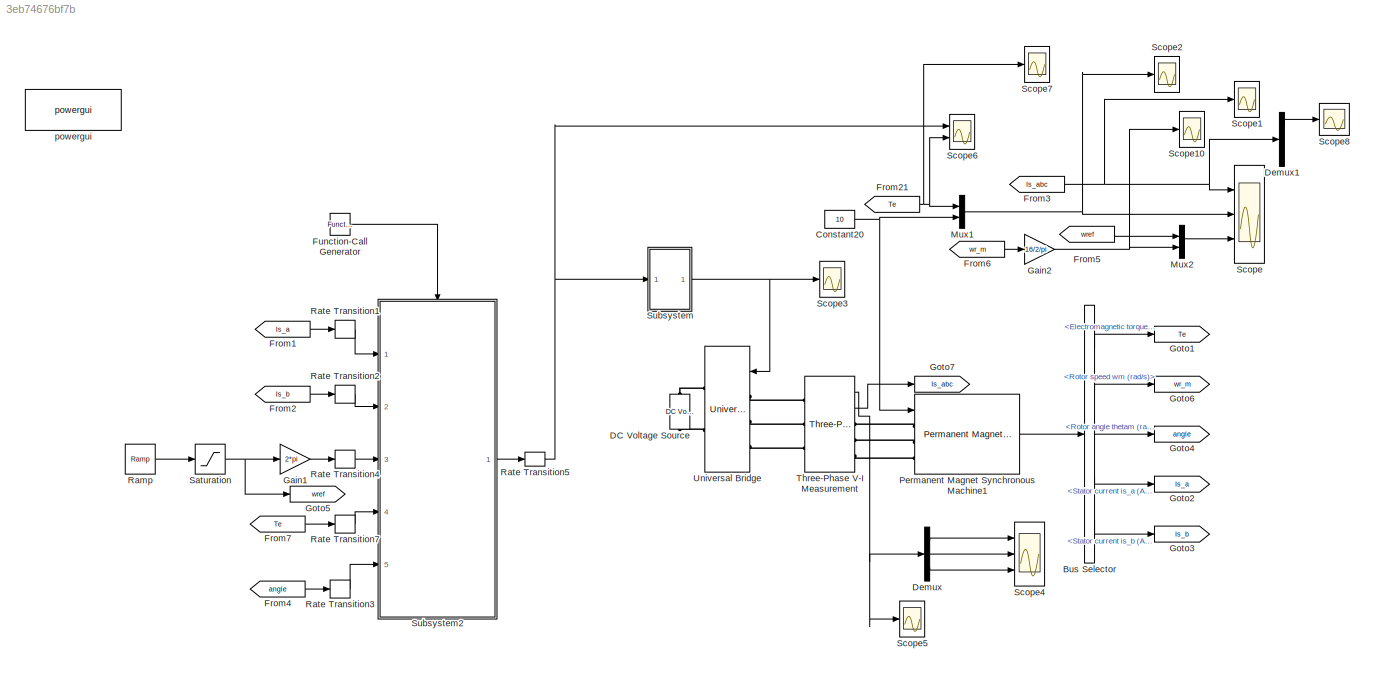
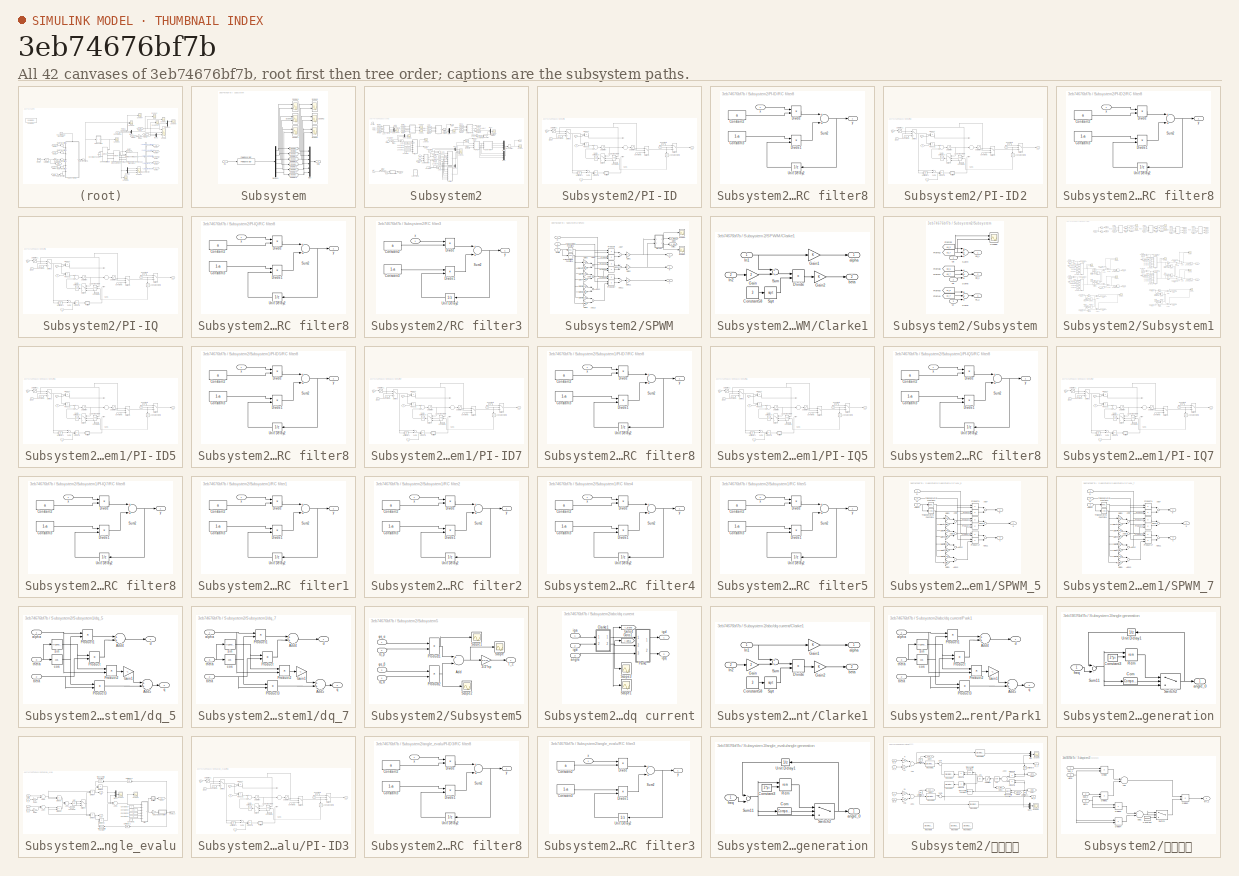
[diagram: thumbnail index - all 42 canvases of the model, root first then tree order]
MODEL slx_3eb74676bf7b
KIND model
CONFIG AbsTol = auto
CONFIG EnableMultiTasking = on
CONFIG FixedStep = 0.0002
CONFIG MaxStep = 1/5000/25
CONFIG MinStep = 1/5000/100
CONFIG RelTol = 2e-4
CONFIG SampleTimeConstraint = Unconstrained
CONFIG Solver = ode45
CONFIG SolverName = ode45
CONFIG StartTime = 0.0
CONFIG StopTime = 10
BLOCK [BusSelector] Bus Selector
  OutputAsBus = off
  OutputSignals = Electromagnetic torque Te (N*m),Rotor speed wm (rad/s),Rotor angle thetam (rad),Stator current is_a (A),Stator current is_b (A)
  Ports = [1, 5]
BLOCK [Constant] Constant20
  OutDataTypeStr = double
  Value = 10
BLOCK [Reference] DC Voltage Source  REF=powerlib/Electrical
Sources/DC Voltage Source
  Ports = [0, 0, 0, 0, 0, 1, 1]
  SourceBlock = powerlib/Electrical\nSources/DC Voltage Source
  SourceProductBaseCode = PS
  SourceProductName = Simscape Electrical
  SourceType = DC Voltage Source
BLOCK [Demux] Demux
  DisplayOption = bar
  Outputs = 3
  Ports = [1, 3]
BLOCK [Demux] Demux1
  DisplayOption = bar
  Outputs = 3
  Ports = [1, 3]
BLOCK [From] From1
  GotoTag = Is_a
  TagVisibility = global
BLOCK [From] From2
  GotoTag = Is_b
  TagVisibility = global
BLOCK [From] From21
  GotoTag = Te
  TagVisibility = global
BLOCK [From] From3
  GotoTag = Is_abc
  TagVisibility = global
BLOCK [From] From4
  GotoTag = angle
  TagVisibility = global
BLOCK [From] From5
  GotoTag = wref
  TagVisibility = global
BLOCK [From] From6
  GotoTag = wr_m
  TagVisibility = global
BLOCK [From] From7
  GotoTag = Te
  TagVisibility = global
BLOCK [Reference] Function-Call Generator  REF=simulink/Ports &
Subsystems/Function-Call
Generator
  Ports = [0, 1]
  SourceBlock = simulink/Ports &\nSubsystems/Function-Call\nGenerator
  SourceProductBaseCode = SL
  SourceProductName = Simulink
  SourceType = Function-Call Generator
BLOCK [Gain] Gain1
  Gain = 2*pi
  OutDataTypeStr = Inherit: Inherit via internal rule
  ParamDataTypeStr = Inherit: Inherit via internal rule
  SaturateOnIntegerOverflow = off
BLOCK [Gain] Gain2
  Gain = 16/2/pi
  OutDataTypeStr = Inherit: Inherit via internal rule
  ParamDataTypeStr = Inherit: Inherit via internal rule
  SaturateOnIntegerOverflow = off
BLOCK [Goto] Goto1
  GotoTag = Te
  TagVisibility = global
BLOCK [Goto] Goto2
  GotoTag = Is_a
  TagVisibility = global
BLOCK [Goto] Goto3
  GotoTag = Is_b
  TagVisibility = global
BLOCK [Goto] Goto4
  GotoTag = angle
  TagVisibility = global
BLOCK [Goto] Goto5
  GotoTag = wref
  TagVisibility = global
BLOCK [Goto] Goto6
  GotoTag = wr_m
  TagVisibility = global
BLOCK [Goto] Goto7
  GotoTag = Is_abc
  TagVisibility = global
BLOCK [Mux] Mux1
  DisplayOption = bar
  Inputs = 2
  Ports = [2, 1]
BLOCK [Mux] Mux2
  DisplayOption = bar
  Inputs = 2
  Ports = [2, 1]
BLOCK [Reference] Permanent Magnet Synchronous Machine1  REF=powerlib/Machines/Permanent Magnet
Synchronous Machine
  Ports = [1, 1, 0, 0, 0, 3]
  SourceBlock = powerlib/Machines/Permanent Magnet\nSynchronous Machine
  SourceProductBaseCode = PS
  SourceProductName = Simscape Electrical
  SourceType = Permanent Magnet Synchronous Machine
BLOCK [Reference] Ramp  REF=simulink/Sources/Ramp
  Ports = [0, 1]
  SourceBlock = simulink/Sources/Ramp
  SourceProductBaseCode = SL
  SourceProductName = Simulink
  SourceType = Ramp
BLOCK [RateTransition] Rate Transition1
  Integrity = off
BLOCK [RateTransition] Rate Transition2
  Integrity = off
BLOCK [RateTransition] Rate Transition3
  Integrity = off
BLOCK [RateTransition] Rate Transition4
  Integrity = off
BLOCK [RateTransition] Rate Transition5
  Integrity = off
BLOCK [RateTransition] Rate Transition7
  Integrity = off
BLOCK [Saturate] Saturation
  InputPortMap = u0
  LowerLimit = 0
  Ports = [1, 1]
  UpperLimit = 10
BLOCK [Scope] Scope
  Floating = off
  NumInputPorts = 3
  Ports = [3]
  ScopeSpecificationString = Simulink.scopes.TimeScopeBlockCfg('CurrentConfiguration', extmgr.ConfigurationSet(extmgr.Configuration('Core','General UI',true),extmgr.Configuration('Core','Source UI',true),extmgr.Configuration('Sources','WiredSimulink',true,'DataLoggingVariableName','ScopeData1','DataLoggingSaveFormat','StructureWithTime','DataLoggingDecimation','1','DataLoggingDecimateData',true),extmgr.Configuration('Visuals'...<+3064ch>
BLOCK [Scope] Scope1
  Floating = off
  NumInputPorts = 1
  Ports = [1]
  ScopeSpecificationString = Simulink.scopes.TimeScopeBlockCfg('CurrentConfiguration', extmgr.ConfigurationSet(extmgr.Configuration('Core','General UI',true),extmgr.Configuration('Core','Source UI',true),extmgr.Configuration('Sources','WiredSimulink',true,'DataLoggingVariableName','ScopeData2','DataLoggingSaveFormat','StructureWithTime','DataLoggingDecimation','1','DataLoggingDecimateData',true,'DataLogging',true),extmgr.Conf...<+1776ch>
BLOCK [Scope] Scope10
  Floating = off
  NumInputPorts = 1
  Ports = [1]
  ScopeSpecificationString = Simulink.scopes.TimeScopeBlockCfg('CurrentConfiguration', extmgr.ConfigurationSet(extmgr.Configuration('Core','General UI',true),extmgr.Configuration('Core','Source UI',true),extmgr.Configuration('Sources','WiredSimulink',true,'DataLoggingVariableName','ScopeData3','DataLoggingSaveFormat','StructureWithTime','DataLoggingDecimation','1','DataLoggingDecimateData',true),extmgr.Configuration('Visuals'...<+1730ch>
BLOCK [Scope] Scope2
  Floating = off
  NumInputPorts = 1
  Ports = [1]
  ScopeSpecificationString = Simulink.scopes.TimeScopeBlockCfg('CurrentConfiguration', extmgr.ConfigurationSet(extmgr.Configuration('Core','General UI',true),extmgr.Configuration('Core','Source UI',true),extmgr.Configuration('Sources','WiredSimulink',true,'DataLoggingVariableName','ScopeData4','DataLoggingSaveFormat','StructureWithTime','DataLoggingDecimation','1','DataLoggingDecimateData',true),extmgr.Configuration('Visuals'...<+1734ch>
BLOCK [Scope] Scope3
  Floating = off
  NumInputPorts = 1
  Ports = [1]
  ScopeSpecificationString = Simulink.scopes.TimeScopeBlockCfg('CurrentConfiguration', extmgr.ConfigurationSet(extmgr.Configuration('Core','General UI',true),extmgr.Configuration('Core','Source UI',true),extmgr.Configuration('Sources','WiredSimulink',true,'DataLoggingSaveFormat','StructureWithTime','DataLoggingDecimation','1','DataLoggingDecimateData',true,'DataLoggingVariableName','ScopeData5'),extmgr.Configuration('Visuals'...<+1677ch>
BLOCK [Scope] Scope4
  Floating = off
  NumInputPorts = 3
  Ports = [3]
  ScopeSpecificationString = Simulink.scopes.TimeScopeBlockCfg('CurrentConfiguration', extmgr.ConfigurationSet(extmgr.Configuration('Core','General UI',true),extmgr.Configuration('Core','Source UI',true),extmgr.Configuration('Sources','WiredSimulink',true,'DataLoggingVariableName','ScopeData6','DataLoggingSaveFormat','StructureWithTime','DataLoggingDecimation','1','DataLoggingDecimateData',true),extmgr.Configuration('Visuals'...<+3060ch>
BLOCK [Scope] Scope5
  Floating = off
  NumInputPorts = 1
  Ports = [1]
  ScopeSpecificationString = Simulink.scopes.TimeScopeBlockCfg('CurrentConfiguration', extmgr.ConfigurationSet(extmgr.Configuration('Core','General UI',true),extmgr.Configuration('Core','Source UI',true),extmgr.Configuration('Sources','WiredSimulink',true,'DataLoggingVariableName','ScopeData7','DataLoggingSaveFormat','StructureWithTime','DataLoggingDecimation','1','DataLoggingDecimateData',true),extmgr.Configuration('Visuals'...<+1600ch>
BLOCK [Scope] Scope6
  Floating = off
  NumInputPorts = 2
  Ports = [2]
  ScopeSpecificationString = Simulink.scopes.TimeScopeBlockCfg('CurrentConfiguration', extmgr.ConfigurationSet(extmgr.Configuration('Core','General UI',true),extmgr.Configuration('Core','Source UI',true),extmgr.Configuration('Sources','WiredSimulink',true,'DataLoggingSaveFormat','StructureWithTime','DataLoggingDecimation','1','DataLoggingDecimateData',true,'DataLoggingVariableName','ScopeData8'),extmgr.Configuration('Visuals'...<+2437ch>
BLOCK [Scope] Scope7
  Floating = off
  NumInputPorts = 1
  Ports = [1]
  ScopeSpecificationString = Simulink.scopes.TimeScopeBlockCfg('CurrentConfiguration', extmgr.ConfigurationSet(extmgr.Configuration('Core','General UI',true),extmgr.Configuration('Core','Source UI',true),extmgr.Configuration('Sources','WiredSimulink',true,'DataLoggingVariableName','TE','DataLoggingSaveFormat','StructureWithTime','DataLoggingDecimation','1','DataLoggingDecimateData',true,'DataLogging',true),extmgr.Configuratio...<+1759ch>
BLOCK [Scope] Scope8
  Floating = off
  NumInputPorts = 1
  Ports = [1]
  ScopeSpecificationString = Simulink.scopes.TimeScopeBlockCfg('CurrentConfiguration', extmgr.ConfigurationSet(extmgr.Configuration('Core','General UI',true),extmgr.Configuration('Core','Source UI',true),extmgr.Configuration('Sources','WiredSimulink',true,'DataLoggingVariableName','ScopeData18'),extmgr.Configuration('Visuals','Time Domain',true,'SerializedDisplays',{struct('MinYLimReal','-13.74472','MaxYLimReal','14.04811','Y...<+1476ch>
BLOCK [SubSystem] Subsystem
  Ports = [1, 1]
  RequestExecContextInheritance = off
BLOCK [Demux] Subsystem/Demux1
  DisplayOption = bar
  Outputs = 6
  Ports = [1, 6]
BLOCK [Inport] Subsystem/In1
  IconDisplay = Port number
BLOCK [Mux] Subsystem/Mux
  DisplayOption = bar
  Inputs = 6
  Ports = [6, 1]
BLOCK [Reference] Subsystem/On Delay  REF=powerlib_meascontrol/Logic/On Delay
  Ports = [1, 1]
  SourceBlock = powerlib_meascontrol/Logic/On Delay
  SourceProductBaseCode = PS
  SourceProductName = Simscape Power Systems
  SourceType = On/Off Delay
BLOCK [Reference] Subsystem/On Delay1  REF=powerlib_meascontrol/Logic/On Delay
  Ports = [1, 1]
  SourceBlock = powerlib_meascontrol/Logic/On Delay
  SourceProductBaseCode = PS
  SourceProductName = Simscape Power Systems
  SourceType = On/Off Delay
BLOCK [Reference] Subsystem/On Delay2  REF=powerlib_meascontrol/Logic/On Delay
  Ports = [1, 1]
  SourceBlock = powerlib_meascontrol/Logic/On Delay
  SourceProductBaseCode = PS
  SourceProductName = Simscape Power Systems
  SourceType = On/Off Delay
BLOCK [Reference] Subsystem/On Delay3  REF=powerlib_meascontrol/Logic/On Delay
  Ports = [1, 1]
  SourceBlock = powerlib_meascontrol/Logic/On Delay
  SourceProductBaseCode = PS
  SourceProductName = Simscape Power Systems
  SourceType = On/Off Delay
BLOCK [Reference] Subsystem/On Delay4  REF=powerlib_meascontrol/Logic/On Delay
  Ports = [1, 1]
  SourceBlock = powerlib_meascontrol/Logic/On Delay
  SourceProductBaseCode = PS
  SourceProductName = Simscape Power Systems
  SourceType = On/Off Delay
BLOCK [Reference] Subsystem/On Delay5  REF=powerlib_meascontrol/Logic/On Delay
  Ports = [1, 1]
  SourceBlock = powerlib_meascontrol/Logic/On Delay
  SourceProductBaseCode = PS
  SourceProductName = Simscape Power Systems
  SourceType = On/Off Delay
BLOCK [Outport] Subsystem/Out1
  IconDisplay = Port number
BLOCK [Reference] Subsystem/PWM Generator  REF=powerlib_extras/Control 
Blocks/PWM Generator
  Ports = [1, 1]
  SourceBlock = powerlib_extras/Control \nBlocks/PWM Generator
  SourceType = PWM Generator
BLOCK [Scope] Subsystem/Scope1
  Floating = off
  NumInputPorts = 2
  Ports = [2]
  ScopeSpecificationString = Simulink.scopes.TimeScopeBlockCfg('CurrentConfiguration', extmgr.ConfigurationSet(extmgr.Configuration('Core','General UI',true),extmgr.Configuration('Core','Source UI',true),extmgr.Configuration('Sources','WiredSimulink',true,'DataLoggingVariableName','Te4','DataLoggingSaveFormat','StructureWithTime','DataLoggingDecimation','1','DataLoggingDecimateData',true,'DataLogging',true),extmgr.Configurati...<+1744ch>
BLOCK [Scope] Subsystem/Scope2
  Floating = off
  NumInputPorts = 2
  Ports = [2]
  ScopeSpecificationString = Simulink.scopes.TimeScopeBlockCfg('CurrentConfiguration', extmgr.ConfigurationSet(extmgr.Configuration('Core','General UI',true),extmgr.Configuration('Core','Source UI',true),extmgr.Configuration('Sources','WiredSimulink',true,'DataLoggingVariableName','Te5','DataLoggingSaveFormat','StructureWithTime','DataLoggingDecimation','1','DataLoggingDecimateData',true,'DataLogging',true),extmgr.Configurati...<+1744ch>
BLOCK [Scope] Subsystem/Scope3
  Floating = off
  NumInputPorts = 2
  Ports = [2]
  ScopeSpecificationString = Simulink.scopes.TimeScopeBlockCfg('CurrentConfiguration', extmgr.ConfigurationSet(extmgr.Configuration('Core','General UI',true),extmgr.Configuration('Core','Source UI',true),extmgr.Configuration('Sources','WiredSimulink',true,'DataLoggingVariableName','Te6','DataLoggingSaveFormat','StructureWithTime','DataLoggingDecimation','1','DataLoggingDecimateData',true,'DataLogging',true),extmgr.Configurati...<+2366ch>
BLOCK [Scope] Subsystem/Scope7
  Floating = off
  NumInputPorts = 2
  Ports = [2]
  ScopeSpecificationString = Simulink.scopes.TimeScopeBlockCfg('CurrentConfiguration', extmgr.ConfigurationSet(extmgr.Configuration('Core','General UI',true),extmgr.Configuration('Core','Source UI',true),extmgr.Configuration('Sources','WiredSimulink',true,'DataLoggingVariableName','Te1','DataLoggingSaveFormat','StructureWithTime','DataLoggingDecimation','1','DataLoggingDecimateData',true,'DataLogging',true),extmgr.Configurati...<+1744ch>
BLOCK [Scope] Subsystem/Scope8
  Floating = off
  NumInputPorts = 2
  Ports = [2]
  ScopeSpecificationString = Simulink.scopes.TimeScopeBlockCfg('CurrentConfiguration', extmgr.ConfigurationSet(extmgr.Configuration('Core','General UI',true),extmgr.Configuration('Core','Source UI',true),extmgr.Configuration('Sources','WiredSimulink',true,'DataLoggingVariableName','Te2','DataLoggingSaveFormat','StructureWithTime','DataLoggingDecimation','1','DataLoggingDecimateData',true,'DataLogging',true),extmgr.Configurati...<+1744ch>
BLOCK [Scope] Subsystem/Scope9
  Floating = off
  NumInputPorts = 2
  Ports = [2]
  ScopeSpecificationString = Simulink.scopes.TimeScopeBlockCfg('CurrentConfiguration', extmgr.ConfigurationSet(extmgr.Configuration('Core','General UI',true),extmgr.Configuration('Core','Source UI',true),extmgr.Configuration('Sources','WiredSimulink',true,'DataLoggingVariableName','Te3','DataLoggingSaveFormat','StructureWithTime','DataLoggingDecimation','1','DataLoggingDecimateData',true,'DataLogging',true),extmgr.Configurati...<+2365ch>
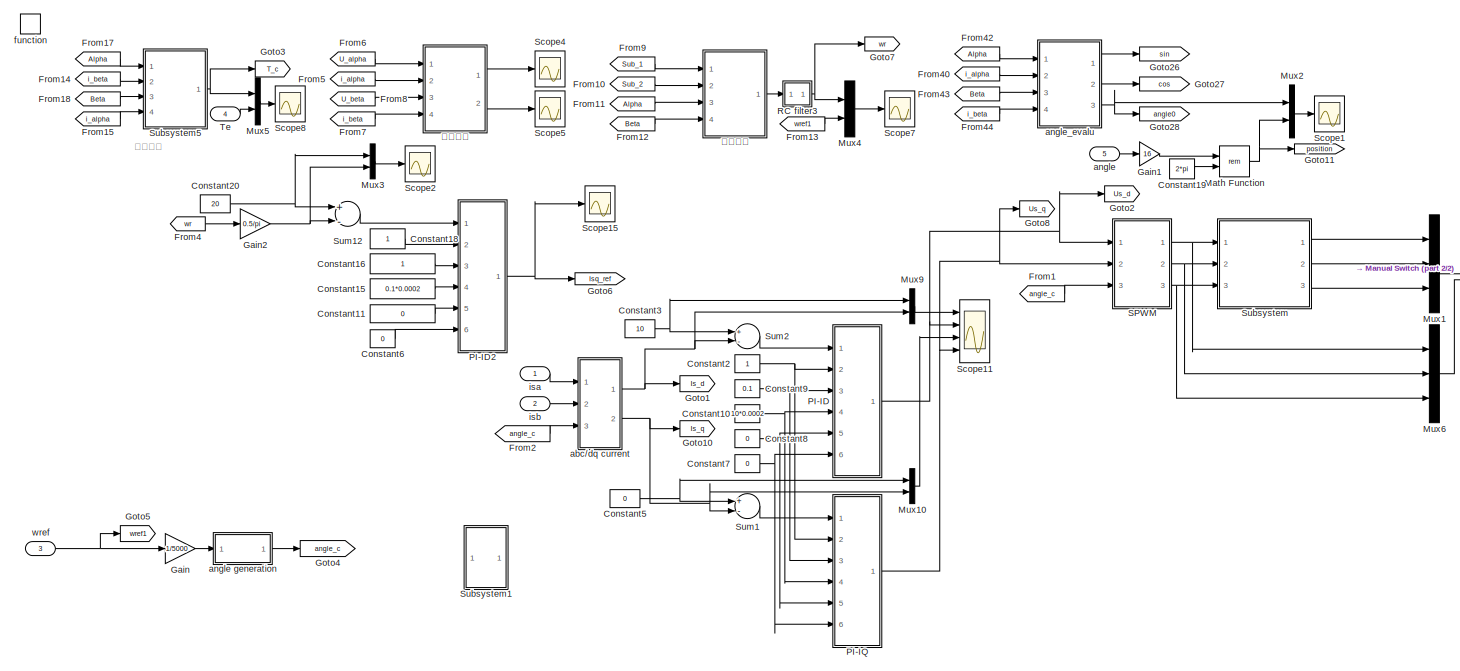
[diagram: Subsystem2 - part 1/2, most of the canvas]
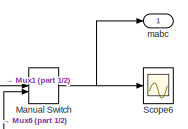
[diagram: Subsystem2 - part 2/2, middle right region]
BLOCK [SubSystem] Subsystem2
  Ports = [5, 1, 0, 1]
  RequestExecContextInheritance = off
BLOCK [Constant] Subsystem2/Constant10
  OutDataTypeStr = double
  Value = 10*0.0002
BLOCK [Constant] Subsystem2/Constant11
  OutDataTypeStr = double
  Value = 0
BLOCK [Constant] Subsystem2/Constant15
  OutDataTypeStr = double
  Value = 0.1*0.0002
BLOCK [Constant] Subsystem2/Constant16
  OutDataTypeStr = double
BLOCK [Constant] Subsystem2/Constant18
  OutDataTypeStr = double
BLOCK [Constant] Subsystem2/Constant19
  OutDataTypeStr = double
  Value = 2*pi
BLOCK [Constant] Subsystem2/Constant2
  OutDataTypeStr = double
BLOCK [Constant] Subsystem2/Constant20
  OutDataTypeStr = double
  Value = 20
BLOCK [Constant] Subsystem2/Constant3
  OutDataTypeStr = double
  Value = 10
BLOCK [Constant] Subsystem2/Constant5
  OutDataTypeStr = double
  Value = 0
BLOCK [Constant] Subsystem2/Constant6
  OutDataTypeStr = double
  Value = 0
BLOCK [Constant] Subsystem2/Constant7
  OutDataTypeStr = double
  Value = 0
BLOCK [Constant] Subsystem2/Constant8
  OutDataTypeStr = double
  Value = 0
BLOCK [Constant] Subsystem2/Constant9
  OutDataTypeStr = double
  Value = 0.1
BLOCK [From] Subsystem2/From1
  GotoTag = angle_c
  TagVisibility = global
BLOCK [From] Subsystem2/From10
  GotoTag = Sub_2
  TagVisibility = global
BLOCK [From] Subsystem2/From11
  GotoTag = Alpha
  TagVisibility = global
BLOCK [From] Subsystem2/From12
  GotoTag = Beta
  TagVisibility = global
BLOCK [From] Subsystem2/From13
  GotoTag = wref1
  TagVisibility = global
BLOCK [From] Subsystem2/From14
  GotoTag = i_beta
  TagVisibility = global
BLOCK [From] Subsystem2/From15
  GotoTag = i_alpha
  TagVisibility = global
BLOCK [From] Subsystem2/From17
  GotoTag = Alpha
  TagVisibility = global
BLOCK [From] Subsystem2/From18
  GotoTag = Beta
  TagVisibility = global
BLOCK [From] Subsystem2/From2
  GotoTag = angle_c
  TagVisibility = global
BLOCK [From] Subsystem2/From4
  GotoTag = wr
  TagVisibility = global
BLOCK [From] Subsystem2/From40
  GotoTag = i_alpha
  TagVisibility = global
BLOCK [From] Subsystem2/From42
  GotoTag = Alpha
  TagVisibility = global
BLOCK [From] Subsystem2/From43
  GotoTag = Beta
  TagVisibility = global
BLOCK [From] Subsystem2/From44
  GotoTag = i_beta
  TagVisibility = global
BLOCK [From] Subsystem2/From5
  GotoTag = i_alpha
  TagVisibility = global
BLOCK [From] Subsystem2/From6
  GotoTag = U_alpha
  TagVisibility = global
BLOCK [From] Subsystem2/From7
  GotoTag = i_beta
  TagVisibility = global
BLOCK [From] Subsystem2/From8
  GotoTag = U_beta
  TagVisibility = global
BLOCK [From] Subsystem2/From9
  GotoTag = Sub_1
  TagVisibility = global
BLOCK [Gain] Subsystem2/Gain
  Gain = 1/5000
  OutDataTypeStr = Inherit: Inherit via internal rule
  ParamDataTypeStr = Inherit: Inherit via internal rule
  SaturateOnIntegerOverflow = off
BLOCK [Gain] Subsystem2/Gain1
  Gain = 16
  OutDataTypeStr = Inherit: Inherit via internal rule
  ParamDataTypeStr = Inherit: Inherit via internal rule
  SaturateOnIntegerOverflow = off
BLOCK [Gain] Subsystem2/Gain2
  Gain = 0.5/pi
  OutDataTypeStr = Inherit: Inherit via internal rule
  ParamDataTypeStr = Inherit: Inherit via internal rule
  SaturateOnIntegerOverflow = off
BLOCK [Goto] Subsystem2/Goto1
  GotoTag = Is_d
  TagVisibility = global
BLOCK [Goto] Subsystem2/Goto10
  GotoTag = Is_q
  TagVisibility = global
BLOCK [Goto] Subsystem2/Goto11
  GotoTag = position
  TagVisibility = global
BLOCK [Goto] Subsystem2/Goto2
  GotoTag = Us_d
  TagVisibility = global
BLOCK [Goto] Subsystem2/Goto26
  GotoTag = sin
  TagVisibility = global
BLOCK [Goto] Subsystem2/Goto27
  GotoTag = cos
  TagVisibility = global
BLOCK [Goto] Subsystem2/Goto28
  GotoTag = angle0
  TagVisibility = global
BLOCK [Goto] Subsystem2/Goto3
  GotoTag = T_c
  TagVisibility = global
BLOCK [Goto] Subsystem2/Goto4
  GotoTag = angle_c
  TagVisibility = global
BLOCK [Goto] Subsystem2/Goto5
  GotoTag = wref1
  TagVisibility = global
BLOCK [Goto] Subsystem2/Goto6
  GotoTag = Isq_ref
  TagVisibility = global
BLOCK [Goto] Subsystem2/Goto7
  GotoTag = wr
  TagVisibility = global
BLOCK [Goto] Subsystem2/Goto8
  GotoTag = Us_q
  TagVisibility = global
BLOCK [ManualSwitch] Subsystem2/Manual Switch
BLOCK [Math] Subsystem2/Math Function
  Operator = rem
  Ports = [2, 1]
BLOCK [Mux] Subsystem2/Mux1
  DisplayOption = bar
  Inputs = 3
  Ports = [3, 1]
BLOCK [Mux] Subsystem2/Mux10
  DisplayOption = bar
  Inputs = 2
  Ports = [2, 1]
BLOCK [Mux] Subsystem2/Mux2
  DisplayOption = bar
  Inputs = 2
  Ports = [2, 1]
BLOCK [Mux] Subsystem2/Mux3
  DisplayOption = bar
  Inputs = 2
  Ports = [2, 1]
BLOCK [Mux] Subsystem2/Mux4
  DisplayOption = bar
  Inputs = 2
  Ports = [2, 1]
BLOCK [Mux] Subsystem2/Mux5
  DisplayOption = bar
  Inputs = 2
  Ports = [2, 1]
BLOCK [Mux] Subsystem2/Mux6
  DisplayOption = bar
  Inputs = 3
  Ports = [3, 1]
BLOCK [Mux] Subsystem2/Mux9
  DisplayOption = bar
  Inputs = 2
  Ports = [2, 1]
BLOCK [SubSystem] Subsystem2/PI-ID
  Ports = [6, 1]
  RequestExecContextInheritance = off
BLOCK [Constant] Subsystem2/PI-ID/Constant1
  OutDataTypeStr = Inherit: Inherit via back propagation
  Value = 0
BLOCK [Constant] Subsystem2/PI-ID/Constant2
  OutDataTypeStr = Inherit: Inherit via back propagation
  Value = 25
BLOCK [Constant] Subsystem2/PI-ID/Constant3
  OutDataTypeStr = Inherit: Inherit via back propagation
  Value = 0
BLOCK [Constant] Subsystem2/PI-ID/Constant5
  OutDataTypeStr = Inherit: Inherit via back propagation
  Value = 0
BLOCK [Inport] Subsystem2/PI-ID/D
  IconDisplay = Port number
  Port = 5
BLOCK [Inport] Subsystem2/PI-ID/I
  IconDisplay = Port number
  Port = 4
BLOCK [Logic] Subsystem2/PI-ID/Logical Operator5
  AllPortsSameDT = off
  OutDataTypeStr = boolean
  Ports = [2, 1]
BLOCK [Logic] Subsystem2/PI-ID/Logical Operator6
  AllPortsSameDT = off
  Operator = NOT
  OutDataTypeStr = boolean
  Ports = [1, 1]
BLOCK [Inport] Subsystem2/PI-ID/OV
  IconDisplay = Port number
  Port = 6
BLOCK [Inport] Subsystem2/PI-ID/P
  IconDisplay = Port number
  Port = 3
BLOCK [Product] Subsystem2/PI-ID/Product
  InputSameDT = off
  OutDataTypeStr = Inherit: Inherit via internal rule
  Ports = [2, 1]
  SaturateOnIntegerOverflow = off
BLOCK [Product] Subsystem2/PI-ID/Product1
  InputSameDT = off
  OutDataTypeStr = Inherit: Inherit via internal rule
  Ports = [2, 1]
  SaturateOnIntegerOverflow = off
BLOCK [Product] Subsystem2/PI-ID/Product2
  InputSameDT = off
  OutDataTypeStr = Inherit: Inherit via internal rule
  Ports = [2, 1]
  SaturateOnIntegerOverflow = off
BLOCK [SubSystem] Subsystem2/PI-ID/RC filter8
  Ports = [1, 1]
  RequestExecContextInheritance = off
BLOCK [Constant] Subsystem2/PI-ID/RC filter8/Constant2
  OutDataTypeStr = double
  Value = a
BLOCK [Constant] Subsystem2/PI-ID/RC filter8/Constant3
  OutDataTypeStr = double
  Value = 1-a
BLOCK [Product] Subsystem2/PI-ID/RC filter8/Divide
  InputSameDT = off
  OutDataTypeStr = Inherit: Inherit via internal rule
  Ports = [2, 1]
  RndMeth = Floor
  SaturateOnIntegerOverflow = off
BLOCK [Product] Subsystem2/PI-ID/RC filter8/Divide1
  InputSameDT = off
  OutDataTypeStr = Inherit: Inherit via internal rule
  Ports = [2, 1]
  RndMeth = Floor
  SaturateOnIntegerOverflow = off
BLOCK [Sum] Subsystem2/PI-ID/RC filter8/Sum2
  InputSameDT = off
  OutDataTypeStr = Inherit: Inherit via internal rule
  Ports = [2, 1]
  SaturateOnIntegerOverflow = off
BLOCK [UnitDelay] Subsystem2/PI-ID/RC filter8/Unit Delay2
  InputProcessing = Elements as channels (sample based)
  SampleTime = -1
BLOCK [Inport] Subsystem2/PI-ID/RC filter8/x
  IconDisplay = Port number
BLOCK [Outport] Subsystem2/PI-ID/RC filter8/y
  IconDisplay = Port number
BLOCK [Saturate] Subsystem2/PI-ID/Saturation
  InputPortMap = u0
  LinearizeAsGain = off
  LowerLimit = min
  OutDataTypeStr = double
  Ports = [1, 1]
  UpperLimit = max
  ZeroCross = off
BLOCK [Saturate] Subsystem2/PI-ID/Saturation1
  InputPortMap = u0
  LinearizeAsGain = off
  LowerLimit = ermin
  OutDataTypeStr = double
  Ports = [1, 1]
  UpperLimit = ermax
  ZeroCross = off
BLOCK [Saturate] Subsystem2/PI-ID/Saturation2
  InputPortMap = u0
  LinearizeAsGain = off
  LowerLimit = min
  OutDataTypeStr = double
  Ports = [1, 1]
  UpperLimit = max
  ZeroCross = off
BLOCK [Sum] Subsystem2/PI-ID/Sum1
  InputSameDT = off
  Inputs = +++
  OutDataTypeStr = Inherit: Inherit via internal rule
  Ports = [3, 1]
  SaturateOnIntegerOverflow = off
BLOCK [Sum] Subsystem2/PI-ID/Sum2
  InputSameDT = off
  Inputs = +-
  OutDataTypeStr = Inherit: Inherit via internal rule
  Ports = [2, 1]
  SaturateOnIntegerOverflow = off
BLOCK [Sum] Subsystem2/PI-ID/Sum4
  InputSameDT = off
  OutDataTypeStr = Inherit: Inherit via internal rule
  Ports = [2, 1]
  SaturateOnIntegerOverflow = off
BLOCK [Switch] Subsystem2/PI-ID/Switch1
  Criteria = u2 > Threshold
BLOCK [Switch] Subsystem2/PI-ID/Switch2
  Criteria = u2 > Threshold
BLOCK [Switch] Subsystem2/PI-ID/Switch3
  Criteria = u2 > Threshold
BLOCK [Switch] Subsystem2/PI-ID/Switch4
  Criteria = u2 > Threshold
BLOCK [UnitDelay] Subsystem2/PI-ID/Unit Delay1
  SampleTime = -1
BLOCK [UnitDelay] Subsystem2/PI-ID/Unit Delay3
  SampleTime = -1
BLOCK [Inport] Subsystem2/PI-ID/err
  IconDisplay = Port number
BLOCK [Outport] Subsystem2/PI-ID/out
  IconDisplay = Port number
BLOCK [Inport] Subsystem2/PI-ID/reset
  IconDisplay = Port number
  Port = 2
BLOCK [SubSystem] Subsystem2/PI-ID2
  Ports = [6, 1]
  RequestExecContextInheritance = off
BLOCK [Constant] Subsystem2/PI-ID2/Constant1
  OutDataTypeStr = Inherit: Inherit via back propagation
  Value = 0
BLOCK [Constant] Subsystem2/PI-ID2/Constant2
  OutDataTypeStr = Inherit: Inherit via back propagation
  Value = 25
BLOCK [Constant] Subsystem2/PI-ID2/Constant3
  OutDataTypeStr = Inherit: Inherit via back propagation
  Value = 0
BLOCK [Constant] Subsystem2/PI-ID2/Constant5
  OutDataTypeStr = Inherit: Inherit via back propagation
  Value = 0
BLOCK [Inport] Subsystem2/PI-ID2/D
  IconDisplay = Port number
  Port = 5
BLOCK [Inport] Subsystem2/PI-ID2/I
  IconDisplay = Port number
  Port = 4
BLOCK [Logic] Subsystem2/PI-ID2/Logical Operator5
  AllPortsSameDT = off
  OutDataTypeStr = boolean
  Ports = [2, 1]
BLOCK [Logic] Subsystem2/PI-ID2/Logical Operator6
  AllPortsSameDT = off
  Operator = NOT
  OutDataTypeStr = boolean
  Ports = [1, 1]
BLOCK [Inport] Subsystem2/PI-ID2/OV
  IconDisplay = Port number
  Port = 6
BLOCK [Inport] Subsystem2/PI-ID2/P
  IconDisplay = Port number
  Port = 3
BLOCK [Product] Subsystem2/PI-ID2/Product
  InputSameDT = off
  OutDataTypeStr = Inherit: Inherit via internal rule
  Ports = [2, 1]
  SaturateOnIntegerOverflow = off
BLOCK [Product] Subsystem2/PI-ID2/Product1
  InputSameDT = off
  OutDataTypeStr = Inherit: Inherit via internal rule
  Ports = [2, 1]
  SaturateOnIntegerOverflow = off
BLOCK [Product] Subsystem2/PI-ID2/Product2
  InputSameDT = off
  OutDataTypeStr = Inherit: Inherit via internal rule
  Ports = [2, 1]
  SaturateOnIntegerOverflow = off
BLOCK [SubSystem] Subsystem2/PI-ID2/RC filter8
  Ports = [1, 1]
  RequestExecContextInheritance = off
BLOCK [Constant] Subsystem2/PI-ID2/RC filter8/Constant2
  OutDataTypeStr = double
  Value = a
BLOCK [Constant] Subsystem2/PI-ID2/RC filter8/Constant3
  OutDataTypeStr = double
  Value = 1-a
BLOCK [Product] Subsystem2/PI-ID2/RC filter8/Divide
  InputSameDT = off
  OutDataTypeStr = Inherit: Inherit via internal rule
  Ports = [2, 1]
  RndMeth = Floor
  SaturateOnIntegerOverflow = off
BLOCK [Product] Subsystem2/PI-ID2/RC filter8/Divide1
  InputSameDT = off
  OutDataTypeStr = Inherit: Inherit via internal rule
  Ports = [2, 1]
  RndMeth = Floor
  SaturateOnIntegerOverflow = off
BLOCK [Sum] Subsystem2/PI-ID2/RC filter8/Sum2
  InputSameDT = off
  OutDataTypeStr = Inherit: Inherit via internal rule
  Ports = [2, 1]
  SaturateOnIntegerOverflow = off
BLOCK [UnitDelay] Subsystem2/PI-ID2/RC filter8/Unit Delay2
  InputProcessing = Elements as channels (sample based)
  SampleTime = -1
BLOCK [Inport] Subsystem2/PI-ID2/RC filter8/x
  IconDisplay = Port number
BLOCK [Outport] Subsystem2/PI-ID2/RC filter8/y
  IconDisplay = Port number
BLOCK [Saturate] Subsystem2/PI-ID2/Saturation
  InputPortMap = u0
  LinearizeAsGain = off
  LowerLimit = min
  OutDataTypeStr = double
  Ports = [1, 1]
  UpperLimit = max
  ZeroCross = off
BLOCK [Saturate] Subsystem2/PI-ID2/Saturation1
  InputPortMap = u0
  LinearizeAsGain = off
  LowerLimit = ermin
  OutDataTypeStr = double
  Ports = [1, 1]
  UpperLimit = ermax
  ZeroCross = off
BLOCK [Saturate] Subsystem2/PI-ID2/Saturation2
  InputPortMap = u0
  LinearizeAsGain = off
  LowerLimit = min
  OutDataTypeStr = double
  Ports = [1, 1]
  UpperLimit = max
  ZeroCross = off
BLOCK [Sum] Subsystem2/PI-ID2/Sum1
  InputSameDT = off
  Inputs = +++
  OutDataTypeStr = Inherit: Inherit via internal rule
  Ports = [3, 1]
  SaturateOnIntegerOverflow = off
BLOCK [Sum] Subsystem2/PI-ID2/Sum2
  InputSameDT = off
  Inputs = +-
  OutDataTypeStr = Inherit: Inherit via internal rule
  Ports = [2, 1]
  SaturateOnIntegerOverflow = off
BLOCK [Sum] Subsystem2/PI-ID2/Sum4
  InputSameDT = off
  OutDataTypeStr = Inherit: Inherit via internal rule
  Ports = [2, 1]
  SaturateOnIntegerOverflow = off
BLOCK [Switch] Subsystem2/PI-ID2/Switch1
  Criteria = u2 > Threshold
BLOCK [Switch] Subsystem2/PI-ID2/Switch2
  Criteria = u2 > Threshold
BLOCK [Switch] Subsystem2/PI-ID2/Switch3
  Criteria = u2 > Threshold
BLOCK [Switch] Subsystem2/PI-ID2/Switch4
  Criteria = u2 > Threshold
BLOCK [UnitDelay] Subsystem2/PI-ID2/Unit Delay1
  SampleTime = -1
BLOCK [UnitDelay] Subsystem2/PI-ID2/Unit Delay3
  SampleTime = -1
BLOCK [Inport] Subsystem2/PI-ID2/err
  IconDisplay = Port number
BLOCK [Outport] Subsystem2/PI-ID2/out
  IconDisplay = Port number
BLOCK [Inport] Subsystem2/PI-ID2/reset
  IconDisplay = Port number
  Port = 2
BLOCK [SubSystem] Subsystem2/PI-IQ
  Ports = [6, 1]
  RequestExecContextInheritance = off
BLOCK [Constant] Subsystem2/PI-IQ/Constant1
  OutDataTypeStr = Inherit: Inherit via back propagation
  Value = 0
BLOCK [Constant] Subsystem2/PI-IQ/Constant2
  OutDataTypeStr = Inherit: Inherit via back propagation
  Value = 25
BLOCK [Constant] Subsystem2/PI-IQ/Constant3
  OutDataTypeStr = Inherit: Inherit via back propagation
  Value = 0
BLOCK [Constant] Subsystem2/PI-IQ/Constant5
  OutDataTypeStr = Inherit: Inherit via back propagation
  Value = 0
BLOCK [Inport] Subsystem2/PI-IQ/D
  IconDisplay = Port number
  Port = 5
BLOCK [Inport] Subsystem2/PI-IQ/I
  IconDisplay = Port number
  Port = 4
BLOCK [Logic] Subsystem2/PI-IQ/Logical Operator5
  AllPortsSameDT = off
  OutDataTypeStr = boolean
  Ports = [2, 1]
BLOCK [Logic] Subsystem2/PI-IQ/Logical Operator6
  AllPortsSameDT = off
  Operator = NOT
  OutDataTypeStr = boolean
  Ports = [1, 1]
BLOCK [Inport] Subsystem2/PI-IQ/OV
  IconDisplay = Port number
  Port = 6
BLOCK [Inport] Subsystem2/PI-IQ/P
  IconDisplay = Port number
  Port = 3
BLOCK [Product] Subsystem2/PI-IQ/Product
  InputSameDT = off
  OutDataTypeStr = Inherit: Inherit via internal rule
  Ports = [2, 1]
  SaturateOnIntegerOverflow = off
BLOCK [Product] Subsystem2/PI-IQ/Product1
  InputSameDT = off
  OutDataTypeStr = Inherit: Inherit via internal rule
  Ports = [2, 1]
  SaturateOnIntegerOverflow = off
BLOCK [Product] Subsystem2/PI-IQ/Product2
  InputSameDT = off
  OutDataTypeStr = Inherit: Inherit via internal rule
  Ports = [2, 1]
  SaturateOnIntegerOverflow = off
BLOCK [SubSystem] Subsystem2/PI-IQ/RC filter8
  Ports = [1, 1]
  RequestExecContextInheritance = off
BLOCK [Constant] Subsystem2/PI-IQ/RC filter8/Constant2
  OutDataTypeStr = double
  Value = a
BLOCK [Constant] Subsystem2/PI-IQ/RC filter8/Constant3
  OutDataTypeStr = double
  Value = 1-a
BLOCK [Product] Subsystem2/PI-IQ/RC filter8/Divide
  InputSameDT = off
  OutDataTypeStr = Inherit: Inherit via internal rule
  Ports = [2, 1]
  RndMeth = Floor
  SaturateOnIntegerOverflow = off
BLOCK [Product] Subsystem2/PI-IQ/RC filter8/Divide1
  InputSameDT = off
  OutDataTypeStr = Inherit: Inherit via internal rule
  Ports = [2, 1]
  RndMeth = Floor
  SaturateOnIntegerOverflow = off
BLOCK [Sum] Subsystem2/PI-IQ/RC filter8/Sum2
  InputSameDT = off
  OutDataTypeStr = Inherit: Inherit via internal rule
  Ports = [2, 1]
  SaturateOnIntegerOverflow = off
BLOCK [UnitDelay] Subsystem2/PI-IQ/RC filter8/Unit Delay2
  InputProcessing = Elements as channels (sample based)
  SampleTime = -1
BLOCK [Inport] Subsystem2/PI-IQ/RC filter8/x
  IconDisplay = Port number
BLOCK [Outport] Subsystem2/PI-IQ/RC filter8/y
  IconDisplay = Port number
BLOCK [Saturate] Subsystem2/PI-IQ/Saturation
  InputPortMap = u0
  LinearizeAsGain = off
  LowerLimit = min
  OutDataTypeStr = double
  Ports = [1, 1]
  UpperLimit = max
  ZeroCross = off
BLOCK [Saturate] Subsystem2/PI-IQ/Saturation1
  InputPortMap = u0
  LinearizeAsGain = off
  LowerLimit = ermin
  OutDataTypeStr = double
  Ports = [1, 1]
  UpperLimit = ermax
  ZeroCross = off
BLOCK [Saturate] Subsystem2/PI-IQ/Saturation2
  InputPortMap = u0
  LinearizeAsGain = off
  LowerLimit = min
  OutDataTypeStr = double
  Ports = [1, 1]
  UpperLimit = max
  ZeroCross = off
BLOCK [Sum] Subsystem2/PI-IQ/Sum1
  InputSameDT = off
  Inputs = +++
  OutDataTypeStr = Inherit: Inherit via internal rule
  Ports = [3, 1]
  SaturateOnIntegerOverflow = off
BLOCK [Sum] Subsystem2/PI-IQ/Sum2
  InputSameDT = off
  Inputs = +-
  OutDataTypeStr = Inherit: Inherit via internal rule
  Ports = [2, 1]
  SaturateOnIntegerOverflow = off
BLOCK [Sum] Subsystem2/PI-IQ/Sum4
  InputSameDT = off
  OutDataTypeStr = Inherit: Inherit via internal rule
  Ports = [2, 1]
  SaturateOnIntegerOverflow = off
BLOCK [Switch] Subsystem2/PI-IQ/Switch1
  Criteria = u2 > Threshold
BLOCK [Switch] Subsystem2/PI-IQ/Switch2
  Criteria = u2 > Threshold
BLOCK [Switch] Subsystem2/PI-IQ/Switch3
  Criteria = u2 > Threshold
BLOCK [Switch] Subsystem2/PI-IQ/Switch4
  Criteria = u2 > Threshold
BLOCK [UnitDelay] Subsystem2/PI-IQ/Unit Delay1
  SampleTime = -1
BLOCK [UnitDelay] Subsystem2/PI-IQ/Unit Delay3
  SampleTime = -1
BLOCK [Inport] Subsystem2/PI-IQ/err
  IconDisplay = Port number
BLOCK [Outport] Subsystem2/PI-IQ/out
  IconDisplay = Port number
BLOCK [Inport] Subsystem2/PI-IQ/reset
  IconDisplay = Port number
  Port = 2
BLOCK [SubSystem] Subsystem2/RC filter3
  Ports = [1, 1]
  RequestExecContextInheritance = off
BLOCK [Constant] Subsystem2/RC filter3/Constant2
  OutDataTypeStr = double
  Value = a
BLOCK [Constant] Subsystem2/RC filter3/Constant3
  OutDataTypeStr = double
  Value = 1-a
BLOCK [Product] Subsystem2/RC filter3/Divide
  InputSameDT = off
  OutDataTypeStr = Inherit: Inherit via internal rule
  Ports = [2, 1]
  RndMeth = Floor
  SaturateOnIntegerOverflow = off
BLOCK [Product] Subsystem2/RC filter3/Divide1
  InputSameDT = off
  OutDataTypeStr = Inherit: Inherit via internal rule
  Ports = [2, 1]
  RndMeth = Floor
  SaturateOnIntegerOverflow = off
BLOCK [Sum] Subsystem2/RC filter3/Sum2
  InputSameDT = off
  OutDataTypeStr = Inherit: Inherit via internal rule
  Ports = [2, 1]
  SaturateOnIntegerOverflow = off
BLOCK [UnitDelay] Subsystem2/RC filter3/Unit Delay2
  InputProcessing = Elements as channels (sample based)
  SampleTime = -1
BLOCK [Inport] Subsystem2/RC filter3/x
  IconDisplay = Port number
BLOCK [Outport] Subsystem2/RC filter3/y
  IconDisplay = Port number
BLOCK [SubSystem] Subsystem2/SPWM
  Ports = [3, 3]
  RequestExecContextInheritance = off
BLOCK [Sum] Subsystem2/SPWM/Add10
  InputSameDT = off
  Inputs = +-
  OutDataTypeStr = Inherit: Inherit via internal rule
  Ports = [2, 1]
  SaturateOnIntegerOverflow = off
BLOCK [Sum] Subsystem2/SPWM/Add11
  InputSameDT = off
  Inputs = +-
  OutDataTypeStr = Inherit: Inherit via internal rule
  Ports = [2, 1]
  SaturateOnIntegerOverflow = off
BLOCK [Sum] Subsystem2/SPWM/Add12
  InputSameDT = off
  Inputs = --
  OutDataTypeStr = Inherit: Inherit via internal rule
  Ports = [2, 1]
  SaturateOnIntegerOverflow = off
BLOCK [Sum] Subsystem2/SPWM/Add13
  InputSameDT = off
  Inputs = -+
  OutDataTypeStr = Inherit: Inherit via internal rule
  Ports = [2, 1]
  SaturateOnIntegerOverflow = off
BLOCK [Sum] Subsystem2/SPWM/Add7
  InputSameDT = off
  Inputs = -+
  OutDataTypeStr = Inherit: Inherit via internal rule
  Ports = [2, 1]
  SaturateOnIntegerOverflow = off
BLOCK [Sum] Subsystem2/SPWM/Add8
  InputSameDT = off
  Inputs = -+
  OutDataTypeStr = Inherit: Inherit via internal rule
  Ports = [2, 1]
  SaturateOnIntegerOverflow = off
BLOCK [Sum] Subsystem2/SPWM/Add9
  InputSameDT = off
  Inputs = --
  OutDataTypeStr = Inherit: Inherit via internal rule
  Ports = [2, 1]
  SaturateOnIntegerOverflow = off
BLOCK [SubSystem] Subsystem2/SPWM/Clarke1
  Ports = [2, 2]
  RequestExecContextInheritance = off
BLOCK [Constant] Subsystem2/SPWM/Clarke1/Constant58
  OutDataTypeStr = double
  Value = 3
BLOCK [Product] Subsystem2/SPWM/Clarke1/Divide
  InputSameDT = off
  Inputs = */
  OutDataTypeStr = Inherit: Inherit via internal rule
  Ports = [2, 1]
  RndMeth = Floor
  SaturateOnIntegerOverflow = off
BLOCK [Gain] Subsystem2/SPWM/Clarke1/Gain
  Gain = 2
  OutDataTypeStr = Inherit: Inherit via internal rule
  ParamDataTypeStr = Inherit: Inherit via internal rule
  SaturateOnIntegerOverflow = off
BLOCK [Gain] Subsystem2/SPWM/Clarke1/Gain1
  OutDataTypeStr = Inherit: Inherit via internal rule
  ParamDataTypeStr = Inherit: Inherit via internal rule
  SaturateOnIntegerOverflow = off
BLOCK [Gain] Subsystem2/SPWM/Clarke1/Gain2
  OutDataTypeStr = Inherit: Inherit via internal rule
  ParamDataTypeStr = Inherit: Inherit via internal rule
  SaturateOnIntegerOverflow = off
BLOCK [Inport] Subsystem2/SPWM/Clarke1/In1
  IconDisplay = Port number
BLOCK [Inport] Subsystem2/SPWM/Clarke1/In2
  IconDisplay = Port number
  Port = 2
BLOCK [Sqrt] Subsystem2/SPWM/Clarke1/Sqrt
BLOCK [Sum] Subsystem2/SPWM/Clarke1/Sum
  InputSameDT = off
  OutDataTypeStr = Inherit: Inherit via internal rule
  Ports = [2, 1]
  SaturateOnIntegerOverflow = off
BLOCK [Outport] Subsystem2/SPWM/Clarke1/alpha
  IconDisplay = Port number
BLOCK [Outport] Subsystem2/SPWM/Clarke1/beta
  IconDisplay = Port number
  Port = 2
BLOCK [Inport] Subsystem2/SPWM/D
  IconDisplay = Port number
BLOCK [Gain] Subsystem2/SPWM/Gain1
  OutDataTypeStr = Inherit: Inherit via internal rule
  ParamDataTypeStr = Inherit: Inherit via internal rule
  SaturateOnIntegerOverflow = off
BLOCK [Gain] Subsystem2/SPWM/Gain10
  Gain = sqrt(3)/2
  OutDataTypeStr = Inherit: Inherit via internal rule
  ParamDataTypeStr = Inherit: Inherit via internal rule
  SaturateOnIntegerOverflow = off
BLOCK [Gain] Subsystem2/SPWM/Gain11
  OutDataTypeStr = Inherit: Inherit via internal rule
  ParamDataTypeStr = Inherit: Inherit via internal rule
  SaturateOnIntegerOverflow = off
BLOCK [Gain] Subsystem2/SPWM/Gain2
  OutDataTypeStr = Inherit: Inherit via internal rule
  ParamDataTypeStr = Inherit: Inherit via internal rule
  SaturateOnIntegerOverflow = off
BLOCK [Gain] Subsystem2/SPWM/Gain3
  Gain = 1/2
  OutDataTypeStr = Inherit: Inherit via internal rule
  ParamDataTypeStr = Inherit: Inherit via internal rule
  SaturateOnIntegerOverflow = off
BLOCK [Gain] Subsystem2/SPWM/Gain4
  Gain = 1/2
  OutDataTypeStr = Inherit: Inherit via internal rule
  ParamDataTypeStr = Inherit: Inherit via internal rule
  SaturateOnIntegerOverflow = off
BLOCK [Gain] Subsystem2/SPWM/Gain5
  Gain = 1/2
  OutDataTypeStr = Inherit: Inherit via internal rule
  ParamDataTypeStr = Inherit: Inherit via internal rule
  SaturateOnIntegerOverflow = off
BLOCK [Gain] Subsystem2/SPWM/Gain6
  Gain = 1/2
  OutDataTypeStr = Inherit: Inherit via internal rule
  ParamDataTypeStr = Inherit: Inherit via internal rule
  SaturateOnIntegerOverflow = off
BLOCK [Gain] Subsystem2/SPWM/Gain7
  Gain = sqrt(3)/2
  OutDataTypeStr = Inherit: Inherit via internal rule
  ParamDataTypeStr = Inherit: Inherit via internal rule
  SaturateOnIntegerOverflow = off
BLOCK [Gain] Subsystem2/SPWM/Gain8
  Gain = sqrt(3)/2
  OutDataTypeStr = Inherit: Inherit via internal rule
  ParamDataTypeStr = Inherit: Inherit via internal rule
  SaturateOnIntegerOverflow = off
BLOCK [Gain] Subsystem2/SPWM/Gain9
  Gain = sqrt(3)/2
  OutDataTypeStr = Inherit: Inherit via internal rule
  ParamDataTypeStr = Inherit: Inherit via internal rule
  SaturateOnIntegerOverflow = off
BLOCK [Goto] Subsystem2/SPWM/Goto1
  GotoTag = U_beta
  TagVisibility = global
BLOCK [Goto] Subsystem2/SPWM/Goto4
  GotoTag = U_alpha
  TagVisibility = global
BLOCK [Product] Subsystem2/SPWM/Product12
  InputSameDT = off
  OutDataTypeStr = Inherit: Inherit via internal rule
  Ports = [2, 1]
  SaturateOnIntegerOverflow = off
BLOCK [Product] Subsystem2/SPWM/Product13
  InputSameDT = off
  OutDataTypeStr = Inherit: Inherit via internal rule
  Ports = [2, 1]
  SaturateOnIntegerOverflow = off
BLOCK [Product] Subsystem2/SPWM/Product16
  InputSameDT = off
  OutDataTypeStr = Inherit: Inherit via internal rule
  Ports = [2, 1]
  SaturateOnIntegerOverflow = off
BLOCK [Product] Subsystem2/SPWM/Product17
  InputSameDT = off
  OutDataTypeStr = Inherit: Inherit via internal rule
  Ports = [2, 1]
  SaturateOnIntegerOverflow = off
BLOCK [Product] Subsystem2/SPWM/Product8
  InputSameDT = off
  OutDataTypeStr = Inherit: Inherit via internal rule
  Ports = [2, 1]
  SaturateOnIntegerOverflow = off
BLOCK [Product] Subsystem2/SPWM/Product9
  InputSameDT = off
  OutDataTypeStr = Inherit: Inherit via internal rule
  Ports = [2, 1]
  SaturateOnIntegerOverflow = off
BLOCK [Inport] Subsystem2/SPWM/Q
  IconDisplay = Port number
  Port = 2
BLOCK [Scope] Subsystem2/SPWM/Scope1
  Floating = off
  NumInputPorts = 1
  Ports = [1]
  ScopeSpecificationString = C++SS(StrPVP('Location','[5, 54, 1371, 733]'),StrPVP('Open','off'),StrPVP('ZoomMode','yonly'),MxPVP('AxesTitles',53,'struct(''axes1'',''%<SignalLabel>'')'),MxPVP('ScopeGraphics',56,'struct(''FigureColor'',''[0.5 0.5 0.5]'',''AxesColor'',''[0 0 0]'',''AxesTickColor'',''[1 1 1]'',''LineColors'',''[1 1 0;1 0 1;0 1 1;1 0 0;0 1 0;0 0 1]'',''LineStyles'',''-|-|-|-|-|-'',''LineWidths'',''[0.5 0.5 0.5 0.5...<+366ch>  <repeated x3 — deduplicated; at blocks: Scope1, Scope3>
BLOCK [Scope] Subsystem2/SPWM/Scope3
  Floating = off
  NumInputPorts = 1
  Ports = [1]
  ScopeSpecificationString = Simulink.scopes.TimeScopeBlockCfg('CurrentConfiguration', extmgr.ConfigurationSet(extmgr.Configuration('Core','General UI',true),extmgr.Configuration('Core','Source UI',true),extmgr.Configuration('Sources','WiredSimulink',true,'DataLoggingVariableName','ScopeData10','DataLoggingSaveFormat','StructureWithTime','DataLoggingDecimation','1','DataLoggingDecimateData',true),extmgr.Configuration('Visuals...<+1768ch>
BLOCK [Trigonometry] Subsystem2/SPWM/Trigonometric Function1
  Ports = [1, 1]
BLOCK [Trigonometry] Subsystem2/SPWM/Trigonometric Function4
  Operator = cos
  Ports = [1, 1]
BLOCK [Outport] Subsystem2/SPWM/a
  IconDisplay = Port number
BLOCK [Inport] Subsystem2/SPWM/angle
  IconDisplay = Port number
  Port = 3
BLOCK [Outport] Subsystem2/SPWM/b
  IconDisplay = Port number
  Port = 2
BLOCK [Outport] Subsystem2/SPWM/c
  IconDisplay = Port number
  Port = 3
BLOCK [Scope] Subsystem2/Scope1
  Floating = off
  NumInputPorts = 1
  Ports = [1]
  ScopeSpecificationString = Simulink.scopes.TimeScopeBlockCfg('CurrentConfiguration', extmgr.ConfigurationSet(extmgr.Configuration('Core','General UI',true),extmgr.Configuration('Core','Source UI',true),extmgr.Configuration('Sources','WiredSimulink',true,'DataLoggingVariableName','ScopeData1','DataLoggingSaveFormat','StructureWithTime','DataLoggingDecimation','1','DataLoggingDecimateData',true),extmgr.Configuration('Visuals'...<+1813ch>
BLOCK [Scope] Subsystem2/Scope11
  Floating = off
  NumInputPorts = 4
  Ports = [4]
  ScopeSpecificationString = Simulink.scopes.TimeScopeBlockCfg('CurrentConfiguration', extmgr.ConfigurationSet(extmgr.Configuration('Core','General UI',true),extmgr.Configuration('Core','Source UI',true),extmgr.Configuration('Sources','WiredSimulink',true,'DataLoggingVariableName','ScopeData15','DataLoggingSaveFormat','StructureWithTime','DataLoggingDecimation','1','DataLoggingDecimateData',true),extmgr.Configuration('Visuals...<+3804ch>
BLOCK [Scope] Subsystem2/Scope15
  Floating = off
  NumInputPorts = 1
  Ports = [1]
  ScopeSpecificationString = Simulink.scopes.TimeScopeBlockCfg('CurrentConfiguration', extmgr.ConfigurationSet(extmgr.Configuration('Core','General UI',true),extmgr.Configuration('Core','Source UI',true),extmgr.Configuration('Sources','WiredSimulink',true,'DataLoggingVariableName','ScopeData19','DataLoggingSaveFormat','StructureWithTime','DataLoggingDecimation','1','DataLoggingDecimateData',true),extmgr.Configuration('Visuals...<+1726ch>
BLOCK [Scope] Subsystem2/Scope2
  Floating = off
  NumInputPorts = 1
  Ports = [1]
  ScopeSpecificationString = Simulink.scopes.TimeScopeBlockCfg('CurrentConfiguration', extmgr.ConfigurationSet(extmgr.Configuration('Core','General UI',true),extmgr.Configuration('Core','Source UI',true),extmgr.Configuration('Sources','WiredSimulink',true,'DataLoggingVariableName','ScopeData2','DataLoggingSaveFormat','StructureWithTime','DataLoggingDecimation','1','DataLoggingDecimateData',true),extmgr.Configuration('Visuals'...<+1753ch>
BLOCK [Scope] Subsystem2/Scope4
  Floating = off
  NumInputPorts = 1
  Ports = [1]
  ScopeSpecificationString = C++SS(StrPVP('Location','[5, 54, 1371, 733]'),StrPVP('Open','off'),StrPVP('ZoomMode','yonly'),MxPVP('AxesTitles',53,'struct(''axes1'',''%<SignalLabel>'')'),MxPVP('ScopeGraphics',56,'struct(''FigureColor'',''[0.5 0.5 0.5]'',''AxesColor'',''[0 0 0]'',''AxesTickColor'',''[1 1 1]'',''LineColors'',''[1 1 0;1 0 1;0 1 1;1 0 0;0 1 0;0 0 1]'',''LineStyles'',''-|-|-|-|-|-'',''LineWidths'',''[0.5 0.5 0.5 0.5...<+365ch>
BLOCK [Scope] Subsystem2/Scope5
  Floating = off
  NumInputPorts = 1
  Ports = [1]
  ScopeSpecificationString = C++SS(StrPVP('Location','[5, 54, 1371, 733]'),StrPVP('Open','off'),StrPVP('ZoomMode','yonly'),MxPVP('AxesTitles',53,'struct(''axes1'',''%<SignalLabel>'')'),MxPVP('ScopeGraphics',56,'struct(''FigureColor'',''[0.5 0.5 0.5]'',''AxesColor'',''[0 0 0]'',''AxesTickColor'',''[1 1 1]'',''LineColors'',''[1 1 0;1 0 1;0 1 1;1 0 0;0 1 0;0 0 1]'',''LineStyles'',''-|-|-|-|-|-'',''LineWidths'',''[0.5 0.5 0.5 0.5...<+365ch>
BLOCK [Scope] Subsystem2/Scope6
  Floating = off
  NumInputPorts = 1
  Ports = [1]
  ScopeSpecificationString = Simulink.scopes.TimeScopeBlockCfg('CurrentConfiguration', extmgr.ConfigurationSet(extmgr.Configuration('Core','General UI',true),extmgr.Configuration('Core','Source UI',true),extmgr.Configuration('Sources','WiredSimulink',true,'DataLoggingVariableName','uaubuc','DataLoggingSaveFormat','StructureWithTime','DataLoggingDecimation','1','DataLoggingDecimateData',true,'DataLogging',true),extmgr.Configur...<+1953ch>
BLOCK [Scope] Subsystem2/Scope7
  Floating = off
  NumInputPorts = 1
  Ports = [1]
  ScopeSpecificationString = Simulink.scopes.TimeScopeBlockCfg('CurrentConfiguration', extmgr.ConfigurationSet(extmgr.Configuration('Core','General UI',true),extmgr.Configuration('Core','Source UI',true),extmgr.Configuration('Sources','WiredSimulink',true,'DataLoggingVariableName','ScopeData16','DataLoggingSaveFormat','StructureWithTime','DataLoggingDecimation','1','DataLoggingDecimateData',true),extmgr.Configuration('Visuals...<+1814ch>
BLOCK [Scope] Subsystem2/Scope8
  Floating = off
  NumInputPorts = 1
  Ports = [1]
  ScopeSpecificationString = C++SS(StrPVP('Location','[5, 54, 1371, 733]'),StrPVP('Open','off'),StrPVP('ZoomMode','yonly'),MxPVP('AxesTitles',53,'struct(''axes1'',''%<SignalLabel>'')'),MxPVP('ScopeGraphics',56,'struct(''FigureColor'',''[0.5 0.5 0.5]'',''AxesColor'',''[0 0 0]'',''AxesTickColor'',''[1 1 1]'',''LineColors'',''[1 1 0;1 0 1;0 1 1;1 0 0;0 1 0;0 0 1]'',''LineStyles'',''-|-|-|-|-|-'',''LineWidths'',''[0.5 0.5 0.5 0.5...<+367ch>
BLOCK [SubSystem] Subsystem2/Subsystem
  Ports = [3, 3]
  RequestExecContextInheritance = off
BLOCK [From] Subsystem2/Subsystem/From33
  GotoTag = ua_5
  TagVisibility = global
BLOCK [From] Subsystem2/Subsystem/From38
  GotoTag = ub_5
  TagVisibility = global
BLOCK [From] Subsystem2/Subsystem/From41
  GotoTag = uc_7
  TagVisibility = global
BLOCK [From] Subsystem2/Subsystem/From60
  GotoTag = uc_5
  TagVisibility = global
BLOCK [From] Subsystem2/Subsystem/From61
  GotoTag = ub_7
  TagVisibility = global
BLOCK [From] Subsystem2/Subsystem/From62
  GotoTag = ua_7
  TagVisibility = global
BLOCK [Scope] Subsystem2/Subsystem/Scope6
  Floating = off
  NumInputPorts = 2
  Ports = [2]
  ScopeSpecificationString = Simulink.scopes.TimeScopeBlockCfg('CurrentConfiguration', extmgr.ConfigurationSet(extmgr.Configuration('Core','General UI',true),extmgr.Configuration('Core','Source UI',true),extmgr.Configuration('Sources','WiredSimulink',true,'DataLoggingVariableName','ScopeData1','DataLoggingSaveFormat','StructureWithTime','DataLoggingDecimation','1','DataLoggingDecimateData',true),extmgr.Configuration('Visuals'...<+1605ch>
BLOCK [Sum] Subsystem2/Subsystem/Sum4
  InputSameDT = off
  Inputs = +++
  OutDataTypeStr = Inherit: Inherit via internal rule
  Ports = [3, 1]
  SaturateOnIntegerOverflow = off
BLOCK [Sum] Subsystem2/Subsystem/Sum5
  InputSameDT = off
  Inputs = +++
  OutDataTypeStr = Inherit: Inherit via internal rule
  Ports = [3, 1]
  SaturateOnIntegerOverflow = off
BLOCK [Sum] Subsystem2/Subsystem/Sum6
  InputSameDT = off
  Inputs = +++
  OutDataTypeStr = Inherit: Inherit via internal rule
  Ports = [3, 1]
  SaturateOnIntegerOverflow = off
BLOCK [Inport] Subsystem2/Subsystem/ua
  IconDisplay = Port number
BLOCK [Outport] Subsystem2/Subsystem/ua_1
  IconDisplay = Port number
BLOCK [Inport] Subsystem2/Subsystem/ub
  IconDisplay = Port number
  Port = 2
BLOCK [Outport] Subsystem2/Subsystem/ub_1
  IconDisplay = Port number
  Port = 2
BLOCK [Inport] Subsystem2/Subsystem/uc
  IconDisplay = Port number
  Port = 3
BLOCK [Outport] Subsystem2/Subsystem/uc_1
  IconDisplay = Port number
  Port = 3
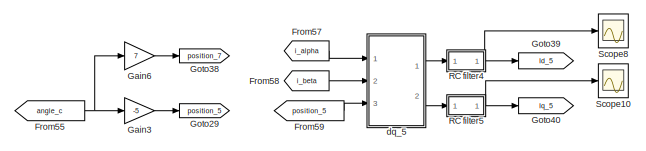
[diagram: Subsystem2/Subsystem1 - part 1/3, top center region]
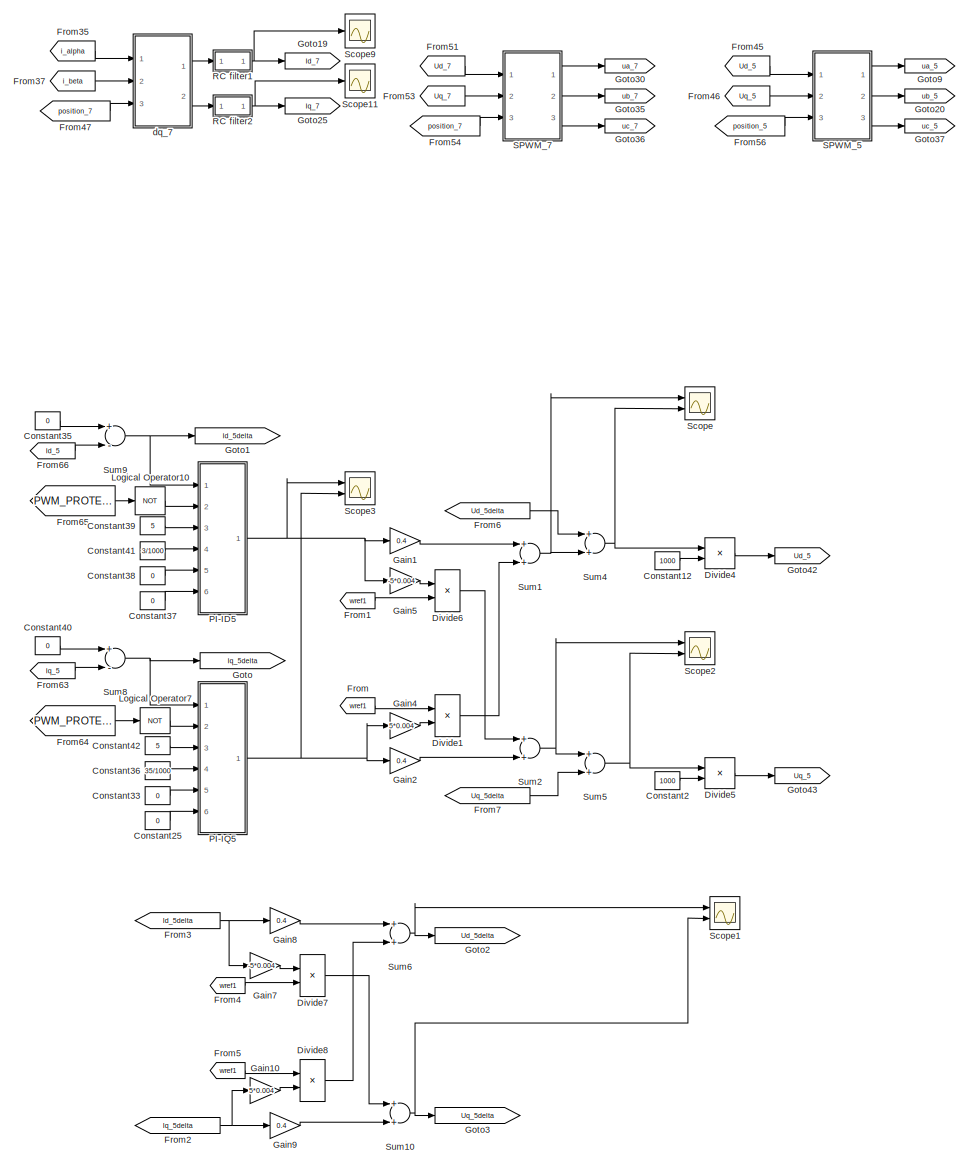
[diagram: Subsystem2/Subsystem1 - part 2/3, right side, full height]
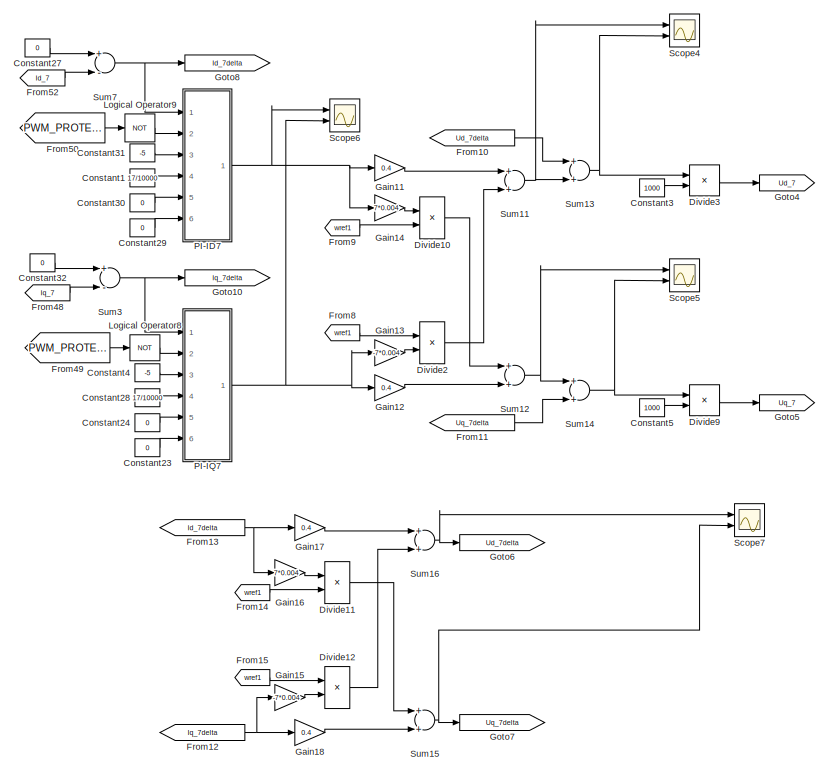
[diagram: Subsystem2/Subsystem1 - part 3/3, bottom left region]
BLOCK [SubSystem] Subsystem2/Subsystem1
  Ports = []
  RequestExecContextInheritance = off
BLOCK [Constant] Subsystem2/Subsystem1/Constant1
  OutDataTypeStr = double
  Value = 17/10000
BLOCK [Constant] Subsystem2/Subsystem1/Constant12
  OutDataTypeStr = double
  Value = 1000
BLOCK [Constant] Subsystem2/Subsystem1/Constant2
  OutDataTypeStr = double
  Value = 1000
BLOCK [Constant] Subsystem2/Subsystem1/Constant23
  OutDataTypeStr = double
  Value = 0
BLOCK [Constant] Subsystem2/Subsystem1/Constant24
  OutDataTypeStr = double
  Value = 0
BLOCK [Constant] Subsystem2/Subsystem1/Constant25
  OutDataTypeStr = double
  Value = 0
BLOCK [Constant] Subsystem2/Subsystem1/Constant27
  OutDataTypeStr = double
  Value = 0
BLOCK [Constant] Subsystem2/Subsystem1/Constant28
  OutDataTypeStr = double
  Value = 17/10000
BLOCK [Constant] Subsystem2/Subsystem1/Constant29
  OutDataTypeStr = double
  Value = 0
BLOCK [Constant] Subsystem2/Subsystem1/Constant3
  OutDataTypeStr = double
  Value = 1000
BLOCK [Constant] Subsystem2/Subsystem1/Constant30
  OutDataTypeStr = double
  Value = 0
BLOCK [Constant] Subsystem2/Subsystem1/Constant31
  OutDataTypeStr = double
  Value = -5
BLOCK [Constant] Subsystem2/Subsystem1/Constant32
  OutDataTypeStr = double
  Value = 0
BLOCK [Constant] Subsystem2/Subsystem1/Constant33
  OutDataTypeStr = double
  Value = 0
BLOCK [Constant] Subsystem2/Subsystem1/Constant35
  OutDataTypeStr = double
  Value = 0
BLOCK [Constant] Subsystem2/Subsystem1/Constant36
  OutDataTypeStr = double
  Value = 35/1000
BLOCK [Constant] Subsystem2/Subsystem1/Constant37
  OutDataTypeStr = double
  Value = 0
BLOCK [Constant] Subsystem2/Subsystem1/Constant38
  OutDataTypeStr = double
  Value = 0
BLOCK [Constant] Subsystem2/Subsystem1/Constant39
  OutDataTypeStr = double
  Value = 5
BLOCK [Constant] Subsystem2/Subsystem1/Constant4
  OutDataTypeStr = double
  Value = -5
BLOCK [Constant] Subsystem2/Subsystem1/Constant40
  OutDataTypeStr = double
  Value = 0
BLOCK [Constant] Subsystem2/Subsystem1/Constant41
  OutDataTypeStr = double
  Value = 3/1000
  VectorParams1D = off
BLOCK [Constant] Subsystem2/Subsystem1/Constant42
  OutDataTypeStr = double
  Value = 5
BLOCK [Constant] Subsystem2/Subsystem1/Constant5
  OutDataTypeStr = double
  Value = 1000
BLOCK [Product] Subsystem2/Subsystem1/Divide1
  InputSameDT = off
  Inputs = **
  OutDataTypeStr = Inherit: Inherit via internal rule
  Ports = [2, 1]
  RndMeth = Floor
  SaturateOnIntegerOverflow = off
BLOCK [Product] Subsystem2/Subsystem1/Divide10
  InputSameDT = off
  Inputs = **
  OutDataTypeStr = Inherit: Inherit via internal rule
  Ports = [2, 1]
  RndMeth = Floor
  SaturateOnIntegerOverflow = off
BLOCK [Product] Subsystem2/Subsystem1/Divide11
  InputSameDT = off
  Inputs = **
  OutDataTypeStr = Inherit: Inherit via internal rule
  Ports = [2, 1]
  RndMeth = Floor
  SaturateOnIntegerOverflow = off
BLOCK [Product] Subsystem2/Subsystem1/Divide12
  InputSameDT = off
  Inputs = **
  OutDataTypeStr = Inherit: Inherit via internal rule
  Ports = [2, 1]
  RndMeth = Floor
  SaturateOnIntegerOverflow = off
BLOCK [Product] Subsystem2/Subsystem1/Divide2
  InputSameDT = off
  Inputs = **
  OutDataTypeStr = Inherit: Inherit via internal rule
  Ports = [2, 1]
  RndMeth = Floor
  SaturateOnIntegerOverflow = off
BLOCK [Product] Subsystem2/Subsystem1/Divide3
  InputSameDT = off
  Inputs = */
  OutDataTypeStr = Inherit: Inherit via internal rule
  Ports = [2, 1]
  RndMeth = Floor
  SaturateOnIntegerOverflow = off
BLOCK [Product] Subsystem2/Subsystem1/Divide4
  InputSameDT = off
  Inputs = */
  OutDataTypeStr = Inherit: Inherit via internal rule
  Ports = [2, 1]
  RndMeth = Floor
  SaturateOnIntegerOverflow = off
BLOCK [Product] Subsystem2/Subsystem1/Divide5
  InputSameDT = off
  Inputs = */
  OutDataTypeStr = Inherit: Inherit via internal rule
  Ports = [2, 1]
  RndMeth = Floor
  SaturateOnIntegerOverflow = off
BLOCK [Product] Subsystem2/Subsystem1/Divide6
  InputSameDT = off
  Inputs = **
  OutDataTypeStr = Inherit: Inherit via internal rule
  Ports = [2, 1]
  RndMeth = Floor
  SaturateOnIntegerOverflow = off
BLOCK [Product] Subsystem2/Subsystem1/Divide7
  InputSameDT = off
  Inputs = **
  OutDataTypeStr = Inherit: Inherit via internal rule
  Ports = [2, 1]
  RndMeth = Floor
  SaturateOnIntegerOverflow = off
BLOCK [Product] Subsystem2/Subsystem1/Divide8
  InputSameDT = off
  Inputs = **
  OutDataTypeStr = Inherit: Inherit via internal rule
  Ports = [2, 1]
  RndMeth = Floor
  SaturateOnIntegerOverflow = off
BLOCK [Product] Subsystem2/Subsystem1/Divide9
  InputSameDT = off
  Inputs = */
  OutDataTypeStr = Inherit: Inherit via internal rule
  Ports = [2, 1]
  RndMeth = Floor
  SaturateOnIntegerOverflow = off
BLOCK [From] Subsystem2/Subsystem1/From
  GotoTag = wref1
  TagVisibility = global
BLOCK [From] Subsystem2/Subsystem1/From1
  GotoTag = wref1
  TagVisibility = global
BLOCK [From] Subsystem2/Subsystem1/From10
  GotoTag = Ud_7delta
BLOCK [From] Subsystem2/Subsystem1/From11
  GotoTag = Uq_7delta
BLOCK [From] Subsystem2/Subsystem1/From12
  GotoTag = Iq_7delta
BLOCK [From] Subsystem2/Subsystem1/From13
  GotoTag = Id_7delta
BLOCK [From] Subsystem2/Subsystem1/From14
  GotoTag = wref1
  TagVisibility = global
BLOCK [From] Subsystem2/Subsystem1/From15
  GotoTag = wref1
  TagVisibility = global
BLOCK [From] Subsystem2/Subsystem1/From2
  GotoTag = Iq_5delta
BLOCK [From] Subsystem2/Subsystem1/From3
  GotoTag = Id_5delta
BLOCK [From] Subsystem2/Subsystem1/From35
  GotoTag = i_alpha
  TagVisibility = global
BLOCK [From] Subsystem2/Subsystem1/From37
  GotoTag = i_beta
  TagVisibility = global
BLOCK [From] Subsystem2/Subsystem1/From4
  GotoTag = wref1
  TagVisibility = global
BLOCK [From] Subsystem2/Subsystem1/From45
  GotoTag = Ud_5
  TagVisibility = global
BLOCK [From] Subsystem2/Subsystem1/From46
  GotoTag = Uq_5
  TagVisibility = global
BLOCK [From] Subsystem2/Subsystem1/From47
  GotoTag = position_7
  TagVisibility = global
BLOCK [From] Subsystem2/Subsystem1/From48
  GotoTag = Iq_7
  TagVisibility = global
BLOCK [From] Subsystem2/Subsystem1/From49
  GotoTag = PWM_PROTECT
BLOCK [From] Subsystem2/Subsystem1/From5
  GotoTag = wref1
  TagVisibility = global
BLOCK [From] Subsystem2/Subsystem1/From50
  GotoTag = PWM_PROTECT
BLOCK [From] Subsystem2/Subsystem1/From51
  GotoTag = Ud_7
  TagVisibility = global
BLOCK [From] Subsystem2/Subsystem1/From52
  GotoTag = Id_7
  TagVisibility = global
BLOCK [From] Subsystem2/Subsystem1/From53
  GotoTag = Uq_7
  TagVisibility = global
BLOCK [From] Subsystem2/Subsystem1/From54
  GotoTag = position_7
  TagVisibility = global
BLOCK [From] Subsystem2/Subsystem1/From55
  GotoTag = angle_c
  TagVisibility = global
BLOCK [From] Subsystem2/Subsystem1/From56
  GotoTag = position_5
  TagVisibility = global
BLOCK [From] Subsystem2/Subsystem1/From57
  GotoTag = i_alpha
  TagVisibility = global
BLOCK [From] Subsystem2/Subsystem1/From58
  GotoTag = i_beta
  TagVisibility = global
BLOCK [From] Subsystem2/Subsystem1/From59
  GotoTag = position_5
  TagVisibility = global
BLOCK [From] Subsystem2/Subsystem1/From6
  GotoTag = Ud_5delta
BLOCK [From] Subsystem2/Subsystem1/From63
  GotoTag = Iq_5
  TagVisibility = global
BLOCK [From] Subsystem2/Subsystem1/From64
  GotoTag = PWM_PROTECT
BLOCK [From] Subsystem2/Subsystem1/From65
  GotoTag = PWM_PROTECT
BLOCK [From] Subsystem2/Subsystem1/From66
  GotoTag = Id_5
  TagVisibility = global
BLOCK [From] Subsystem2/Subsystem1/From7
  GotoTag = Uq_5delta
BLOCK [From] Subsystem2/Subsystem1/From8
  GotoTag = wref1
  TagVisibility = global
BLOCK [From] Subsystem2/Subsystem1/From9
  GotoTag = wref1
  TagVisibility = global
BLOCK [Gain] Subsystem2/Subsystem1/Gain1
  Gain = 0.4
  OutDataTypeStr = Inherit: Inherit via internal rule
  ParamDataTypeStr = Inherit: Inherit via internal rule
  SaturateOnIntegerOverflow = off
BLOCK [Gain] Subsystem2/Subsystem1/Gain10
  Gain = 5*0.004
  OutDataTypeStr = Inherit: Inherit via internal rule
  ParamDataTypeStr = Inherit: Inherit via internal rule
  SaturateOnIntegerOverflow = off
BLOCK [Gain] Subsystem2/Subsystem1/Gain11
  Gain = 0.4
  OutDataTypeStr = Inherit: Inherit via internal rule
  ParamDataTypeStr = Inherit: Inherit via internal rule
  SaturateOnIntegerOverflow = off
BLOCK [Gain] Subsystem2/Subsystem1/Gain12
  Gain = 0.4
  OutDataTypeStr = Inherit: Inherit via internal rule
  ParamDataTypeStr = Inherit: Inherit via internal rule
  SaturateOnIntegerOverflow = off
BLOCK [Gain] Subsystem2/Subsystem1/Gain13
  Gain = -7*0.004
  OutDataTypeStr = Inherit: Inherit via internal rule
  ParamDataTypeStr = Inherit: Inherit via internal rule
  SaturateOnIntegerOverflow = off
BLOCK [Gain] Subsystem2/Subsystem1/Gain14
  Gain = 7*0.004
  OutDataTypeStr = Inherit: Inherit via internal rule
  ParamDataTypeStr = Inherit: Inherit via internal rule
  SaturateOnIntegerOverflow = off
BLOCK [Gain] Subsystem2/Subsystem1/Gain15
  Gain = -7*0.004
  OutDataTypeStr = Inherit: Inherit via internal rule
  ParamDataTypeStr = Inherit: Inherit via internal rule
  SaturateOnIntegerOverflow = off
BLOCK [Gain] Subsystem2/Subsystem1/Gain16
  Gain = 7*0.004
  OutDataTypeStr = Inherit: Inherit via internal rule
  ParamDataTypeStr = Inherit: Inherit via internal rule
  SaturateOnIntegerOverflow = off
BLOCK [Gain] Subsystem2/Subsystem1/Gain17
  Gain = 0.4
  OutDataTypeStr = Inherit: Inherit via internal rule
  ParamDataTypeStr = Inherit: Inherit via internal rule
  SaturateOnIntegerOverflow = off
BLOCK [Gain] Subsystem2/Subsystem1/Gain18
  Gain = 0.4
  OutDataTypeStr = Inherit: Inherit via internal rule
  ParamDataTypeStr = Inherit: Inherit via internal rule
  SaturateOnIntegerOverflow = off
BLOCK [Gain] Subsystem2/Subsystem1/Gain2
  Gain = 0.4
  OutDataTypeStr = Inherit: Inherit via internal rule
  ParamDataTypeStr = Inherit: Inherit via internal rule
  SaturateOnIntegerOverflow = off
BLOCK [Gain] Subsystem2/Subsystem1/Gain3
  Gain = -5
  OutDataTypeStr = Inherit: Inherit via internal rule
  ParamDataTypeStr = Inherit: Inherit via internal rule
  SaturateOnIntegerOverflow = off
BLOCK [Gain] Subsystem2/Subsystem1/Gain4
  Gain = 5*0.004
  OutDataTypeStr = Inherit: Inherit via internal rule
  ParamDataTypeStr = Inherit: Inherit via internal rule
  SaturateOnIntegerOverflow = off
BLOCK [Gain] Subsystem2/Subsystem1/Gain5
  Gain = -5*0.004
  OutDataTypeStr = Inherit: Inherit via internal rule
  ParamDataTypeStr = Inherit: Inherit via internal rule
  SaturateOnIntegerOverflow = off
BLOCK [Gain] Subsystem2/Subsystem1/Gain6
  Gain = 7
  OutDataTypeStr = Inherit: Inherit via internal rule
  ParamDataTypeStr = Inherit: Inherit via internal rule
  SaturateOnIntegerOverflow = off
BLOCK [Gain] Subsystem2/Subsystem1/Gain7
  Gain = -5*0.004
  OutDataTypeStr = Inherit: Inherit via internal rule
  ParamDataTypeStr = Inherit: Inherit via internal rule
  SaturateOnIntegerOverflow = off
BLOCK [Gain] Subsystem2/Subsystem1/Gain8
  Gain = 0.4
  OutDataTypeStr = Inherit: Inherit via internal rule
  ParamDataTypeStr = Inherit: Inherit via internal rule
  SaturateOnIntegerOverflow = off
BLOCK [Gain] Subsystem2/Subsystem1/Gain9
  Gain = 0.4
  OutDataTypeStr = Inherit: Inherit via internal rule
  ParamDataTypeStr = Inherit: Inherit via internal rule
  SaturateOnIntegerOverflow = off
BLOCK [Goto] Subsystem2/Subsystem1/Goto
  GotoTag = Iq_5delta
BLOCK [Goto] Subsystem2/Subsystem1/Goto1
  GotoTag = Id_5delta
BLOCK [Goto] Subsystem2/Subsystem1/Goto10
  GotoTag = Iq_7delta
BLOCK [Goto] Subsystem2/Subsystem1/Goto19
  GotoTag = Id_7
  TagVisibility = global
BLOCK [Goto] Subsystem2/Subsystem1/Goto2
  GotoTag = Ud_5delta
BLOCK [Goto] Subsystem2/Subsystem1/Goto20
  GotoTag = ub_5
  TagVisibility = global
BLOCK [Goto] Subsystem2/Subsystem1/Goto25
  GotoTag = Iq_7
  TagVisibility = global
BLOCK [Goto] Subsystem2/Subsystem1/Goto29
  GotoTag = position_5
  TagVisibility = global
BLOCK [Goto] Subsystem2/Subsystem1/Goto3
  GotoTag = Uq_5delta
BLOCK [Goto] Subsystem2/Subsystem1/Goto30
  GotoTag = ua_7
  TagVisibility = global
BLOCK [Goto] Subsystem2/Subsystem1/Goto35
  GotoTag = ub_7
  TagVisibility = global
BLOCK [Goto] Subsystem2/Subsystem1/Goto36
  GotoTag = uc_7
  TagVisibility = global
BLOCK [Goto] Subsystem2/Subsystem1/Goto37
  GotoTag = uc_5
  TagVisibility = global
BLOCK [Goto] Subsystem2/Subsystem1/Goto38
  GotoTag = position_7
  TagVisibility = global
BLOCK [Goto] Subsystem2/Subsystem1/Goto39
  GotoTag = Id_5
  TagVisibility = global
BLOCK [Goto] Subsystem2/Subsystem1/Goto4
  GotoTag = Ud_7
  TagVisibility = global
BLOCK [Goto] Subsystem2/Subsystem1/Goto40
  GotoTag = Iq_5
  TagVisibility = global
BLOCK [Goto] Subsystem2/Subsystem1/Goto42
  GotoTag = Ud_5
  TagVisibility = global
BLOCK [Goto] Subsystem2/Subsystem1/Goto43
  GotoTag = Uq_5
  TagVisibility = global
BLOCK [Goto] Subsystem2/Subsystem1/Goto5
  GotoTag = Uq_7
  TagVisibility = global
BLOCK [Goto] Subsystem2/Subsystem1/Goto6
  GotoTag = Ud_7delta
BLOCK [Goto] Subsystem2/Subsystem1/Goto7
  GotoTag = Uq_7delta
BLOCK [Goto] Subsystem2/Subsystem1/Goto8
  GotoTag = Id_7delta
BLOCK [Goto] Subsystem2/Subsystem1/Goto9
  GotoTag = ua_5
  TagVisibility = global
BLOCK [Logic] Subsystem2/Subsystem1/Logical Operator10
  AllPortsSameDT = off
  Operator = NOT
  OutDataTypeStr = boolean
  Ports = [1, 1]
BLOCK [Logic] Subsystem2/Subsystem1/Logical Operator7
  AllPortsSameDT = off
  Operator = NOT
  OutDataTypeStr = boolean
  Ports = [1, 1]
BLOCK [Logic] Subsystem2/Subsystem1/Logical Operator8
  AllPortsSameDT = off
  Operator = NOT
  OutDataTypeStr = boolean
  Ports = [1, 1]
BLOCK [Logic] Subsystem2/Subsystem1/Logical Operator9
  AllPortsSameDT = off
  Operator = NOT
  OutDataTypeStr = boolean
  Ports = [1, 1]
BLOCK [SubSystem] Subsystem2/Subsystem1/PI-ID5
  Ports = [6, 1]
  RequestExecContextInheritance = off
BLOCK [Constant] Subsystem2/Subsystem1/PI-ID5/Constant1
  OutDataTypeStr = Inherit: Inherit via back propagation
  Value = 0
BLOCK [Constant] Subsystem2/Subsystem1/PI-ID5/Constant2
  OutDataTypeStr = Inherit: Inherit via back propagation
  Value = 25
BLOCK [Constant] Subsystem2/Subsystem1/PI-ID5/Constant3
  OutDataTypeStr = Inherit: Inherit via back propagation
  Value = 0
BLOCK [Constant] Subsystem2/Subsystem1/PI-ID5/Constant5
  OutDataTypeStr = Inherit: Inherit via back propagation
  Value = 0
BLOCK [Inport] Subsystem2/Subsystem1/PI-ID5/D
  IconDisplay = Port number
  Port = 5
BLOCK [Inport] Subsystem2/Subsystem1/PI-ID5/I
  IconDisplay = Port number
  Port = 4
BLOCK [Logic] Subsystem2/Subsystem1/PI-ID5/Logical Operator5
  AllPortsSameDT = off
  OutDataTypeStr = boolean
  Ports = [2, 1]
BLOCK [Logic] Subsystem2/Subsystem1/PI-ID5/Logical Operator6
  AllPortsSameDT = off
  Operator = NOT
  OutDataTypeStr = boolean
  Ports = [1, 1]
BLOCK [Inport] Subsystem2/Subsystem1/PI-ID5/OV
  IconDisplay = Port number
  Port = 6
BLOCK [Inport] Subsystem2/Subsystem1/PI-ID5/P
  IconDisplay = Port number
  Port = 3
BLOCK [Product] Subsystem2/Subsystem1/PI-ID5/Product
  InputSameDT = off
  OutDataTypeStr = Inherit: Inherit via internal rule
  Ports = [2, 1]
  SaturateOnIntegerOverflow = off
BLOCK [Product] Subsystem2/Subsystem1/PI-ID5/Product1
  InputSameDT = off
  OutDataTypeStr = Inherit: Inherit via internal rule
  Ports = [2, 1]
  SaturateOnIntegerOverflow = off
BLOCK [Product] Subsystem2/Subsystem1/PI-ID5/Product2
  InputSameDT = off
  OutDataTypeStr = Inherit: Inherit via internal rule
  Ports = [2, 1]
  SaturateOnIntegerOverflow = off
BLOCK [SubSystem] Subsystem2/Subsystem1/PI-ID5/RC filter8
  Ports = [1, 1]
  RequestExecContextInheritance = off
BLOCK [Constant] Subsystem2/Subsystem1/PI-ID5/RC filter8/Constant2
  OutDataTypeStr = double
  Value = a
BLOCK [Constant] Subsystem2/Subsystem1/PI-ID5/RC filter8/Constant3
  OutDataTypeStr = double
  Value = 1-a
BLOCK [Product] Subsystem2/Subsystem1/PI-ID5/RC filter8/Divide
  InputSameDT = off
  OutDataTypeStr = Inherit: Inherit via internal rule
  Ports = [2, 1]
  RndMeth = Floor
  SaturateOnIntegerOverflow = off
BLOCK [Product] Subsystem2/Subsystem1/PI-ID5/RC filter8/Divide1
  InputSameDT = off
  OutDataTypeStr = Inherit: Inherit via internal rule
  Ports = [2, 1]
  RndMeth = Floor
  SaturateOnIntegerOverflow = off
BLOCK [Sum] Subsystem2/Subsystem1/PI-ID5/RC filter8/Sum2
  InputSameDT = off
  OutDataTypeStr = Inherit: Inherit via internal rule
  Ports = [2, 1]
  SaturateOnIntegerOverflow = off
BLOCK [UnitDelay] Subsystem2/Subsystem1/PI-ID5/RC filter8/Unit Delay2
  InputProcessing = Elements as channels (sample based)
  SampleTime = -1
BLOCK [Inport] Subsystem2/Subsystem1/PI-ID5/RC filter8/x
  IconDisplay = Port number
BLOCK [Outport] Subsystem2/Subsystem1/PI-ID5/RC filter8/y
  IconDisplay = Port number
BLOCK [Saturate] Subsystem2/Subsystem1/PI-ID5/Saturation
  InputPortMap = u0
  LinearizeAsGain = off
  LowerLimit = min
  OutDataTypeStr = double
  Ports = [1, 1]
  UpperLimit = max
  ZeroCross = off
BLOCK [Saturate] Subsystem2/Subsystem1/PI-ID5/Saturation1
  InputPortMap = u0
  LinearizeAsGain = off
  LowerLimit = ermin
  OutDataTypeStr = double
  Ports = [1, 1]
  UpperLimit = ermax
  ZeroCross = off
BLOCK [Saturate] Subsystem2/Subsystem1/PI-ID5/Saturation2
  InputPortMap = u0
  LinearizeAsGain = off
  LowerLimit = min
  OutDataTypeStr = double
  Ports = [1, 1]
  UpperLimit = max
  ZeroCross = off
BLOCK [Sum] Subsystem2/Subsystem1/PI-ID5/Sum1
  InputSameDT = off
  Inputs = +++
  OutDataTypeStr = Inherit: Inherit via internal rule
  Ports = [3, 1]
  SaturateOnIntegerOverflow = off
BLOCK [Sum] Subsystem2/Subsystem1/PI-ID5/Sum2
  InputSameDT = off
  Inputs = +-
  OutDataTypeStr = Inherit: Inherit via internal rule
  Ports = [2, 1]
  SaturateOnIntegerOverflow = off
BLOCK [Sum] Subsystem2/Subsystem1/PI-ID5/Sum4
  InputSameDT = off
  OutDataTypeStr = Inherit: Inherit via internal rule
  Ports = [2, 1]
  SaturateOnIntegerOverflow = off
BLOCK [Switch] Subsystem2/Subsystem1/PI-ID5/Switch1
  Criteria = u2 > Threshold
BLOCK [Switch] Subsystem2/Subsystem1/PI-ID5/Switch2
  Criteria = u2 > Threshold
BLOCK [Switch] Subsystem2/Subsystem1/PI-ID5/Switch3
  Criteria = u2 > Threshold
BLOCK [Switch] Subsystem2/Subsystem1/PI-ID5/Switch4
  Criteria = u2 > Threshold
BLOCK [UnitDelay] Subsystem2/Subsystem1/PI-ID5/Unit Delay1
  SampleTime = -1
BLOCK [UnitDelay] Subsystem2/Subsystem1/PI-ID5/Unit Delay3
  SampleTime = -1
BLOCK [Inport] Subsystem2/Subsystem1/PI-ID5/err
  IconDisplay = Port number
BLOCK [Outport] Subsystem2/Subsystem1/PI-ID5/out
  IconDisplay = Port number
BLOCK [Inport] Subsystem2/Subsystem1/PI-ID5/reset
  IconDisplay = Port number
  Port = 2
BLOCK [SubSystem] Subsystem2/Subsystem1/PI-ID7
  Ports = [6, 1]
  RequestExecContextInheritance = off
BLOCK [Constant] Subsystem2/Subsystem1/PI-ID7/Constant1
  OutDataTypeStr = Inherit: Inherit via back propagation
  Value = 0
BLOCK [Constant] Subsystem2/Subsystem1/PI-ID7/Constant2
  OutDataTypeStr = Inherit: Inherit via back propagation
  Value = 25
BLOCK [Constant] Subsystem2/Subsystem1/PI-ID7/Constant3
  OutDataTypeStr = Inherit: Inherit via back propagation
  Value = 0
BLOCK [Constant] Subsystem2/Subsystem1/PI-ID7/Constant5
  OutDataTypeStr = Inherit: Inherit via back propagation
  Value = 0
BLOCK [Inport] Subsystem2/Subsystem1/PI-ID7/D
  IconDisplay = Port number
  Port = 5
BLOCK [Inport] Subsystem2/Subsystem1/PI-ID7/I
  IconDisplay = Port number
  Port = 4
BLOCK [Logic] Subsystem2/Subsystem1/PI-ID7/Logical Operator5
  AllPortsSameDT = off
  OutDataTypeStr = boolean
  Ports = [2, 1]
BLOCK [Logic] Subsystem2/Subsystem1/PI-ID7/Logical Operator6
  AllPortsSameDT = off
  Operator = NOT
  OutDataTypeStr = boolean
  Ports = [1, 1]
BLOCK [Inport] Subsystem2/Subsystem1/PI-ID7/OV
  IconDisplay = Port number
  Port = 6
BLOCK [Inport] Subsystem2/Subsystem1/PI-ID7/P
  IconDisplay = Port number
  Port = 3
BLOCK [Product] Subsystem2/Subsystem1/PI-ID7/Product
  InputSameDT = off
  OutDataTypeStr = Inherit: Inherit via internal rule
  Ports = [2, 1]
  SaturateOnIntegerOverflow = off
BLOCK [Product] Subsystem2/Subsystem1/PI-ID7/Product1
  InputSameDT = off
  OutDataTypeStr = Inherit: Inherit via internal rule
  Ports = [2, 1]
  SaturateOnIntegerOverflow = off
BLOCK [Product] Subsystem2/Subsystem1/PI-ID7/Product2
  InputSameDT = off
  OutDataTypeStr = Inherit: Inherit via internal rule
  Ports = [2, 1]
  SaturateOnIntegerOverflow = off
BLOCK [SubSystem] Subsystem2/Subsystem1/PI-ID7/RC filter8
  Ports = [1, 1]
  RequestExecContextInheritance = off
BLOCK [Constant] Subsystem2/Subsystem1/PI-ID7/RC filter8/Constant2
  OutDataTypeStr = double
  Value = a
BLOCK [Constant] Subsystem2/Subsystem1/PI-ID7/RC filter8/Constant3
  OutDataTypeStr = double
  Value = 1-a
BLOCK [Product] Subsystem2/Subsystem1/PI-ID7/RC filter8/Divide
  InputSameDT = off
  OutDataTypeStr = Inherit: Inherit via internal rule
  Ports = [2, 1]
  RndMeth = Floor
  SaturateOnIntegerOverflow = off
BLOCK [Product] Subsystem2/Subsystem1/PI-ID7/RC filter8/Divide1
  InputSameDT = off
  OutDataTypeStr = Inherit: Inherit via internal rule
  Ports = [2, 1]
  RndMeth = Floor
  SaturateOnIntegerOverflow = off
BLOCK [Sum] Subsystem2/Subsystem1/PI-ID7/RC filter8/Sum2
  InputSameDT = off
  OutDataTypeStr = Inherit: Inherit via internal rule
  Ports = [2, 1]
  SaturateOnIntegerOverflow = off
BLOCK [UnitDelay] Subsystem2/Subsystem1/PI-ID7/RC filter8/Unit Delay2
  InputProcessing = Elements as channels (sample based)
  SampleTime = -1
BLOCK [Inport] Subsystem2/Subsystem1/PI-ID7/RC filter8/x
  IconDisplay = Port number
BLOCK [Outport] Subsystem2/Subsystem1/PI-ID7/RC filter8/y
  IconDisplay = Port number
BLOCK [Saturate] Subsystem2/Subsystem1/PI-ID7/Saturation
  InputPortMap = u0
  LinearizeAsGain = off
  LowerLimit = min
  OutDataTypeStr = double
  Ports = [1, 1]
  UpperLimit = max
  ZeroCross = off
BLOCK [Saturate] Subsystem2/Subsystem1/PI-ID7/Saturation1
  InputPortMap = u0
  LinearizeAsGain = off
  LowerLimit = ermin
  OutDataTypeStr = double
  Ports = [1, 1]
  UpperLimit = ermax
  ZeroCross = off
BLOCK [Saturate] Subsystem2/Subsystem1/PI-ID7/Saturation2
  InputPortMap = u0
  LinearizeAsGain = off
  LowerLimit = min
  OutDataTypeStr = double
  Ports = [1, 1]
  UpperLimit = max
  ZeroCross = off
BLOCK [Sum] Subsystem2/Subsystem1/PI-ID7/Sum1
  InputSameDT = off
  Inputs = +++
  OutDataTypeStr = Inherit: Inherit via internal rule
  Ports = [3, 1]
  SaturateOnIntegerOverflow = off
BLOCK [Sum] Subsystem2/Subsystem1/PI-ID7/Sum2
  InputSameDT = off
  Inputs = +-
  OutDataTypeStr = Inherit: Inherit via internal rule
  Ports = [2, 1]
  SaturateOnIntegerOverflow = off
BLOCK [Sum] Subsystem2/Subsystem1/PI-ID7/Sum4
  InputSameDT = off
  OutDataTypeStr = Inherit: Inherit via internal rule
  Ports = [2, 1]
  SaturateOnIntegerOverflow = off
BLOCK [Switch] Subsystem2/Subsystem1/PI-ID7/Switch1
  Criteria = u2 > Threshold
BLOCK [Switch] Subsystem2/Subsystem1/PI-ID7/Switch2
  Criteria = u2 > Threshold
BLOCK [Switch] Subsystem2/Subsystem1/PI-ID7/Switch3
  Criteria = u2 > Threshold
BLOCK [Switch] Subsystem2/Subsystem1/PI-ID7/Switch4
  Criteria = u2 > Threshold
BLOCK [UnitDelay] Subsystem2/Subsystem1/PI-ID7/Unit Delay1
  SampleTime = -1
BLOCK [UnitDelay] Subsystem2/Subsystem1/PI-ID7/Unit Delay3
  SampleTime = -1
BLOCK [Inport] Subsystem2/Subsystem1/PI-ID7/err
  IconDisplay = Port number
BLOCK [Outport] Subsystem2/Subsystem1/PI-ID7/out
  IconDisplay = Port number
BLOCK [Inport] Subsystem2/Subsystem1/PI-ID7/reset
  IconDisplay = Port number
  Port = 2
BLOCK [SubSystem] Subsystem2/Subsystem1/PI-IQ5
  Ports = [6, 1]
  RequestExecContextInheritance = off
BLOCK [Constant] Subsystem2/Subsystem1/PI-IQ5/Constant1
  OutDataTypeStr = Inherit: Inherit via back propagation
  Value = 0
BLOCK [Constant] Subsystem2/Subsystem1/PI-IQ5/Constant2
  OutDataTypeStr = Inherit: Inherit via back propagation
  Value = 25
BLOCK [Constant] Subsystem2/Subsystem1/PI-IQ5/Constant3
  OutDataTypeStr = Inherit: Inherit via back propagation
  Value = 0
BLOCK [Constant] Subsystem2/Subsystem1/PI-IQ5/Constant5
  OutDataTypeStr = Inherit: Inherit via back propagation
  Value = 0
BLOCK [Inport] Subsystem2/Subsystem1/PI-IQ5/D
  IconDisplay = Port number
  Port = 5
BLOCK [Inport] Subsystem2/Subsystem1/PI-IQ5/I
  IconDisplay = Port number
  Port = 4
BLOCK [Logic] Subsystem2/Subsystem1/PI-IQ5/Logical Operator5
  AllPortsSameDT = off
  OutDataTypeStr = boolean
  Ports = [2, 1]
BLOCK [Logic] Subsystem2/Subsystem1/PI-IQ5/Logical Operator6
  AllPortsSameDT = off
  Operator = NOT
  OutDataTypeStr = boolean
  Ports = [1, 1]
BLOCK [Inport] Subsystem2/Subsystem1/PI-IQ5/OV
  IconDisplay = Port number
  Port = 6
BLOCK [Inport] Subsystem2/Subsystem1/PI-IQ5/P
  IconDisplay = Port number
  Port = 3
BLOCK [Product] Subsystem2/Subsystem1/PI-IQ5/Product
  InputSameDT = off
  OutDataTypeStr = Inherit: Inherit via internal rule
  Ports = [2, 1]
  SaturateOnIntegerOverflow = off
BLOCK [Product] Subsystem2/Subsystem1/PI-IQ5/Product1
  InputSameDT = off
  OutDataTypeStr = Inherit: Inherit via internal rule
  Ports = [2, 1]
  SaturateOnIntegerOverflow = off
BLOCK [Product] Subsystem2/Subsystem1/PI-IQ5/Product2
  InputSameDT = off
  OutDataTypeStr = Inherit: Inherit via internal rule
  Ports = [2, 1]
  SaturateOnIntegerOverflow = off
BLOCK [SubSystem] Subsystem2/Subsystem1/PI-IQ5/RC filter8
  Ports = [1, 1]
  RequestExecContextInheritance = off
BLOCK [Constant] Subsystem2/Subsystem1/PI-IQ5/RC filter8/Constant2
  OutDataTypeStr = double
  Value = a
BLOCK [Constant] Subsystem2/Subsystem1/PI-IQ5/RC filter8/Constant3
  OutDataTypeStr = double
  Value = 1-a
BLOCK [Product] Subsystem2/Subsystem1/PI-IQ5/RC filter8/Divide
  InputSameDT = off
  OutDataTypeStr = Inherit: Inherit via internal rule
  Ports = [2, 1]
  RndMeth = Floor
  SaturateOnIntegerOverflow = off
BLOCK [Product] Subsystem2/Subsystem1/PI-IQ5/RC filter8/Divide1
  InputSameDT = off
  OutDataTypeStr = Inherit: Inherit via internal rule
  Ports = [2, 1]
  RndMeth = Floor
  SaturateOnIntegerOverflow = off
BLOCK [Sum] Subsystem2/Subsystem1/PI-IQ5/RC filter8/Sum2
  InputSameDT = off
  OutDataTypeStr = Inherit: Inherit via internal rule
  Ports = [2, 1]
  SaturateOnIntegerOverflow = off
BLOCK [UnitDelay] Subsystem2/Subsystem1/PI-IQ5/RC filter8/Unit Delay2
  InputProcessing = Elements as channels (sample based)
  SampleTime = -1
BLOCK [Inport] Subsystem2/Subsystem1/PI-IQ5/RC filter8/x
  IconDisplay = Port number
BLOCK [Outport] Subsystem2/Subsystem1/PI-IQ5/RC filter8/y
  IconDisplay = Port number
BLOCK [Saturate] Subsystem2/Subsystem1/PI-IQ5/Saturation
  InputPortMap = u0
  LinearizeAsGain = off
  LowerLimit = min
  OutDataTypeStr = double
  Ports = [1, 1]
  UpperLimit = max
  ZeroCross = off
BLOCK [Saturate] Subsystem2/Subsystem1/PI-IQ5/Saturation1
  InputPortMap = u0
  LinearizeAsGain = off
  LowerLimit = ermin
  OutDataTypeStr = double
  Ports = [1, 1]
  UpperLimit = ermax
  ZeroCross = off
BLOCK [Saturate] Subsystem2/Subsystem1/PI-IQ5/Saturation2
  InputPortMap = u0
  LinearizeAsGain = off
  LowerLimit = min
  OutDataTypeStr = double
  Ports = [1, 1]
  UpperLimit = max
  ZeroCross = off
BLOCK [Sum] Subsystem2/Subsystem1/PI-IQ5/Sum1
  InputSameDT = off
  Inputs = +++
  OutDataTypeStr = Inherit: Inherit via internal rule
  Ports = [3, 1]
  SaturateOnIntegerOverflow = off
BLOCK [Sum] Subsystem2/Subsystem1/PI-IQ5/Sum2
  InputSameDT = off
  Inputs = +-
  OutDataTypeStr = Inherit: Inherit via internal rule
  Ports = [2, 1]
  SaturateOnIntegerOverflow = off
BLOCK [Sum] Subsystem2/Subsystem1/PI-IQ5/Sum4
  InputSameDT = off
  OutDataTypeStr = Inherit: Inherit via internal rule
  Ports = [2, 1]
  SaturateOnIntegerOverflow = off
BLOCK [Switch] Subsystem2/Subsystem1/PI-IQ5/Switch1
  Criteria = u2 > Threshold
BLOCK [Switch] Subsystem2/Subsystem1/PI-IQ5/Switch2
  Criteria = u2 > Threshold
BLOCK [Switch] Subsystem2/Subsystem1/PI-IQ5/Switch3
  Criteria = u2 > Threshold
BLOCK [Switch] Subsystem2/Subsystem1/PI-IQ5/Switch4
  Criteria = u2 > Threshold
BLOCK [UnitDelay] Subsystem2/Subsystem1/PI-IQ5/Unit Delay1
  SampleTime = -1
BLOCK [UnitDelay] Subsystem2/Subsystem1/PI-IQ5/Unit Delay3
  SampleTime = -1
BLOCK [Inport] Subsystem2/Subsystem1/PI-IQ5/err
  IconDisplay = Port number
BLOCK [Outport] Subsystem2/Subsystem1/PI-IQ5/out
  IconDisplay = Port number
BLOCK [Inport] Subsystem2/Subsystem1/PI-IQ5/reset
  IconDisplay = Port number
  Port = 2
BLOCK [SubSystem] Subsystem2/Subsystem1/PI-IQ7
  Ports = [6, 1]
  RequestExecContextInheritance = off
BLOCK [Constant] Subsystem2/Subsystem1/PI-IQ7/Constant1
  OutDataTypeStr = Inherit: Inherit via back propagation
  Value = 0
BLOCK [Constant] Subsystem2/Subsystem1/PI-IQ7/Constant2
  OutDataTypeStr = Inherit: Inherit via back propagation
  Value = 25
BLOCK [Constant] Subsystem2/Subsystem1/PI-IQ7/Constant3
  OutDataTypeStr = Inherit: Inherit via back propagation
  Value = 0
BLOCK [Constant] Subsystem2/Subsystem1/PI-IQ7/Constant5
  OutDataTypeStr = Inherit: Inherit via back propagation
  Value = 0
BLOCK [Inport] Subsystem2/Subsystem1/PI-IQ7/D
  IconDisplay = Port number
  Port = 5
BLOCK [Inport] Subsystem2/Subsystem1/PI-IQ7/I
  IconDisplay = Port number
  Port = 4
BLOCK [Logic] Subsystem2/Subsystem1/PI-IQ7/Logical Operator5
  AllPortsSameDT = off
  OutDataTypeStr = boolean
  Ports = [2, 1]
BLOCK [Logic] Subsystem2/Subsystem1/PI-IQ7/Logical Operator6
  AllPortsSameDT = off
  Operator = NOT
  OutDataTypeStr = boolean
  Ports = [1, 1]
BLOCK [Inport] Subsystem2/Subsystem1/PI-IQ7/OV
  IconDisplay = Port number
  Port = 6
BLOCK [Inport] Subsystem2/Subsystem1/PI-IQ7/P
  IconDisplay = Port number
  Port = 3
BLOCK [Product] Subsystem2/Subsystem1/PI-IQ7/Product
  InputSameDT = off
  OutDataTypeStr = Inherit: Inherit via internal rule
  Ports = [2, 1]
  SaturateOnIntegerOverflow = off
BLOCK [Product] Subsystem2/Subsystem1/PI-IQ7/Product1
  InputSameDT = off
  OutDataTypeStr = Inherit: Inherit via internal rule
  Ports = [2, 1]
  SaturateOnIntegerOverflow = off
BLOCK [Product] Subsystem2/Subsystem1/PI-IQ7/Product2
  InputSameDT = off
  OutDataTypeStr = Inherit: Inherit via internal rule
  Ports = [2, 1]
  SaturateOnIntegerOverflow = off
BLOCK [SubSystem] Subsystem2/Subsystem1/PI-IQ7/RC filter8
  Ports = [1, 1]
  RequestExecContextInheritance = off
BLOCK [Constant] Subsystem2/Subsystem1/PI-IQ7/RC filter8/Constant2
  OutDataTypeStr = double
  Value = a
BLOCK [Constant] Subsystem2/Subsystem1/PI-IQ7/RC filter8/Constant3
  OutDataTypeStr = double
  Value = 1-a
BLOCK [Product] Subsystem2/Subsystem1/PI-IQ7/RC filter8/Divide
  InputSameDT = off
  OutDataTypeStr = Inherit: Inherit via internal rule
  Ports = [2, 1]
  RndMeth = Floor
  SaturateOnIntegerOverflow = off
BLOCK [Product] Subsystem2/Subsystem1/PI-IQ7/RC filter8/Divide1
  InputSameDT = off
  OutDataTypeStr = Inherit: Inherit via internal rule
  Ports = [2, 1]
  RndMeth = Floor
  SaturateOnIntegerOverflow = off
BLOCK [Sum] Subsystem2/Subsystem1/PI-IQ7/RC filter8/Sum2
  InputSameDT = off
  OutDataTypeStr = Inherit: Inherit via internal rule
  Ports = [2, 1]
  SaturateOnIntegerOverflow = off
BLOCK [UnitDelay] Subsystem2/Subsystem1/PI-IQ7/RC filter8/Unit Delay2
  InputProcessing = Elements as channels (sample based)
  SampleTime = -1
BLOCK [Inport] Subsystem2/Subsystem1/PI-IQ7/RC filter8/x
  IconDisplay = Port number
BLOCK [Outport] Subsystem2/Subsystem1/PI-IQ7/RC filter8/y
  IconDisplay = Port number
BLOCK [Saturate] Subsystem2/Subsystem1/PI-IQ7/Saturation
  InputPortMap = u0
  LinearizeAsGain = off
  LowerLimit = min
  OutDataTypeStr = double
  Ports = [1, 1]
  UpperLimit = max
  ZeroCross = off
BLOCK [Saturate] Subsystem2/Subsystem1/PI-IQ7/Saturation1
  InputPortMap = u0
  LinearizeAsGain = off
  LowerLimit = ermin
  OutDataTypeStr = double
  Ports = [1, 1]
  UpperLimit = ermax
  ZeroCross = off
BLOCK [Saturate] Subsystem2/Subsystem1/PI-IQ7/Saturation2
  InputPortMap = u0
  LinearizeAsGain = off
  LowerLimit = min
  OutDataTypeStr = double
  Ports = [1, 1]
  UpperLimit = max
  ZeroCross = off
BLOCK [Sum] Subsystem2/Subsystem1/PI-IQ7/Sum1
  InputSameDT = off
  Inputs = +++
  OutDataTypeStr = Inherit: Inherit via internal rule
  Ports = [3, 1]
  SaturateOnIntegerOverflow = off
BLOCK [Sum] Subsystem2/Subsystem1/PI-IQ7/Sum2
  InputSameDT = off
  Inputs = +-
  OutDataTypeStr = Inherit: Inherit via internal rule
  Ports = [2, 1]
  SaturateOnIntegerOverflow = off
BLOCK [Sum] Subsystem2/Subsystem1/PI-IQ7/Sum4
  InputSameDT = off
  OutDataTypeStr = Inherit: Inherit via internal rule
  Ports = [2, 1]
  SaturateOnIntegerOverflow = off
BLOCK [Switch] Subsystem2/Subsystem1/PI-IQ7/Switch1
  Criteria = u2 > Threshold
BLOCK [Switch] Subsystem2/Subsystem1/PI-IQ7/Switch2
  Criteria = u2 > Threshold
BLOCK [Switch] Subsystem2/Subsystem1/PI-IQ7/Switch3
  Criteria = u2 > Threshold
BLOCK [Switch] Subsystem2/Subsystem1/PI-IQ7/Switch4
  Criteria = u2 > Threshold
BLOCK [UnitDelay] Subsystem2/Subsystem1/PI-IQ7/Unit Delay1
  SampleTime = -1
BLOCK [UnitDelay] Subsystem2/Subsystem1/PI-IQ7/Unit Delay3
  SampleTime = -1
BLOCK [Inport] Subsystem2/Subsystem1/PI-IQ7/err
  IconDisplay = Port number
BLOCK [Outport] Subsystem2/Subsystem1/PI-IQ7/out
  IconDisplay = Port number
BLOCK [Inport] Subsystem2/Subsystem1/PI-IQ7/reset
  IconDisplay = Port number
  Port = 2
BLOCK [SubSystem] Subsystem2/Subsystem1/RC filter1
  Ports = [1, 1]
  RequestExecContextInheritance = off
BLOCK [Constant] Subsystem2/Subsystem1/RC filter1/Constant2
  OutDataTypeStr = double
  Value = a
BLOCK [Constant] Subsystem2/Subsystem1/RC filter1/Constant3
  OutDataTypeStr = double
  Value = 1-a
BLOCK [Product] Subsystem2/Subsystem1/RC filter1/Divide
  InputSameDT = off
  OutDataTypeStr = Inherit: Inherit via internal rule
  Ports = [2, 1]
  RndMeth = Floor
  SaturateOnIntegerOverflow = off
BLOCK [Product] Subsystem2/Subsystem1/RC filter1/Divide1
  InputSameDT = off
  OutDataTypeStr = Inherit: Inherit via internal rule
  Ports = [2, 1]
  RndMeth = Floor
  SaturateOnIntegerOverflow = off
BLOCK [Sum] Subsystem2/Subsystem1/RC filter1/Sum2
  InputSameDT = off
  OutDataTypeStr = Inherit: Inherit via internal rule
  Ports = [2, 1]
  SaturateOnIntegerOverflow = off
BLOCK [UnitDelay] Subsystem2/Subsystem1/RC filter1/Unit Delay2
  InputProcessing = Elements as channels (sample based)
  SampleTime = -1
BLOCK [Inport] Subsystem2/Subsystem1/RC filter1/x
  IconDisplay = Port number
BLOCK [Outport] Subsystem2/Subsystem1/RC filter1/y
  IconDisplay = Port number
BLOCK [SubSystem] Subsystem2/Subsystem1/RC filter2
  Ports = [1, 1]
  RequestExecContextInheritance = off
BLOCK [Constant] Subsystem2/Subsystem1/RC filter2/Constant2
  OutDataTypeStr = double
  Value = a
BLOCK [Constant] Subsystem2/Subsystem1/RC filter2/Constant3
  OutDataTypeStr = double
  Value = 1-a
BLOCK [Product] Subsystem2/Subsystem1/RC filter2/Divide
  InputSameDT = off
  OutDataTypeStr = Inherit: Inherit via internal rule
  Ports = [2, 1]
  RndMeth = Floor
  SaturateOnIntegerOverflow = off
BLOCK [Product] Subsystem2/Subsystem1/RC filter2/Divide1
  InputSameDT = off
  OutDataTypeStr = Inherit: Inherit via internal rule
  Ports = [2, 1]
  RndMeth = Floor
  SaturateOnIntegerOverflow = off
BLOCK [Sum] Subsystem2/Subsystem1/RC filter2/Sum2
  InputSameDT = off
  OutDataTypeStr = Inherit: Inherit via internal rule
  Ports = [2, 1]
  SaturateOnIntegerOverflow = off
BLOCK [UnitDelay] Subsystem2/Subsystem1/RC filter2/Unit Delay2
  InputProcessing = Elements as channels (sample based)
  SampleTime = -1
BLOCK [Inport] Subsystem2/Subsystem1/RC filter2/x
  IconDisplay = Port number
BLOCK [Outport] Subsystem2/Subsystem1/RC filter2/y
  IconDisplay = Port number
BLOCK [SubSystem] Subsystem2/Subsystem1/RC filter4
  Ports = [1, 1]
  RequestExecContextInheritance = off
BLOCK [Constant] Subsystem2/Subsystem1/RC filter4/Constant2
  OutDataTypeStr = double
  Value = a
BLOCK [Constant] Subsystem2/Subsystem1/RC filter4/Constant3
  OutDataTypeStr = double
  Value = 1-a
BLOCK [Product] Subsystem2/Subsystem1/RC filter4/Divide
  InputSameDT = off
  OutDataTypeStr = Inherit: Inherit via internal rule
  Ports = [2, 1]
  RndMeth = Floor
  SaturateOnIntegerOverflow = off
BLOCK [Product] Subsystem2/Subsystem1/RC filter4/Divide1
  InputSameDT = off
  OutDataTypeStr = Inherit: Inherit via internal rule
  Ports = [2, 1]
  RndMeth = Floor
  SaturateOnIntegerOverflow = off
BLOCK [Sum] Subsystem2/Subsystem1/RC filter4/Sum2
  InputSameDT = off
  OutDataTypeStr = Inherit: Inherit via internal rule
  Ports = [2, 1]
  SaturateOnIntegerOverflow = off
BLOCK [UnitDelay] Subsystem2/Subsystem1/RC filter4/Unit Delay2
  InputProcessing = Elements as channels (sample based)
  SampleTime = -1
BLOCK [Inport] Subsystem2/Subsystem1/RC filter4/x
  IconDisplay = Port number
BLOCK [Outport] Subsystem2/Subsystem1/RC filter4/y
  IconDisplay = Port number
BLOCK [SubSystem] Subsystem2/Subsystem1/RC filter5
  Ports = [1, 1]
  RequestExecContextInheritance = off
BLOCK [Constant] Subsystem2/Subsystem1/RC filter5/Constant2
  OutDataTypeStr = double
  Value = a
BLOCK [Constant] Subsystem2/Subsystem1/RC filter5/Constant3
  OutDataTypeStr = double
  Value = 1-a
BLOCK [Product] Subsystem2/Subsystem1/RC filter5/Divide
  InputSameDT = off
  OutDataTypeStr = Inherit: Inherit via internal rule
  Ports = [2, 1]
  RndMeth = Floor
  SaturateOnIntegerOverflow = off
BLOCK [Product] Subsystem2/Subsystem1/RC filter5/Divide1
  InputSameDT = off
  OutDataTypeStr = Inherit: Inherit via internal rule
  Ports = [2, 1]
  RndMeth = Floor
  SaturateOnIntegerOverflow = off
BLOCK [Sum] Subsystem2/Subsystem1/RC filter5/Sum2
  InputSameDT = off
  OutDataTypeStr = Inherit: Inherit via internal rule
  Ports = [2, 1]
  SaturateOnIntegerOverflow = off
BLOCK [UnitDelay] Subsystem2/Subsystem1/RC filter5/Unit Delay2
  InputProcessing = Elements as channels (sample based)
  SampleTime = -1
BLOCK [Inport] Subsystem2/Subsystem1/RC filter5/x
  IconDisplay = Port number
BLOCK [Outport] Subsystem2/Subsystem1/RC filter5/y
  IconDisplay = Port number
BLOCK [SubSystem] Subsystem2/Subsystem1/SPWM_5
  Ports = [3, 3]
  RequestExecContextInheritance = off
BLOCK [Sum] Subsystem2/Subsystem1/SPWM_5/Add10
  InputSameDT = off
  Inputs = +-
  OutDataTypeStr = Inherit: Inherit via internal rule
  Ports = [2, 1]
  SaturateOnIntegerOverflow = off
BLOCK [Sum] Subsystem2/Subsystem1/SPWM_5/Add11
  InputSameDT = off
  Inputs = +-
  OutDataTypeStr = Inherit: Inherit via internal rule
  Ports = [2, 1]
  SaturateOnIntegerOverflow = off
BLOCK [Sum] Subsystem2/Subsystem1/SPWM_5/Add12
  InputSameDT = off
  Inputs = --
  OutDataTypeStr = Inherit: Inherit via internal rule
  Ports = [2, 1]
  SaturateOnIntegerOverflow = off
BLOCK [Sum] Subsystem2/Subsystem1/SPWM_5/Add13
  InputSameDT = off
  Inputs = -+
  OutDataTypeStr = Inherit: Inherit via internal rule
  Ports = [2, 1]
  SaturateOnIntegerOverflow = off
BLOCK [Sum] Subsystem2/Subsystem1/SPWM_5/Add7
  InputSameDT = off
  Inputs = -+
  OutDataTypeStr = Inherit: Inherit via internal rule
  Ports = [2, 1]
  SaturateOnIntegerOverflow = off
BLOCK [Sum] Subsystem2/Subsystem1/SPWM_5/Add8
  InputSameDT = off
  Inputs = -+
  OutDataTypeStr = Inherit: Inherit via internal rule
  Ports = [2, 1]
  SaturateOnIntegerOverflow = off
BLOCK [Sum] Subsystem2/Subsystem1/SPWM_5/Add9
  InputSameDT = off
  Inputs = --
  OutDataTypeStr = Inherit: Inherit via internal rule
  Ports = [2, 1]
  SaturateOnIntegerOverflow = off
BLOCK [Inport] Subsystem2/Subsystem1/SPWM_5/D
  IconDisplay = Port number
BLOCK [Gain] Subsystem2/Subsystem1/SPWM_5/Gain10
  Gain = sqrt(3)/2
  OutDataTypeStr = Inherit: Inherit via internal rule
  ParamDataTypeStr = Inherit: Inherit via internal rule
  SaturateOnIntegerOverflow = off
BLOCK [Gain] Subsystem2/Subsystem1/SPWM_5/Gain3
  Gain = 1/2
  OutDataTypeStr = Inherit: Inherit via internal rule
  ParamDataTypeStr = Inherit: Inherit via internal rule
  SaturateOnIntegerOverflow = off
BLOCK [Gain] Subsystem2/Subsystem1/SPWM_5/Gain4
  Gain = 1/2
  OutDataTypeStr = Inherit: Inherit via internal rule
  ParamDataTypeStr = Inherit: Inherit via internal rule
  SaturateOnIntegerOverflow = off
BLOCK [Gain] Subsystem2/Subsystem1/SPWM_5/Gain5
  Gain = 1/2
  OutDataTypeStr = Inherit: Inherit via internal rule
  ParamDataTypeStr = Inherit: Inherit via internal rule
  SaturateOnIntegerOverflow = off
BLOCK [Gain] Subsystem2/Subsystem1/SPWM_5/Gain6
  Gain = 1/2
  OutDataTypeStr = Inherit: Inherit via internal rule
  ParamDataTypeStr = Inherit: Inherit via internal rule
  SaturateOnIntegerOverflow = off
BLOCK [Gain] Subsystem2/Subsystem1/SPWM_5/Gain7
  Gain = sqrt(3)/2
  OutDataTypeStr = Inherit: Inherit via internal rule
  ParamDataTypeStr = Inherit: Inherit via internal rule
  SaturateOnIntegerOverflow = off
BLOCK [Gain] Subsystem2/Subsystem1/SPWM_5/Gain8
  Gain = sqrt(3)/2
  OutDataTypeStr = Inherit: Inherit via internal rule
  ParamDataTypeStr = Inherit: Inherit via internal rule
  SaturateOnIntegerOverflow = off
BLOCK [Gain] Subsystem2/Subsystem1/SPWM_5/Gain9
  Gain = sqrt(3)/2
  OutDataTypeStr = Inherit: Inherit via internal rule
  ParamDataTypeStr = Inherit: Inherit via internal rule
  SaturateOnIntegerOverflow = off
BLOCK [Product] Subsystem2/Subsystem1/SPWM_5/Product12
  InputSameDT = off
  OutDataTypeStr = Inherit: Inherit via internal rule
  Ports = [2, 1]
  SaturateOnIntegerOverflow = off
BLOCK [Product] Subsystem2/Subsystem1/SPWM_5/Product13
  InputSameDT = off
  OutDataTypeStr = Inherit: Inherit via internal rule
  Ports = [2, 1]
  SaturateOnIntegerOverflow = off
BLOCK [Product] Subsystem2/Subsystem1/SPWM_5/Product16
  InputSameDT = off
  OutDataTypeStr = Inherit: Inherit via internal rule
  Ports = [2, 1]
  SaturateOnIntegerOverflow = off
BLOCK [Product] Subsystem2/Subsystem1/SPWM_5/Product17
  InputSameDT = off
  OutDataTypeStr = Inherit: Inherit via internal rule
  Ports = [2, 1]
  SaturateOnIntegerOverflow = off
BLOCK [Product] Subsystem2/Subsystem1/SPWM_5/Product8
  InputSameDT = off
  OutDataTypeStr = Inherit: Inherit via internal rule
  Ports = [2, 1]
  SaturateOnIntegerOverflow = off
BLOCK [Product] Subsystem2/Subsystem1/SPWM_5/Product9
  InputSameDT = off
  OutDataTypeStr = Inherit: Inherit via internal rule
  Ports = [2, 1]
  SaturateOnIntegerOverflow = off
BLOCK [Inport] Subsystem2/Subsystem1/SPWM_5/Q
  IconDisplay = Port number
  Port = 2
BLOCK [Inport] Subsystem2/Subsystem1/SPWM_5/Theta
  IconDisplay = Port number
  Port = 3
BLOCK [Trigonometry] Subsystem2/Subsystem1/SPWM_5/Trigonometric Function1
  Ports = [1, 1]
BLOCK [Trigonometry] Subsystem2/Subsystem1/SPWM_5/Trigonometric Function4
  Operator = cos
  Ports = [1, 1]
BLOCK [Outport] Subsystem2/Subsystem1/SPWM_5/a
  IconDisplay = Port number
BLOCK [Outport] Subsystem2/Subsystem1/SPWM_5/b
  IconDisplay = Port number
  Port = 2
BLOCK [Outport] Subsystem2/Subsystem1/SPWM_5/c
  IconDisplay = Port number
  Port = 3
BLOCK [SubSystem] Subsystem2/Subsystem1/SPWM_7
  Ports = [3, 3]
  RequestExecContextInheritance = off
BLOCK [Sum] Subsystem2/Subsystem1/SPWM_7/Add10
  InputSameDT = off
  Inputs = +-
  OutDataTypeStr = Inherit: Inherit via internal rule
  Ports = [2, 1]
  SaturateOnIntegerOverflow = off
BLOCK [Sum] Subsystem2/Subsystem1/SPWM_7/Add11
  InputSameDT = off
  Inputs = +-
  OutDataTypeStr = Inherit: Inherit via internal rule
  Ports = [2, 1]
  SaturateOnIntegerOverflow = off
BLOCK [Sum] Subsystem2/Subsystem1/SPWM_7/Add12
  InputSameDT = off
  Inputs = --
  OutDataTypeStr = Inherit: Inherit via internal rule
  Ports = [2, 1]
  SaturateOnIntegerOverflow = off
BLOCK [Sum] Subsystem2/Subsystem1/SPWM_7/Add13
  InputSameDT = off
  Inputs = -+
  OutDataTypeStr = Inherit: Inherit via internal rule
  Ports = [2, 1]
  SaturateOnIntegerOverflow = off
BLOCK [Sum] Subsystem2/Subsystem1/SPWM_7/Add7
  InputSameDT = off
  Inputs = -+
  OutDataTypeStr = Inherit: Inherit via internal rule
  Ports = [2, 1]
  SaturateOnIntegerOverflow = off
BLOCK [Sum] Subsystem2/Subsystem1/SPWM_7/Add8
  InputSameDT = off
  Inputs = -+
  OutDataTypeStr = Inherit: Inherit via internal rule
  Ports = [2, 1]
  SaturateOnIntegerOverflow = off
BLOCK [Sum] Subsystem2/Subsystem1/SPWM_7/Add9
  InputSameDT = off
  Inputs = --
  OutDataTypeStr = Inherit: Inherit via internal rule
  Ports = [2, 1]
  SaturateOnIntegerOverflow = off
BLOCK [Inport] Subsystem2/Subsystem1/SPWM_7/D
  IconDisplay = Port number
BLOCK [Gain] Subsystem2/Subsystem1/SPWM_7/Gain10
  Gain = sqrt(3)/2
  OutDataTypeStr = Inherit: Inherit via internal rule
  ParamDataTypeStr = Inherit: Inherit via internal rule
  SaturateOnIntegerOverflow = off
BLOCK [Gain] Subsystem2/Subsystem1/SPWM_7/Gain3
  Gain = 1/2
  OutDataTypeStr = Inherit: Inherit via internal rule
  ParamDataTypeStr = Inherit: Inherit via internal rule
  SaturateOnIntegerOverflow = off
BLOCK [Gain] Subsystem2/Subsystem1/SPWM_7/Gain4
  Gain = 1/2
  OutDataTypeStr = Inherit: Inherit via internal rule
  ParamDataTypeStr = Inherit: Inherit via internal rule
  SaturateOnIntegerOverflow = off
BLOCK [Gain] Subsystem2/Subsystem1/SPWM_7/Gain5
  Gain = 1/2
  OutDataTypeStr = Inherit: Inherit via internal rule
  ParamDataTypeStr = Inherit: Inherit via internal rule
  SaturateOnIntegerOverflow = off
BLOCK [Gain] Subsystem2/Subsystem1/SPWM_7/Gain6
  Gain = 1/2
  OutDataTypeStr = Inherit: Inherit via internal rule
  ParamDataTypeStr = Inherit: Inherit via internal rule
  SaturateOnIntegerOverflow = off
BLOCK [Gain] Subsystem2/Subsystem1/SPWM_7/Gain7
  Gain = sqrt(3)/2
  OutDataTypeStr = Inherit: Inherit via internal rule
  ParamDataTypeStr = Inherit: Inherit via internal rule
  SaturateOnIntegerOverflow = off
BLOCK [Gain] Subsystem2/Subsystem1/SPWM_7/Gain8
  Gain = sqrt(3)/2
  OutDataTypeStr = Inherit: Inherit via internal rule
  ParamDataTypeStr = Inherit: Inherit via internal rule
  SaturateOnIntegerOverflow = off
BLOCK [Gain] Subsystem2/Subsystem1/SPWM_7/Gain9
  Gain = sqrt(3)/2
  OutDataTypeStr = Inherit: Inherit via internal rule
  ParamDataTypeStr = Inherit: Inherit via internal rule
  SaturateOnIntegerOverflow = off
BLOCK [Product] Subsystem2/Subsystem1/SPWM_7/Product12
  InputSameDT = off
  OutDataTypeStr = Inherit: Inherit via internal rule
  Ports = [2, 1]
  SaturateOnIntegerOverflow = off
BLOCK [Product] Subsystem2/Subsystem1/SPWM_7/Product13
  InputSameDT = off
  OutDataTypeStr = Inherit: Inherit via internal rule
  Ports = [2, 1]
  SaturateOnIntegerOverflow = off
BLOCK [Product] Subsystem2/Subsystem1/SPWM_7/Product16
  InputSameDT = off
  OutDataTypeStr = Inherit: Inherit via internal rule
  Ports = [2, 1]
  SaturateOnIntegerOverflow = off
BLOCK [Product] Subsystem2/Subsystem1/SPWM_7/Product17
  InputSameDT = off
  OutDataTypeStr = Inherit: Inherit via internal rule
  Ports = [2, 1]
  SaturateOnIntegerOverflow = off
BLOCK [Product] Subsystem2/Subsystem1/SPWM_7/Product8
  InputSameDT = off
  OutDataTypeStr = Inherit: Inherit via internal rule
  Ports = [2, 1]
  SaturateOnIntegerOverflow = off
BLOCK [Product] Subsystem2/Subsystem1/SPWM_7/Product9
  InputSameDT = off
  OutDataTypeStr = Inherit: Inherit via internal rule
  Ports = [2, 1]
  SaturateOnIntegerOverflow = off
BLOCK [Inport] Subsystem2/Subsystem1/SPWM_7/Q
  IconDisplay = Port number
  Port = 2
BLOCK [Inport] Subsystem2/Subsystem1/SPWM_7/Theta
  IconDisplay = Port number
  Port = 3
BLOCK [Trigonometry] Subsystem2/Subsystem1/SPWM_7/Trigonometric Function1
  Ports = [1, 1]
BLOCK [Trigonometry] Subsystem2/Subsystem1/SPWM_7/Trigonometric Function4
  Operator = cos
  Ports = [1, 1]
BLOCK [Outport] Subsystem2/Subsystem1/SPWM_7/a
  IconDisplay = Port number
BLOCK [Outport] Subsystem2/Subsystem1/SPWM_7/b
  IconDisplay = Port number
  Port = 2
BLOCK [Outport] Subsystem2/Subsystem1/SPWM_7/c
  IconDisplay = Port number
  Port = 3
BLOCK [Scope] Subsystem2/Subsystem1/Scope
  Floating = off
  NumInputPorts = 2
  Ports = [2]
  ScopeSpecificationString = Simulink.scopes.TimeScopeBlockCfg('CurrentConfiguration', extmgr.ConfigurationSet(extmgr.Configuration('Core','General UI',true),extmgr.Configuration('Core','Source UI',true),extmgr.Configuration('Sources','WiredSimulink',true,'DataLoggingVariableName','ScopeData9'),extmgr.Configuration('Visuals','Time Domain',true,'SerializedDisplays',{struct('MinYLimReal','-24.74099','MaxYLimReal','11.61276','YL...<+2081ch>
BLOCK [Scope] Subsystem2/Subsystem1/Scope1
  Floating = off
  NumInputPorts = 2
  Ports = [2]
  ScopeSpecificationString = Simulink.scopes.TimeScopeBlockCfg('CurrentConfiguration', extmgr.ConfigurationSet(extmgr.Configuration('Core','General UI',true),extmgr.Configuration('Core','Source UI',true),extmgr.Configuration('Sources','WiredSimulink',true,'DataLoggingVariableName','ScopeData10'),extmgr.Configuration('Visuals','Time Domain',true,'SerializedDisplays',{struct('MinYLimReal','-3.05134','MaxYLimReal','1.63471','YLa...<+2078ch>
BLOCK [Scope] Subsystem2/Subsystem1/Scope10
  Floating = off
  NumInputPorts = 1
  Ports = [1]
  ScopeSpecificationString = Simulink.scopes.TimeScopeBlockCfg('CurrentConfiguration', extmgr.ConfigurationSet(extmgr.Configuration('Core','General UI',true),extmgr.Configuration('Core','Source UI',true),extmgr.Configuration('Sources','WiredSimulink',true,'DataLoggingVariableName','i_5q','DataLogging',true,'DataLoggingSaveFormat','StructureWithTime'),extmgr.Configuration('Visuals','Time Domain',true,'SerializedDisplays',{stru...<+1557ch>
BLOCK [Scope] Subsystem2/Subsystem1/Scope11
  Floating = off
  NumInputPorts = 1
  Ports = [1]
  ScopeSpecificationString = Simulink.scopes.TimeScopeBlockCfg('CurrentConfiguration', extmgr.ConfigurationSet(extmgr.Configuration('Core','General UI',true),extmgr.Configuration('Core','Source UI',true),extmgr.Configuration('Sources','WiredSimulink',true,'DataLoggingVariableName','i_7q','DataLogging',true,'DataLoggingSaveFormat','StructureWithTime'),extmgr.Configuration('Visuals','Time Domain',true,'SerializedDisplays',{stru...<+1522ch>
BLOCK [Scope] Subsystem2/Subsystem1/Scope2
  Floating = off
  NumInputPorts = 2
  Ports = [2]
  ScopeSpecificationString = Simulink.scopes.TimeScopeBlockCfg('CurrentConfiguration', extmgr.ConfigurationSet(extmgr.Configuration('Core','General UI',true),extmgr.Configuration('Core','Source UI',true),extmgr.Configuration('Sources','WiredSimulink',true,'DataLoggingVariableName','ScopeData11'),extmgr.Configuration('Visuals','Time Domain',true,'SerializedDisplays',{struct('MinYLimReal','-28.68552','MaxYLimReal','21.85957','Y...<+2082ch>
BLOCK [Scope] Subsystem2/Subsystem1/Scope3
  Floating = off
  NumInputPorts = 2
  Ports = [2]
  ScopeSpecificationString = Simulink.scopes.TimeScopeBlockCfg('CurrentConfiguration', extmgr.ConfigurationSet(extmgr.Configuration('Core','General UI',true),extmgr.Configuration('Core','Source UI',true),extmgr.Configuration('Sources','WiredSimulink',true,'DataLoggingVariableName','ScopeData12'),extmgr.Configuration('Visuals','Time Domain',true,'SerializedDisplays',{struct('MinYLimReal','-11.15135','MaxYLimReal','10.4249','YL...<+2084ch>
BLOCK [Scope] Subsystem2/Subsystem1/Scope4
  Floating = off
  NumInputPorts = 2
  Ports = [2]
  ScopeSpecificationString = Simulink.scopes.TimeScopeBlockCfg('CurrentConfiguration', extmgr.ConfigurationSet(extmgr.Configuration('Core','General UI',true),extmgr.Configuration('Core','Source UI',true),extmgr.Configuration('Sources','WiredSimulink',true,'DataLoggingVariableName','ScopeData13'),extmgr.Configuration('Visuals','Time Domain',true,'SerializedDisplays',{struct('MinYLimReal','-11.90188','MaxYLimReal','19.42844','Y...<+2084ch>
BLOCK [Scope] Subsystem2/Subsystem1/Scope5
  Floating = off
  NumInputPorts = 2
  Ports = [2]
  ScopeSpecificationString = Simulink.scopes.TimeScopeBlockCfg('CurrentConfiguration', extmgr.ConfigurationSet(extmgr.Configuration('Core','General UI',true),extmgr.Configuration('Core','Source UI',true),extmgr.Configuration('Sources','WiredSimulink',true,'DataLoggingVariableName','ScopeData14'),extmgr.Configuration('Visuals','Time Domain',true,'SerializedDisplays',{struct('MinYLimReal','-15.14377','MaxYLimReal','7.27917','YL...<+2080ch>
BLOCK [Scope] Subsystem2/Subsystem1/Scope6
  Floating = off
  NumInputPorts = 2
  Ports = [2]
  ScopeSpecificationString = Simulink.scopes.TimeScopeBlockCfg('CurrentConfiguration', extmgr.ConfigurationSet(extmgr.Configuration('Core','General UI',true),extmgr.Configuration('Core','Source UI',true),extmgr.Configuration('Sources','WiredSimulink',true,'DataLoggingVariableName','ScopeData15'),extmgr.Configuration('Visuals','Time Domain',true,'SerializedDisplays',{struct('MinYLimReal','-9.74473','MaxYLimReal','14.21311','YL...<+2084ch>
BLOCK [Scope] Subsystem2/Subsystem1/Scope7
  Floating = off
  NumInputPorts = 2
  Ports = [2]
  ScopeSpecificationString = Simulink.scopes.TimeScopeBlockCfg('CurrentConfiguration', extmgr.ConfigurationSet(extmgr.Configuration('Core','General UI',true),extmgr.Configuration('Core','Source UI',true),extmgr.Configuration('Sources','WiredSimulink',true,'DataLoggingVariableName','ScopeData17'),extmgr.Configuration('Visuals','Time Domain',true,'SerializedDisplays',{struct('MinYLimReal','-1.00000','MaxYLimReal','1.00000','YLa...<+2079ch>
BLOCK [Scope] Subsystem2/Subsystem1/Scope8
  Floating = off
  NumInputPorts = 1
  Ports = [1]
  ScopeSpecificationString = Simulink.scopes.TimeScopeBlockCfg('CurrentConfiguration', extmgr.ConfigurationSet(extmgr.Configuration('Core','General UI',true),extmgr.Configuration('Core','Source UI',true),extmgr.Configuration('Sources','WiredSimulink',true,'DataLoggingVariableName','i_5d','DataLogging',true,'DataLoggingSaveFormat','StructureWithTime'),extmgr.Configuration('Visuals','Time Domain',true,'SerializedDisplays',{stru...<+1557ch>
BLOCK [Scope] Subsystem2/Subsystem1/Scope9
  Floating = off
  NumInputPorts = 1
  Ports = [1]
  ScopeSpecificationString = Simulink.scopes.TimeScopeBlockCfg('CurrentConfiguration', extmgr.ConfigurationSet(extmgr.Configuration('Core','General UI',true),extmgr.Configuration('Core','Source UI',true),extmgr.Configuration('Sources','WiredSimulink',true,'DataLoggingVariableName','i_7d','DataLogging',true,'DataLoggingSaveFormat','StructureWithTime'),extmgr.Configuration('Visuals','Time Domain',true,'SerializedDisplays',{stru...<+1522ch>
BLOCK [Sum] Subsystem2/Subsystem1/Sum1
  InputSameDT = off
  OutDataTypeStr = Inherit: Inherit via internal rule
  Ports = [2, 1]
  SaturateOnIntegerOverflow = off
BLOCK [Sum] Subsystem2/Subsystem1/Sum10
  InputSameDT = off
  OutDataTypeStr = Inherit: Inherit via internal rule
  Ports = [2, 1]
  SaturateOnIntegerOverflow = off
BLOCK [Sum] Subsystem2/Subsystem1/Sum11
  InputSameDT = off
  OutDataTypeStr = Inherit: Inherit via internal rule
  Ports = [2, 1]
  SaturateOnIntegerOverflow = off
BLOCK [Sum] Subsystem2/Subsystem1/Sum12
  InputSameDT = off
  OutDataTypeStr = Inherit: Inherit via internal rule
  Ports = [2, 1]
  SaturateOnIntegerOverflow = off
BLOCK [Sum] Subsystem2/Subsystem1/Sum13
  InputSameDT = off
  OutDataTypeStr = Inherit: Inherit via internal rule
  Ports = [2, 1]
  SaturateOnIntegerOverflow = off
BLOCK [Sum] Subsystem2/Subsystem1/Sum14
  InputSameDT = off
  OutDataTypeStr = Inherit: Inherit via internal rule
  Ports = [2, 1]
  SaturateOnIntegerOverflow = off
BLOCK [Sum] Subsystem2/Subsystem1/Sum15
  InputSameDT = off
  OutDataTypeStr = Inherit: Inherit via internal rule
  Ports = [2, 1]
  SaturateOnIntegerOverflow = off
BLOCK [Sum] Subsystem2/Subsystem1/Sum16
  InputSameDT = off
  OutDataTypeStr = Inherit: Inherit via internal rule
  Ports = [2, 1]
  SaturateOnIntegerOverflow = off
BLOCK [Sum] Subsystem2/Subsystem1/Sum2
  InputSameDT = off
  OutDataTypeStr = Inherit: Inherit via internal rule
  Ports = [2, 1]
  SaturateOnIntegerOverflow = off
BLOCK [Sum] Subsystem2/Subsystem1/Sum3
  InputSameDT = off
  Inputs = +-
  OutDataTypeStr = Inherit: Inherit via internal rule
  Ports = [2, 1]
  SaturateOnIntegerOverflow = off
BLOCK [Sum] Subsystem2/Subsystem1/Sum4
  InputSameDT = off
  OutDataTypeStr = Inherit: Inherit via internal rule
  Ports = [2, 1]
  SaturateOnIntegerOverflow = off
BLOCK [Sum] Subsystem2/Subsystem1/Sum5
  InputSameDT = off
  OutDataTypeStr = Inherit: Inherit via internal rule
  Ports = [2, 1]
  SaturateOnIntegerOverflow = off
BLOCK [Sum] Subsystem2/Subsystem1/Sum6
  InputSameDT = off
  OutDataTypeStr = Inherit: Inherit via internal rule
  Ports = [2, 1]
  SaturateOnIntegerOverflow = off
BLOCK [Sum] Subsystem2/Subsystem1/Sum7
  InputSameDT = off
  Inputs = +-
  OutDataTypeStr = Inherit: Inherit via internal rule
  Ports = [2, 1]
  SaturateOnIntegerOverflow = off
BLOCK [Sum] Subsystem2/Subsystem1/Sum8
  InputSameDT = off
  Inputs = +-
  OutDataTypeStr = Inherit: Inherit via internal rule
  Ports = [2, 1]
  SaturateOnIntegerOverflow = off
BLOCK [Sum] Subsystem2/Subsystem1/Sum9
  InputSameDT = off
  Inputs = +-
  OutDataTypeStr = Inherit: Inherit via internal rule
  Ports = [2, 1]
  SaturateOnIntegerOverflow = off
BLOCK [SubSystem] Subsystem2/Subsystem1/dq_5
  Ports = [3, 2]
  RequestExecContextInheritance = off
BLOCK [Sum] Subsystem2/Subsystem1/dq_5/Add4
  InputSameDT = off
  OutDataTypeStr = Inherit: Inherit via internal rule
  Ports = [2, 1]
  SaturateOnIntegerOverflow = off
BLOCK [Sum] Subsystem2/Subsystem1/dq_5/Add5
  InputSameDT = off
  OutDataTypeStr = Inherit: Inherit via internal rule
  Ports = [2, 1]
  SaturateOnIntegerOverflow = off
BLOCK [Gain] Subsystem2/Subsystem1/dq_5/Gain1
  Gain = -1
  OutDataTypeStr = Inherit: Inherit via internal rule
  ParamDataTypeStr = Inherit: Inherit via internal rule
  SaturateOnIntegerOverflow = off
BLOCK [Product] Subsystem2/Subsystem1/dq_5/Product
  InputSameDT = off
  OutDataTypeStr = Inherit: Inherit via internal rule
  Ports = [2, 1]
  SaturateOnIntegerOverflow = off
BLOCK [Product] Subsystem2/Subsystem1/dq_5/Product1
  InputSameDT = off
  OutDataTypeStr = Inherit: Inherit via internal rule
  Ports = [2, 1]
  SaturateOnIntegerOverflow = off
BLOCK [Product] Subsystem2/Subsystem1/dq_5/Product2
  InputSameDT = off
  OutDataTypeStr = Inherit: Inherit via internal rule
  Ports = [2, 1]
  SaturateOnIntegerOverflow = off
BLOCK [Product] Subsystem2/Subsystem1/dq_5/Product3
  InputSameDT = off
  OutDataTypeStr = Inherit: Inherit via internal rule
  Ports = [2, 1]
  SaturateOnIntegerOverflow = off
BLOCK [Inport] Subsystem2/Subsystem1/dq_5/alpha
  IconDisplay = Port number
BLOCK [Inport] Subsystem2/Subsystem1/dq_5/beta
  IconDisplay = Port number
  Port = 2
BLOCK [Trigonometry] Subsystem2/Subsystem1/dq_5/cos
  Operator = cos
  Ports = [1, 1]
BLOCK [Outport] Subsystem2/Subsystem1/dq_5/d
  IconDisplay = Port number
BLOCK [Outport] Subsystem2/Subsystem1/dq_5/q
  IconDisplay = Port number
  Port = 2
BLOCK [Trigonometry] Subsystem2/Subsystem1/dq_5/sin
  Ports = [1, 1]
BLOCK [Inport] Subsystem2/Subsystem1/dq_5/theta
  IconDisplay = Port number
  Port = 3
BLOCK [SubSystem] Subsystem2/Subsystem1/dq_7
  Ports = [3, 2]
  RequestExecContextInheritance = off
BLOCK [Sum] Subsystem2/Subsystem1/dq_7/Add4
  InputSameDT = off
  OutDataTypeStr = Inherit: Inherit via internal rule
  Ports = [2, 1]
  SaturateOnIntegerOverflow = off
BLOCK [Sum] Subsystem2/Subsystem1/dq_7/Add5
  InputSameDT = off
  OutDataTypeStr = Inherit: Inherit via internal rule
  Ports = [2, 1]
  SaturateOnIntegerOverflow = off
BLOCK [Gain] Subsystem2/Subsystem1/dq_7/Gain1
  Gain = -1
  OutDataTypeStr = Inherit: Inherit via internal rule
  ParamDataTypeStr = Inherit: Inherit via internal rule
  SaturateOnIntegerOverflow = off
BLOCK [Product] Subsystem2/Subsystem1/dq_7/Product
  InputSameDT = off
  OutDataTypeStr = Inherit: Inherit via internal rule
  Ports = [2, 1]
  SaturateOnIntegerOverflow = off
BLOCK [Product] Subsystem2/Subsystem1/dq_7/Product1
  InputSameDT = off
  OutDataTypeStr = Inherit: Inherit via internal rule
  Ports = [2, 1]
  SaturateOnIntegerOverflow = off
BLOCK [Product] Subsystem2/Subsystem1/dq_7/Product2
  InputSameDT = off
  OutDataTypeStr = Inherit: Inherit via internal rule
  Ports = [2, 1]
  SaturateOnIntegerOverflow = off
BLOCK [Product] Subsystem2/Subsystem1/dq_7/Product3
  InputSameDT = off
  OutDataTypeStr = Inherit: Inherit via internal rule
  Ports = [2, 1]
  SaturateOnIntegerOverflow = off
BLOCK [Inport] Subsystem2/Subsystem1/dq_7/alpha
  IconDisplay = Port number
BLOCK [Inport] Subsystem2/Subsystem1/dq_7/beta
  IconDisplay = Port number
  Port = 2
BLOCK [Trigonometry] Subsystem2/Subsystem1/dq_7/cos
  Operator = cos
  Ports = [1, 1]
BLOCK [Outport] Subsystem2/Subsystem1/dq_7/d
  IconDisplay = Port number
BLOCK [Outport] Subsystem2/Subsystem1/dq_7/q
  IconDisplay = Port number
  Port = 2
BLOCK [Trigonometry] Subsystem2/Subsystem1/dq_7/sin
  Ports = [1, 1]
BLOCK [Inport] Subsystem2/Subsystem1/dq_7/theta
  IconDisplay = Port number
  Port = 3
BLOCK [SubSystem] Subsystem2/Subsystem5
  Ports = [4, 1]
  RequestExecContextInheritance = off
BLOCK [Gain] Subsystem2/Subsystem5/3//2*np
  Gain = 3/2*16
  OutDataTypeStr = Inherit: Inherit via internal rule
  ParamDataTypeStr = Inherit: Inherit via internal rule
  SaturateOnIntegerOverflow = off
BLOCK [Sum] Subsystem2/Subsystem5/Add
  InputSameDT = off
  Inputs = +-
  OutDataTypeStr = Inherit: Inherit via internal rule
  Ports = [2, 1]
  SaturateOnIntegerOverflow = off
BLOCK [Inport] Subsystem2/Subsystem5/Is_α
  IconDisplay = Port number
  Port = 4
BLOCK [Inport] Subsystem2/Subsystem5/Is_β
  IconDisplay = Port number
  Port = 2
BLOCK [Product] Subsystem2/Subsystem5/Product1
  InputSameDT = off
  OutDataTypeStr = Inherit: Inherit via internal rule
  Ports = [2, 1]
  SaturateOnIntegerOverflow = off
BLOCK [Product] Subsystem2/Subsystem5/Product2
  InputSameDT = off
  OutDataTypeStr = Inherit: Inherit via internal rule
  Ports = [2, 1]
  SaturateOnIntegerOverflow = off
BLOCK [Scope] Subsystem2/Subsystem5/Scope
  Floating = off
  NumInputPorts = 1
  Ports = [1]
  ScopeSpecificationString = C++SS(StrPVP('Location','[1, 48, 1367, 727]'),StrPVP('Open','off'),MxPVP('AxesTitles',53,'struct(''axes1'',''%<SignalLabel>'')'),MxPVP('ScopeGraphics',56,'struct(''FigureColor'',''[0.5 0.5 0.5]'',''AxesColor'',''[0 0 0]'',''AxesTickColor'',''[1 1 1]'',''LineColors'',''[1 1 0;1 0 1;0 1 1;1 0 0;0 1 0;0 0 1]'',''LineStyles'',''-|-|-|-|-|-'',''LineWidths'',''[0.5 0.5 0.5 0.5 0.5 0.5]'',''MarkerStyles'...<+270ch>  <repeated x3 — deduplicated; at blocks: Scope, Scope1, Scope2>
BLOCK [Scope] Subsystem2/Subsystem5/Scope1
  Floating = off
  NumInputPorts = 1
  Ports = [1]
BLOCK [Scope] Subsystem2/Subsystem5/Scope2
  Floating = off
  NumInputPorts = 1
  Ports = [1]
BLOCK [Outport] Subsystem2/Subsystem5/T_c
  IconDisplay = Port number
BLOCK [Inport] Subsystem2/Subsystem5/φs_α
  IconDisplay = Port number
BLOCK [Inport] Subsystem2/Subsystem5/φs_β
  IconDisplay = Port number
  Port = 3
BLOCK [Sum] Subsystem2/Sum1
  InputSameDT = off
  Inputs = +-
  OutDataTypeStr = Inherit: Inherit via internal rule
  Ports = [2, 1]
  SaturateOnIntegerOverflow = off
BLOCK [Sum] Subsystem2/Sum12
  InputSameDT = off
  Inputs = +-
  OutDataTypeStr = Inherit: Inherit via internal rule
  Ports = [2, 1]
  SaturateOnIntegerOverflow = off
BLOCK [Sum] Subsystem2/Sum2
  InputSameDT = off
  Inputs = +-
  OutDataTypeStr = Inherit: Inherit via internal rule
  Ports = [2, 1]
  SaturateOnIntegerOverflow = off
BLOCK [Inport] Subsystem2/Te
  IconDisplay = Port number
  Port = 4
BLOCK [SubSystem] Subsystem2/abc//dq current
  Ports = [3, 2]
  RequestExecContextInheritance = off
BLOCK [SubSystem] Subsystem2/abc//dq current/Clarke1
  Ports = [2, 2]
  RequestExecContextInheritance = off
BLOCK [Constant] Subsystem2/abc//dq current/Clarke1/Constant58
  OutDataTypeStr = double
  Value = 3
BLOCK [Product] Subsystem2/abc//dq current/Clarke1/Divide
  InputSameDT = off
  Inputs = */
  OutDataTypeStr = Inherit: Inherit via internal rule
  Ports = [2, 1]
  RndMeth = Floor
  SaturateOnIntegerOverflow = off
BLOCK [Gain] Subsystem2/abc//dq current/Clarke1/Gain
  Gain = 2
  OutDataTypeStr = Inherit: Inherit via internal rule
  ParamDataTypeStr = Inherit: Inherit via internal rule
  SaturateOnIntegerOverflow = off
BLOCK [Gain] Subsystem2/abc//dq current/Clarke1/Gain1
  OutDataTypeStr = Inherit: Inherit via internal rule
  ParamDataTypeStr = Inherit: Inherit via internal rule
  SaturateOnIntegerOverflow = off
BLOCK [Gain] Subsystem2/abc//dq current/Clarke1/Gain2
  OutDataTypeStr = Inherit: Inherit via internal rule
  ParamDataTypeStr = Inherit: Inherit via internal rule
  SaturateOnIntegerOverflow = off
BLOCK [Inport] Subsystem2/abc//dq current/Clarke1/In1
  IconDisplay = Port number
BLOCK [Inport] Subsystem2/abc//dq current/Clarke1/In2
  IconDisplay = Port number
  Port = 2
BLOCK [Sqrt] Subsystem2/abc//dq current/Clarke1/Sqrt
BLOCK [Sum] Subsystem2/abc//dq current/Clarke1/Sum
  InputSameDT = off
  OutDataTypeStr = Inherit: Inherit via internal rule
  Ports = [2, 1]
  SaturateOnIntegerOverflow = off
BLOCK [Outport] Subsystem2/abc//dq current/Clarke1/alpha
  IconDisplay = Port number
BLOCK [Outport] Subsystem2/abc//dq current/Clarke1/beta
  IconDisplay = Port number
  Port = 2
BLOCK [Goto] Subsystem2/abc//dq current/Goto1
  GotoTag = i_beta
  TagVisibility = global
BLOCK [Goto] Subsystem2/abc//dq current/Goto4
  GotoTag = i_alpha
  TagVisibility = global
BLOCK [SubSystem] Subsystem2/abc//dq current/Park1
  Ports = [3, 2]
  RequestExecContextInheritance = off
BLOCK [Sum] Subsystem2/abc//dq current/Park1/Add4
  InputSameDT = off
  OutDataTypeStr = Inherit: Inherit via internal rule
  Ports = [2, 1]
  SaturateOnIntegerOverflow = off
BLOCK [Sum] Subsystem2/abc//dq current/Park1/Add5
  InputSameDT = off
  OutDataTypeStr = Inherit: Inherit via internal rule
  Ports = [2, 1]
  SaturateOnIntegerOverflow = off
BLOCK [Gain] Subsystem2/abc//dq current/Park1/Gain1
  Gain = -1
  OutDataTypeStr = Inherit: Inherit via internal rule
  ParamDataTypeStr = Inherit: Inherit via internal rule
  SaturateOnIntegerOverflow = off
BLOCK [Product] Subsystem2/abc//dq current/Park1/Product
  InputSameDT = off
  OutDataTypeStr = Inherit: Inherit via internal rule
  Ports = [2, 1]
  SaturateOnIntegerOverflow = off
BLOCK [Product] Subsystem2/abc//dq current/Park1/Product1
  InputSameDT = off
  OutDataTypeStr = Inherit: Inherit via internal rule
  Ports = [2, 1]
  SaturateOnIntegerOverflow = off
BLOCK [Product] Subsystem2/abc//dq current/Park1/Product2
  InputSameDT = off
  OutDataTypeStr = Inherit: Inherit via internal rule
  Ports = [2, 1]
  SaturateOnIntegerOverflow = off
BLOCK [Product] Subsystem2/abc//dq current/Park1/Product3
  InputSameDT = off
  OutDataTypeStr = Inherit: Inherit via internal rule
  Ports = [2, 1]
  SaturateOnIntegerOverflow = off
BLOCK [Inport] Subsystem2/abc//dq current/Park1/alpha
  IconDisplay = Port number
BLOCK [Inport] Subsystem2/abc//dq current/Park1/beta
  IconDisplay = Port number
  Port = 2
BLOCK [Trigonometry] Subsystem2/abc//dq current/Park1/cos
  Operator = cos
  Ports = [1, 1]
BLOCK [Outport] Subsystem2/abc//dq current/Park1/d
  IconDisplay = Port number
BLOCK [Outport] Subsystem2/abc//dq current/Park1/q
  IconDisplay = Port number
  Port = 2
BLOCK [Trigonometry] Subsystem2/abc//dq current/Park1/sin
  Ports = [1, 1]
BLOCK [Inport] Subsystem2/abc//dq current/Park1/theta
  IconDisplay = Port number
  Port = 3
BLOCK [Scope] Subsystem2/abc//dq current/Scope1
  Floating = off
  NumInputPorts = 1
  Ports = [1]
BLOCK [Scope] Subsystem2/abc//dq current/Scope3
  Floating = off
  NumInputPorts = 1
  Ports = [1]
BLOCK [Inport] Subsystem2/abc//dq current/angle
  IconDisplay = Port number
  Port = 3
BLOCK [Inport] Subsystem2/abc//dq current/iga
  IconDisplay = Port number
BLOCK [Inport] Subsystem2/abc//dq current/igb
  IconDisplay = Port number
  Port = 2
BLOCK [Outport] Subsystem2/abc//dq current/igd
  IconDisplay = Port number
BLOCK [Outport] Subsystem2/abc//dq current/igq
  IconDisplay = Port number
  Port = 2
BLOCK [Inport] Subsystem2/angle
  IconDisplay = Port number
  Port = 5
BLOCK [SubSystem] Subsystem2/angle generation
  Ports = [1, 1]
  RequestExecContextInheritance = off
BLOCK [Reference] Subsystem2/angle generation/Com  REF=simulink/Logic and Bit
Operations/Compare
To Constant
  Ports = [1, 1]
  SourceBlock = simulink/Logic and Bit\nOperations/Compare\nTo Constant
  SourceProductBaseCode = SL
  SourceProductName = Simulink
  SourceType = Compare To Constant
BLOCK [Constant] Subsystem2/angle generation/Constant3
  OutDataTypeStr = double
  Value = 2*pi
BLOCK [Math] Subsystem2/angle generation/Rem
  Operator = rem
  Ports = [2, 1]
BLOCK [Sum] Subsystem2/angle generation/Sum11
  InputSameDT = off
  OutDataTypeStr = Inherit: Inherit via internal rule
  Ports = [2, 1]
  SaturateOnIntegerOverflow = off
BLOCK [Switch] Subsystem2/angle generation/Switch2
  InputSameDT = off
  SaturateOnIntegerOverflow = off
  Threshold = 1
BLOCK [UnitDelay] Subsystem2/angle generation/Unit Delay1
  InputProcessing = Elements as channels (sample based)
  SampleTime = -1
BLOCK [Outport] Subsystem2/angle generation/angle_0
  IconDisplay = Port number
BLOCK [Inport] Subsystem2/angle generation/freq
  IconDisplay = Port number
BLOCK [SubSystem] Subsystem2/angle_evalu
  Ports = [4, 3]
  RequestExecContextInheritance = off
BLOCK [Sum] Subsystem2/angle_evalu/Add2
  InputSameDT = off
  OutDataTypeStr = Inherit: Inherit via internal rule
  Ports = [2, 1]
  SaturateOnIntegerOverflow = off
BLOCK [Sum] Subsystem2/angle_evalu/Add3
  InputSameDT = off
  Inputs = +-
  OutDataTypeStr = Inherit: Inherit via internal rule
  Ports = [2, 1]
  SaturateOnIntegerOverflow = off
BLOCK [Sum] Subsystem2/angle_evalu/Add4
  InputSameDT = off
  Inputs = +-
  OutDataTypeStr = Inherit: Inherit via internal rule
  Ports = [2, 1]
  SaturateOnIntegerOverflow = off
BLOCK [Sum] Subsystem2/angle_evalu/Add5
  InputSameDT = off
  Inputs = +-
  OutDataTypeStr = Inherit: Inherit via internal rule
  Ports = [2, 1]
  SaturateOnIntegerOverflow = off
BLOCK [Constant] Subsystem2/angle_evalu/Constant1
  OutDataTypeStr = double
  Value = 0
BLOCK [Constant] Subsystem2/angle_evalu/Constant12
  OutDataTypeStr = double
  Value = 0
BLOCK [Constant] Subsystem2/angle_evalu/Constant13
  OutDataTypeStr = double
  Value = 10
BLOCK [Constant] Subsystem2/angle_evalu/Constant14
  OutDataTypeStr = double
  Value = 1000
BLOCK [Constant] Subsystem2/angle_evalu/Constant17
  OutDataTypeStr = double
BLOCK [Constant] Subsystem2/angle_evalu/Constant2
  OutDataTypeStr = double
  Value = 0.000001
BLOCK [Product] Subsystem2/angle_evalu/Divide10
  InputSameDT = off
  Inputs = **
  OutDataTypeStr = Inherit: Inherit via internal rule
  Ports = [2, 1]
  RndMeth = Floor
  SaturateOnIntegerOverflow = off
BLOCK [Product] Subsystem2/angle_evalu/Divide5
  InputSameDT = off
  Inputs = **
  OutDataTypeStr = Inherit: Inherit via internal rule
  Ports = [2, 1]
  RndMeth = Floor
  SaturateOnIntegerOverflow = off
BLOCK [Product] Subsystem2/angle_evalu/Divide6
  InputSameDT = off
  Inputs = **
  OutDataTypeStr = Inherit: Inherit via internal rule
  Ports = [2, 1]
  RndMeth = Floor
  SaturateOnIntegerOverflow = off
BLOCK [Product] Subsystem2/angle_evalu/Divide7
  InputSameDT = off
  Inputs = */
  OutDataTypeStr = Inherit: Inherit via internal rule
  Ports = [2, 1]
  RndMeth = Floor
  SaturateOnIntegerOverflow = off
BLOCK [Product] Subsystem2/angle_evalu/Divide8
  InputSameDT = off
  Inputs = **
  OutDataTypeStr = Inherit: Inherit via internal rule
  Ports = [2, 1]
  RndMeth = Floor
  SaturateOnIntegerOverflow = off
BLOCK [Product] Subsystem2/angle_evalu/Divide9
  InputSameDT = off
  Inputs = */
  OutDataTypeStr = Inherit: Inherit via internal rule
  Ports = [2, 1]
  RndMeth = Floor
  SaturateOnIntegerOverflow = off
BLOCK [Gain] Subsystem2/angle_evalu/Gain
  Gain = 1/5000
  OutDataTypeStr = Inherit: Inherit via internal rule
  ParamDataTypeStr = Inherit: Inherit via internal rule
  SaturateOnIntegerOverflow = off
BLOCK [Gain] Subsystem2/angle_evalu/Gain1
  Gain = 0.005
  OutDataTypeStr = Inherit: Inherit via internal rule
  ParamDataTypeStr = Inherit: Inherit via internal rule
  SaturateOnIntegerOverflow = off
BLOCK [Gain] Subsystem2/angle_evalu/Gain5
  Gain = 0.005
  OutDataTypeStr = Inherit: Inherit via internal rule
  ParamDataTypeStr = Inherit: Inherit via internal rule
  SaturateOnIntegerOverflow = off
BLOCK [Goto] Subsystem2/angle_evalu/Goto2
  GotoTag = w1
  TagVisibility = global
BLOCK [Inport] Subsystem2/angle_evalu/Is_α
  IconDisplay = Port number
  Port = 2
BLOCK [Inport] Subsystem2/angle_evalu/Is_β
  IconDisplay = Port number
  Port = 4
BLOCK [Mux] Subsystem2/angle_evalu/Mux2
  DisplayOption = bar
  Inputs = 2
  Ports = [2, 1]
BLOCK [SubSystem] Subsystem2/angle_evalu/PI-ID3
  Ports = [6, 1]
  RequestExecContextInheritance = off
BLOCK [Constant] Subsystem2/angle_evalu/PI-ID3/Constant1
  OutDataTypeStr = Inherit: Inherit via back propagation
  Value = 0
BLOCK [Constant] Subsystem2/angle_evalu/PI-ID3/Constant2
  OutDataTypeStr = Inherit: Inherit via back propagation
  Value = 25
BLOCK [Constant] Subsystem2/angle_evalu/PI-ID3/Constant3
  OutDataTypeStr = Inherit: Inherit via back propagation
  Value = 0
BLOCK [Constant] Subsystem2/angle_evalu/PI-ID3/Constant5
  OutDataTypeStr = Inherit: Inherit via back propagation
  Value = 0
BLOCK [Inport] Subsystem2/angle_evalu/PI-ID3/D
  IconDisplay = Port number
  Port = 5
BLOCK [Inport] Subsystem2/angle_evalu/PI-ID3/I
  IconDisplay = Port number
  Port = 4
BLOCK [Logic] Subsystem2/angle_evalu/PI-ID3/Logical Operator5
  AllPortsSameDT = off
  OutDataTypeStr = boolean
  Ports = [2, 1]
BLOCK [Logic] Subsystem2/angle_evalu/PI-ID3/Logical Operator6
  AllPortsSameDT = off
  Operator = NOT
  OutDataTypeStr = boolean
  Ports = [1, 1]
BLOCK [Inport] Subsystem2/angle_evalu/PI-ID3/OV
  IconDisplay = Port number
  Port = 6
BLOCK [Inport] Subsystem2/angle_evalu/PI-ID3/P
  IconDisplay = Port number
  Port = 3
BLOCK [Product] Subsystem2/angle_evalu/PI-ID3/Product
  InputSameDT = off
  OutDataTypeStr = Inherit: Inherit via internal rule
  Ports = [2, 1]
  SaturateOnIntegerOverflow = off
BLOCK [Product] Subsystem2/angle_evalu/PI-ID3/Product1
  InputSameDT = off
  OutDataTypeStr = Inherit: Inherit via internal rule
  Ports = [2, 1]
  SaturateOnIntegerOverflow = off
BLOCK [Product] Subsystem2/angle_evalu/PI-ID3/Product2
  InputSameDT = off
  OutDataTypeStr = Inherit: Inherit via internal rule
  Ports = [2, 1]
  SaturateOnIntegerOverflow = off
BLOCK [SubSystem] Subsystem2/angle_evalu/PI-ID3/RC filter8
  Ports = [1, 1]
  RequestExecContextInheritance = off
BLOCK [Constant] Subsystem2/angle_evalu/PI-ID3/RC filter8/Constant2
  OutDataTypeStr = double
  Value = a
BLOCK [Constant] Subsystem2/angle_evalu/PI-ID3/RC filter8/Constant3
  OutDataTypeStr = double
  Value = 1-a
BLOCK [Product] Subsystem2/angle_evalu/PI-ID3/RC filter8/Divide
  InputSameDT = off
  OutDataTypeStr = Inherit: Inherit via internal rule
  Ports = [2, 1]
  RndMeth = Floor
  SaturateOnIntegerOverflow = off
BLOCK [Product] Subsystem2/angle_evalu/PI-ID3/RC filter8/Divide1
  InputSameDT = off
  OutDataTypeStr = Inherit: Inherit via internal rule
  Ports = [2, 1]
  RndMeth = Floor
  SaturateOnIntegerOverflow = off
BLOCK [Sum] Subsystem2/angle_evalu/PI-ID3/RC filter8/Sum2
  InputSameDT = off
  OutDataTypeStr = Inherit: Inherit via internal rule
  Ports = [2, 1]
  SaturateOnIntegerOverflow = off
BLOCK [UnitDelay] Subsystem2/angle_evalu/PI-ID3/RC filter8/Unit Delay2
  InputProcessing = Elements as channels (sample based)
  SampleTime = -1
BLOCK [Inport] Subsystem2/angle_evalu/PI-ID3/RC filter8/x
  IconDisplay = Port number
BLOCK [Outport] Subsystem2/angle_evalu/PI-ID3/RC filter8/y
  IconDisplay = Port number
BLOCK [Saturate] Subsystem2/angle_evalu/PI-ID3/Saturation
  InputPortMap = u0
  LinearizeAsGain = off
  LowerLimit = min
  OutDataTypeStr = double
  Ports = [1, 1]
  UpperLimit = max
  ZeroCross = off
BLOCK [Saturate] Subsystem2/angle_evalu/PI-ID3/Saturation1
  InputPortMap = u0
  LinearizeAsGain = off
  LowerLimit = ermin
  OutDataTypeStr = double
  Ports = [1, 1]
  UpperLimit = ermax
  ZeroCross = off
BLOCK [Saturate] Subsystem2/angle_evalu/PI-ID3/Saturation2
  InputPortMap = u0
  LinearizeAsGain = off
  LowerLimit = min
  OutDataTypeStr = double
  Ports = [1, 1]
  UpperLimit = max
  ZeroCross = off
BLOCK [Sum] Subsystem2/angle_evalu/PI-ID3/Sum1
  InputSameDT = off
  Inputs = +++
  OutDataTypeStr = Inherit: Inherit via internal rule
  Ports = [3, 1]
  SaturateOnIntegerOverflow = off
BLOCK [Sum] Subsystem2/angle_evalu/PI-ID3/Sum2
  InputSameDT = off
  Inputs = +-
  OutDataTypeStr = Inherit: Inherit via internal rule
  Ports = [2, 1]
  SaturateOnIntegerOverflow = off
BLOCK [Sum] Subsystem2/angle_evalu/PI-ID3/Sum4
  InputSameDT = off
  OutDataTypeStr = Inherit: Inherit via internal rule
  Ports = [2, 1]
  SaturateOnIntegerOverflow = off
BLOCK [Switch] Subsystem2/angle_evalu/PI-ID3/Switch1
  Criteria = u2 > Threshold
BLOCK [Switch] Subsystem2/angle_evalu/PI-ID3/Switch2
  Criteria = u2 > Threshold
BLOCK [Switch] Subsystem2/angle_evalu/PI-ID3/Switch3
  Criteria = u2 > Threshold
BLOCK [Switch] Subsystem2/angle_evalu/PI-ID3/Switch4
  Criteria = u2 > Threshold
BLOCK [UnitDelay] Subsystem2/angle_evalu/PI-ID3/Unit Delay1
  SampleTime = -1
BLOCK [UnitDelay] Subsystem2/angle_evalu/PI-ID3/Unit Delay3
  SampleTime = -1
BLOCK [Inport] Subsystem2/angle_evalu/PI-ID3/err
  IconDisplay = Port number
BLOCK [Outport] Subsystem2/angle_evalu/PI-ID3/out
  IconDisplay = Port number
BLOCK [Inport] Subsystem2/angle_evalu/PI-ID3/reset
  IconDisplay = Port number
  Port = 2
BLOCK [SubSystem] Subsystem2/angle_evalu/RC filter3
  Ports = [1, 1]
  RequestExecContextInheritance = off
BLOCK [Constant] Subsystem2/angle_evalu/RC filter3/Constant2
  OutDataTypeStr = double
  Value = a
BLOCK [Constant] Subsystem2/angle_evalu/RC filter3/Constant3
  OutDataTypeStr = double
  Value = 1-a
BLOCK [Product] Subsystem2/angle_evalu/RC filter3/Divide
  InputSameDT = off
  OutDataTypeStr = Inherit: Inherit via internal rule
  Ports = [2, 1]
  RndMeth = Floor
  SaturateOnIntegerOverflow = off
BLOCK [Product] Subsystem2/angle_evalu/RC filter3/Divide1
  InputSameDT = off
  OutDataTypeStr = Inherit: Inherit via internal rule
  Ports = [2, 1]
  RndMeth = Floor
  SaturateOnIntegerOverflow = off
BLOCK [Sum] Subsystem2/angle_evalu/RC filter3/Sum2
  InputSameDT = off
  OutDataTypeStr = Inherit: Inherit via internal rule
  Ports = [2, 1]
  SaturateOnIntegerOverflow = off
BLOCK [UnitDelay] Subsystem2/angle_evalu/RC filter3/Unit Delay2
  InputProcessing = Elements as channels (sample based)
  SampleTime = -1
BLOCK [Inport] Subsystem2/angle_evalu/RC filter3/x
  IconDisplay = Port number
BLOCK [Outport] Subsystem2/angle_evalu/RC filter3/y
  IconDisplay = Port number
BLOCK [Scope] Subsystem2/angle_evalu/Scope1
  Floating = off
  NumInputPorts = 1
  Ports = [1]
  ScopeSpecificationString = C++SS(StrPVP('Location','[5, 48, 1371, 727]'),StrPVP('Open','off'),StrPVP('ZoomMode','xonly'),MxPVP('AxesTitles',53,'struct(''axes1'',''%<SignalLabel>'')'),MxPVP('ScopeGraphics',56,'struct(''FigureColor'',''[0.5 0.5 0.5]'',''AxesColor'',''[0 0 0]'',''AxesTickColor'',''[1 1 1]'',''LineColors'',''[1 1 0;1 0 1;0 1 1;1 0 0;0 1 0;0 0 1]'',''LineStyles'',''-|-|-|-|-|-'',''LineWidths'',''[0.5 0.5 0.5 0.5...<+375ch>
BLOCK [Scope] Subsystem2/angle_evalu/Scope2
  Floating = off
  NumInputPorts = 1
  Ports = [1]
  ScopeSpecificationString = C++SS(StrPVP('Location','[5, 48, 1371, 727]'),StrPVP('Open','off'),StrPVP('ZoomMode','yonly'),MxPVP('AxesTitles',53,'struct(''axes1'',''%<SignalLabel>'')'),MxPVP('ScopeGraphics',56,'struct(''FigureColor'',''[0.5 0.5 0.5]'',''AxesColor'',''[0 0 0]'',''AxesTickColor'',''[1 1 1]'',''LineColors'',''[1 1 0;1 0 1;0 1 1;1 0 0;0 1 0;0 0 1]'',''LineStyles'',''-|-|-|-|-|-'',''LineWidths'',''[0.5 0.5 0.5 0.5...<+382ch>
BLOCK [Sqrt] Subsystem2/angle_evalu/Sqrt
BLOCK [Switch] Subsystem2/angle_evalu/Switch1
  Criteria = u2 ~= 0
  InputSameDT = off
  SaturateOnIntegerOverflow = off
BLOCK [Trigonometry] Subsystem2/angle_evalu/Trigonometric Function
  Ports = [1, 1]
BLOCK [Trigonometry] Subsystem2/angle_evalu/Trigonometric Function1
  Operator = cos
  Ports = [1, 1]
BLOCK [UnitDelay] Subsystem2/angle_evalu/Unit Delay1
  InputProcessing = Elements as channels (sample based)
  SampleTime = -1
BLOCK [UnitDelay] Subsystem2/angle_evalu/Unit Delay5
  InputProcessing = Elements as channels (sample based)
  SampleTime = -1
BLOCK [Inport] Subsystem2/angle_evalu/alpha
  IconDisplay = Port number
BLOCK [SubSystem] Subsystem2/angle_evalu/angle generation
  Ports = [1, 1]
  RequestExecContextInheritance = off
BLOCK [Reference] Subsystem2/angle_evalu/angle generation/Com  REF=simulink/Logic and Bit
Operations/Compare
To Constant
  Ports = [1, 1]
  SourceBlock = simulink/Logic and Bit\nOperations/Compare\nTo Constant
  SourceProductBaseCode = SL
  SourceProductName = Simulink
  SourceType = Compare To Constant
BLOCK [Constant] Subsystem2/angle_evalu/angle generation/Constant3
  OutDataTypeStr = double
  Value = 2*pi
BLOCK [Math] Subsystem2/angle_evalu/angle generation/Rem
  Operator = rem
  Ports = [2, 1]
BLOCK [Sum] Subsystem2/angle_evalu/angle generation/Sum11
  InputSameDT = off
  OutDataTypeStr = Inherit: Inherit via internal rule
  Ports = [2, 1]
  SaturateOnIntegerOverflow = off
BLOCK [Switch] Subsystem2/angle_evalu/angle generation/Switch2
  InputSameDT = off
  SaturateOnIntegerOverflow = off
  Threshold = 1
BLOCK [UnitDelay] Subsystem2/angle_evalu/angle generation/Unit Delay1
  InputProcessing = Elements as channels (sample based)
  SampleTime = -1
BLOCK [Outport] Subsystem2/angle_evalu/angle generation/angle_0
  IconDisplay = Port number
BLOCK [Inport] Subsystem2/angle_evalu/angle generation/freq
  IconDisplay = Port number
BLOCK [Outport] Subsystem2/angle_evalu/angle_0
  IconDisplay = Port number
  Port = 3
BLOCK [Inport] Subsystem2/angle_evalu/belta
  IconDisplay = Port number
  Port = 3
BLOCK [Outport] Subsystem2/angle_evalu/cos
  IconDisplay = Port number
  Port = 2
BLOCK [Outport] Subsystem2/angle_evalu/sin
  IconDisplay = Port number
BLOCK [TriggerPort] Subsystem2/function
  Ports = []
  StatesWhenEnabling = held
  TriggerType = function-call
  VariantControl = (inherit)
BLOCK [Inport] Subsystem2/isa
  IconDisplay = Port number
BLOCK [Inport] Subsystem2/isb
  IconDisplay = Port number
  Port = 2
BLOCK [Outport] Subsystem2/mabc
  IconDisplay = Port number
BLOCK [Inport] Subsystem2/wref
  IconDisplay = Port number
  Port = 3
BLOCK [SubSystem] Subsystem2/磁链估计
  Ports = [4, 2]
  RequestExecContextInheritance = off
BLOCK [Abs] Subsystem2/磁链估计/Abs
  SaturateOnIntegerOverflow = off
BLOCK [Sum] Subsystem2/磁链估计/Add
  InputSameDT = off
  Inputs = -+
  OutDataTypeStr = Inherit: Inherit via internal rule
  Ports = [2, 1]
  SaturateOnIntegerOverflow = off
BLOCK [Sum] Subsystem2/磁链估计/Add1
  InputSameDT = off
  Inputs = -+
  OutDataTypeStr = Inherit: Inherit via internal rule
  Ports = [2, 1]
  SaturateOnIntegerOverflow = off
BLOCK [Sum] Subsystem2/磁链估计/Add3
  InputSameDT = off
  OutDataTypeStr = Inherit: Inherit via internal rule
  Ports = [2, 1]
  SaturateOnIntegerOverflow = off
BLOCK [From] Subsystem2/磁链估计/From4
  GotoTag = Alpha
  TagVisibility = global
BLOCK [Goto] Subsystem2/磁链估计/Goto1
  GotoTag = Beta
  TagVisibility = global
BLOCK [Goto] Subsystem2/磁链估计/Goto2
  GotoTag = S_flux
  TagVisibility = global
BLOCK [Goto] Subsystem2/磁链估计/Goto3
  GotoTag = Sub_1
  TagVisibility = global
BLOCK [Goto] Subsystem2/磁链估计/Goto4
  GotoTag = Sub_2
  TagVisibility = global
BLOCK [Goto] Subsystem2/磁链估计/Goto6
  GotoTag = Alpha
  TagVisibility = global
BLOCK [Inport] Subsystem2/磁链估计/Is_α
  IconDisplay = Port number
  Port = 2
BLOCK [Inport] Subsystem2/磁链估计/Is_β
  IconDisplay = Port number
  Port = 4
BLOCK [Mux] Subsystem2/磁链估计/Mux
  DisplayOption = bar
  Inputs = 2
  Ports = [2, 1]
BLOCK [Mux] Subsystem2/磁链估计/Mux1
  DisplayOption = bar
  Inputs = 2
  Ports = [2, 1]
BLOCK [Product] Subsystem2/磁链估计/Product2
  InputSameDT = off
  OutDataTypeStr = Inherit: Inherit via internal rule
  Ports = [2, 1]
  SaturateOnIntegerOverflow = off
BLOCK [Product] Subsystem2/磁链估计/Product3
  InputSameDT = off
  OutDataTypeStr = Inherit: Inherit via internal rule
  Ports = [2, 1]
  SaturateOnIntegerOverflow = off
BLOCK [Product] Subsystem2/磁链估计/Product4
  InputSameDT = off
  OutDataTypeStr = Inherit: Inherit via internal rule
  Ports = [2, 1]
  SaturateOnIntegerOverflow = off
BLOCK [Product] Subsystem2/磁链估计/Product5
  InputSameDT = off
  OutDataTypeStr = Inherit: Inherit via internal rule
  Ports = [2, 1]
  SaturateOnIntegerOverflow = off
BLOCK [Gain] Subsystem2/磁链估计/R
  Gain = 0.28
  OutDataTypeStr = Inherit: Inherit via internal rule
  ParamDataTypeStr = Inherit: Inherit via internal rule
  SaturateOnIntegerOverflow = off
BLOCK [Gain] Subsystem2/磁链估计/R1
  Gain = 0.28
  OutDataTypeStr = Inherit: Inherit via internal rule
  ParamDataTypeStr = Inherit: Inherit via internal rule
  SaturateOnIntegerOverflow = off
BLOCK [Saturate] Subsystem2/磁链估计/Saturation
  InputPortMap = u0
  LowerLimit = -0.58
  Ports = [1, 1]
  UpperLimit = 0.58
BLOCK [Scope] Subsystem2/磁链估计/Scope5
  Floating = off
  NumInputPorts = 1
  Ports = [1]
  ScopeSpecificationString = C++SS(StrPVP('Location','[5, 48, 1371, 727]'),StrPVP('Open','off'),StrPVP('ZoomMode','yonly'),MxPVP('AxesTitles',53,'struct(''axes1'',''%<SignalLabel>'')'),MxPVP('ScopeGraphics',56,'struct(''FigureColor'',''[0.5 0.5 0.5]'',''AxesColor'',''[0 0 0]'',''AxesTickColor'',''[1 1 1]'',''LineColors'',''[1 1 0;1 0 1;0 1 1;1 0 0;0 1 0;0 0 1]'',''LineStyles'',''-|-|-|-|-|-'',''LineWidths'',''[0.5 0.5 0.5 0.5...<+338ch>
BLOCK [Scope] Subsystem2/磁链估计/Scope6
  Floating = off
  NumInputPorts = 1
  Ports = [1]
  ScopeSpecificationString = C++SS(StrPVP('Location','[5, 48, 1371, 727]'),StrPVP('Open','off'),StrPVP('ZoomMode','yonly'),MxPVP('AxesTitles',53,'struct(''axes1'',''%<SignalLabel>'')'),MxPVP('ScopeGraphics',56,'struct(''FigureColor'',''[0.5 0.5 0.5]'',''AxesColor'',''[0 0 0]'',''AxesTickColor'',''[1 1 1]'',''LineColors'',''[1 1 0;1 0 1;0 1 1;1 0 0;0 1 0;0 0 1]'',''LineStyles'',''-|-|-|-|-|-'',''LineWidths'',''[0.5 0.5 0.5 0.5...<+340ch>
BLOCK [Sqrt] Subsystem2/磁链估计/Sqrt
BLOCK [Sum] Subsystem2/磁链估计/Sum
  IconShape = round
  InputSameDT = off
  Inputs = |++
  OutDataTypeStr = Inherit: Inherit via internal rule
  Ports = [2, 1]
  SaturateOnIntegerOverflow = off
BLOCK [Sum] Subsystem2/磁链估计/Sum1
  IconShape = round
  InputSameDT = off
  Inputs = |++
  OutDataTypeStr = Inherit: Inherit via internal rule
  Ports = [2, 1]
  SaturateOnIntegerOverflow = off
BLOCK [Trigonometry] Subsystem2/磁链估计/Trigonometric Function
  Operator = atan2
  Ports = [2, 1]
BLOCK [Trigonometry] Subsystem2/磁链估计/Trigonometric Function1
  Ports = [1, 1]
BLOCK [Trigonometry] Subsystem2/磁链估计/Trigonometric Function2
  Operator = cos
  Ports = [1, 1]
BLOCK [UnitDelay] Subsystem2/磁链估计/Unit Delay1
  InputProcessing = Elements as channels (sample based)
  SampleTime = -1
BLOCK [UnitDelay] Subsystem2/磁链估计/Unit Delay2
  InputProcessing = Elements as channels (sample based)
  SampleTime = -1
BLOCK [UnitDelay] Subsystem2/磁链估计/Unit Delay3
  InputProcessing = Elements as channels (sample based)
  SampleTime = -1
BLOCK [UnitDelay] Subsystem2/磁链估计/Unit Delay5
  InputProcessing = Elements as channels (sample based)
  SampleTime = -1
BLOCK [Inport] Subsystem2/磁链估计/Us_α
  IconDisplay = Port number
BLOCK [Inport] Subsystem2/磁链估计/Us_β
  IconDisplay = Port number
  Port = 3
BLOCK [Gain] Subsystem2/磁链估计/Vol
  Gain = 200
  OutDataTypeStr = Inherit: Inherit via internal rule
  ParamDataTypeStr = Inherit: Inherit via internal rule
  SaturateOnIntegerOverflow = off
BLOCK [Gain] Subsystem2/磁链估计/Vol1
  Gain = 200
  OutDataTypeStr = Inherit: Inherit via internal rule
  ParamDataTypeStr = Inherit: Inherit via internal rule
  SaturateOnIntegerOverflow = off
BLOCK [DiscreteZeroPole] Subsystem2/磁链估计/integerator1
  Gain = 0.0002/1.03
  Poles = [1/1.03]
  SampleTime = -1
  Zeros = [0]
BLOCK [DiscreteZeroPole] Subsystem2/磁链估计/integerator10
  Gain = 0.0002/1.005*25
  Poles = [1/1.005]
  SampleTime = -1
  Zeros = [0]
BLOCK [DiscreteZeroPole] Subsystem2/磁链估计/integerator2
  Gain = 0.0002/1.03*150
  Poles = [1/1.03]
  SampleTime = -1
  Zeros = [0]
BLOCK [DiscreteZeroPole] Subsystem2/磁链估计/integerator3
  Gain = 0.0002/1.03*150
  Poles = [1/1.03]
  SampleTime = -1
  Zeros = [0]
BLOCK [DiscreteZeroPole] Subsystem2/磁链估计/integerator5
  Gain = 0.0002/1.0002
  Poles = [1/1.0002]
  SampleTime = -1
  Zeros = [0]
BLOCK [DiscreteZeroPole] Subsystem2/磁链估计/integerator6
  Gain = 0.0002/1.0002
  Poles = [1/1.0002]
  SampleTime = -1
  Zeros = [0]
BLOCK [DiscreteZeroPole] Subsystem2/磁链估计/integerator7
  Gain = 0.0002/1.05*250
  Poles = [1/1.05]
  SampleTime = -1
  Zeros = [0]
BLOCK [DiscreteZeroPole] Subsystem2/磁链估计/integerator8
  Gain = 0.0002/1.05
  Poles = [1/1.05]
  SampleTime = -1
  Zeros = [0]
BLOCK [DiscreteZeroPole] Subsystem2/磁链估计/integerator9
  Gain = 0.0002/1.03
  Poles = [1/1.03]
  SampleTime = -1
  Zeros = [0]
BLOCK [Outport] Subsystem2/磁链估计/φs_α
  IconDisplay = Port number
BLOCK [Outport] Subsystem2/磁链估计/φs_β
  IconDisplay = Port number
  Port = 2
BLOCK [SubSystem] Subsystem2/转速估计
  Ports = [4, 1]
  RequestExecContextInheritance = off
BLOCK [Sum] Subsystem2/转速估计/Add
  InputSameDT = off
  Inputs = +-
  OutDataTypeStr = Inherit: Inherit via internal rule
  Ports = [2, 1]
  SaturateOnIntegerOverflow = off
BLOCK [Sum] Subsystem2/转速估计/Add1
  InputSameDT = off
  OutDataTypeStr = Inherit: Inherit via internal rule
  Ports = [2, 1]
  SaturateOnIntegerOverflow = off
BLOCK [Inport] Subsystem2/转速估计/Alpha
  IconDisplay = Port number
  Port = 3
BLOCK [Inport] Subsystem2/转速估计/Beta
  IconDisplay = Port number
  Port = 4
BLOCK [Constant] Subsystem2/转速估计/Constant
  Value = 0.00001
BLOCK [Product] Subsystem2/转速估计/Divide
  InputSameDT = off
  Inputs = **
  OutDataTypeStr = Inherit: Inherit via internal rule
  Ports = [2, 1]
  RndMeth = Floor
  SaturateOnIntegerOverflow = off
BLOCK [Product] Subsystem2/转速估计/Divide1
  InputSameDT = off
  Inputs = **
  OutDataTypeStr = Inherit: Inherit via internal rule
  Ports = [2, 1]
  RndMeth = Floor
  SaturateOnIntegerOverflow = off
BLOCK [Product] Subsystem2/转速估计/Divide2
  InputSameDT = off
  Inputs = */
  OutDataTypeStr = Inherit: Inherit via internal rule
  Ports = [2, 1]
  RndMeth = Floor
  SaturateOnIntegerOverflow = off
BLOCK [Product] Subsystem2/转速估计/Divide3
  InputSameDT = off
  Inputs = **
  OutDataTypeStr = Inherit: Inherit via internal rule
  Ports = [2, 1]
  RndMeth = Floor
  SaturateOnIntegerOverflow = off
BLOCK [Product] Subsystem2/转速估计/Divide4
  InputSameDT = off
  Inputs = **
  OutDataTypeStr = Inherit: Inherit via internal rule
  Ports = [2, 1]
  RndMeth = Floor
  SaturateOnIntegerOverflow = off
BLOCK [Inport] Subsystem2/转速估计/Sub_1
  IconDisplay = Port number
BLOCK [Inport] Subsystem2/转速估计/Sub_2
  IconDisplay = Port number
  Port = 2
BLOCK [Switch] Subsystem2/转速估计/Switch
  Criteria = u2 > Threshold
  InputSameDT = off
  SaturateOnIntegerOverflow = off
BLOCK [Outport] Subsystem2/转速估计/wr_c
  IconDisplay = Port number
BLOCK [Reference] Three-Phase V-I Measurement  REF=powerlib/Measurements/Three-Phase
V-I Measurement
  Ports = [0, 2, 0, 0, 0, 3, 3]
  SourceBlock = powerlib/Measurements/Three-Phase\nV-I Measurement
  SourceProductBaseCode = PS
  SourceProductName = Simscape Electrical
  SourceType = Three-Phase VI Measurement
BLOCK [Reference] Universal Bridge  REF=powerlib/Power
Electronics/Universal Bridge
  Ports = [1, 0, 0, 0, 0, 3, 2]
  SourceBlock = powerlib/Power\nElectronics/Universal Bridge
  SourceProductBaseCode = PS
  SourceProductName = Simscape Electrical
  SourceType = Universal Bridge
BLOCK [Reference] powergui  REF=powerlib/powergui
  Ports = []
  Priority = 2
  SourceBlock = powerlib/powergui
  SourceProductBaseCode = PS
  SourceProductName = Simscape Power Systems
  SourceType = PSB option menu block
ANNOTATION Subsystem2: 转矩估计
LINE Bus Selector:1 -> Goto1:1
LINE Bus Selector:2 -> Goto6:1
LINE Bus Selector:3 -> Goto4:1
LINE Bus Selector:4 -> Goto2:1
LINE Bus Selector:5 -> Goto3:1
NET Constant20:1 -> Mux1:2, Permanent Magnet Synchronous Machine1:1
LINE Demux1:1 -> Scope8:1
LINE Demux:1 -> Scope4:1
LINE Demux:2 -> Scope4:2
LINE Demux:3 -> Scope4:3
LINE From1:1 -> Rate Transition1:1
NET From21:1 -> Mux1:1, Scope6:2, Scope7:1
LINE From2:1 -> Rate Transition2:1
NET From3:1 -> Demux1:1, Scope1:1, Scope:1
LINE From4:1 -> Rate Transition3:1
LINE From5:1 -> Mux2:1
LINE From6:1 -> Gain2:1
LINE From7:1 -> Rate Transition7:1
LINE Function-Call Generator:1 -> Subsystem2:trigger
LINE Gain1:1 -> Rate Transition4:1
NET Gain2:1 -> Mux2:2, Scope10:1
NET Mux1:1 -> Scope2:1, Scope:2
LINE Mux2:1 -> Scope:3
LINE Permanent Magnet Synchronous Machine1:1 -> Bus Selector:1
LINE Ramp:1 -> Saturation:1
LINE Rate Transition1:1 -> Subsystem2:1
LINE Rate Transition2:1 -> Subsystem2:2
LINE Rate Transition3:1 -> Subsystem2:5
LINE Rate Transition4:1 -> Subsystem2:3
NET Rate Transition5:1 -> Scope6:1, Subsystem:1
LINE Rate Transition7:1 -> Subsystem2:4
NET Saturation:1 -> Gain1:1, Goto5:1
NET Subsystem/Demux1:1 -> Subsystem/On Delay:1, Subsystem/Scope9:1
NET Subsystem/Demux1:2 -> Subsystem/On Delay1:1, Subsystem/Scope9:2
NET Subsystem/Demux1:3 -> Subsystem/On Delay2:1, Subsystem/Scope8:1
NET Subsystem/Demux1:4 -> Subsystem/On Delay3:1, Subsystem/Scope8:2
NET Subsystem/Demux1:5 -> Subsystem/On Delay4:1, Subsystem/Scope7:1
NET Subsystem/Demux1:6 -> Subsystem/On Delay5:1, Subsystem/Scope7:2
LINE Subsystem/In1:1 -> Subsystem/PWM Generator:1
LINE Subsystem/Mux:1 -> Subsystem/Out1:1
NET Subsystem/On Delay1:1 -> Subsystem/Mux:2, Subsystem/Scope3:2
NET Subsystem/On Delay2:1 -> Subsystem/Mux:3, Subsystem/Scope2:1
NET Subsystem/On Delay3:1 -> Subsystem/Mux:4, Subsystem/Scope2:2
NET Subsystem/On Delay4:1 -> Subsystem/Mux:5, Subsystem/Scope1:1
NET Subsystem/On Delay5:1 -> Subsystem/Mux:6, Subsystem/Scope1:2
NET Subsystem/On Delay:1 -> Subsystem/Mux:1, Subsystem/Scope3:1
LINE Subsystem/PWM Generator:1 -> Subsystem/Demux1:1
NET Subsystem2/Constant10:1 -> Subsystem2/PI-ID:4, Subsystem2/PI-IQ:4
LINE Subsystem2/Constant11:1 -> Subsystem2/PI-ID2:5
LINE Subsystem2/Constant15:1 -> Subsystem2/PI-ID2:4
LINE Subsystem2/Constant16:1 -> Subsystem2/PI-ID2:3
LINE Subsystem2/Constant18:1 -> Subsystem2/PI-ID2:2
LINE Subsystem2/Constant19:1 -> Subsystem2/Math Function:2
NET Subsystem2/Constant20:1 -> Subsystem2/Mux3:1, Subsystem2/Sum12:1
NET Subsystem2/Constant2:1 -> Subsystem2/PI-ID:2, Subsystem2/PI-IQ:2
NET Subsystem2/Constant3:1 -> Subsystem2/Mux9:1, Subsystem2/Sum2:1
NET Subsystem2/Constant5:1 -> Subsystem2/Mux10:1, Subsystem2/Sum1:1
LINE Subsystem2/Constant6:1 -> Subsystem2/PI-ID2:6
NET Subsystem2/Constant7:1 -> Subsystem2/PI-ID:6, Subsystem2/PI-IQ:6
NET Subsystem2/Constant8:1 -> Subsystem2/PI-ID:5, Subsystem2/PI-IQ:5
NET Subsystem2/Constant9:1 -> Subsystem2/PI-ID:3, Subsystem2/PI-IQ:3
LINE Subsystem2/From10:1 -> Subsystem2/转速估计:2
LINE Subsystem2/From11:1 -> Subsystem2/转速估计:3
LINE Subsystem2/From12:1 -> Subsystem2/转速估计:4
LINE Subsystem2/From13:1 -> Subsystem2/Mux4:2
LINE Subsystem2/From14:1 -> Subsystem2/Subsystem5:2
LINE Subsystem2/From15:1 -> Subsystem2/Subsystem5:4
LINE Subsystem2/From17:1 -> Subsystem2/Subsystem5:1
LINE Subsystem2/From18:1 -> Subsystem2/Subsystem5:3
LINE Subsystem2/From1:1 -> Subsystem2/SPWM:3
LINE Subsystem2/From2:1 -> Subsystem2/abc//dq current:3
LINE Subsystem2/From40:1 -> Subsystem2/angle_evalu:2
LINE Subsystem2/From42:1 -> Subsystem2/angle_evalu:1
LINE Subsystem2/From43:1 -> Subsystem2/angle_evalu:3
LINE Subsystem2/From44:1 -> Subsystem2/angle_evalu:4
LINE Subsystem2/From4:1 -> Subsystem2/Gain2:1
LINE Subsystem2/From5:1 -> Subsystem2/磁链估计:2
LINE Subsystem2/From6:1 -> Subsystem2/磁链估计:1
LINE Subsystem2/From7:1 -> Subsystem2/磁链估计:4
LINE Subsystem2/From8:1 -> Subsystem2/磁链估计:3
LINE Subsystem2/From9:1 -> Subsystem2/转速估计:1
LINE Subsystem2/Gain1:1 -> Subsystem2/Math Function:1
NET Subsystem2/Gain2:1 -> Subsystem2/Mux3:2, Subsystem2/Sum12:2
LINE Subsystem2/Gain:1 -> Subsystem2/angle generation:1
NET Subsystem2/Manual Switch:1 -> Subsystem2/Scope6:1, Subsystem2/mabc:1
NET Subsystem2/Math Function:1 -> Subsystem2/Goto11:1, Subsystem2/Mux2:2
LINE Subsystem2/Mux10:1 -> Subsystem2/Scope11:3
LINE Subsystem2/Mux1:1 -> Subsystem2/Manual Switch:1
LINE Subsystem2/Mux2:1 -> Subsystem2/Scope1:1
LINE Subsystem2/Mux3:1 -> Subsystem2/Scope2:1
LINE Subsystem2/Mux4:1 -> Subsystem2/Scope7:1
LINE Subsystem2/Mux5:1 -> Subsystem2/Scope8:1
LINE Subsystem2/Mux6:1 -> Subsystem2/Manual Switch:2
LINE Subsystem2/Mux9:1 -> Subsystem2/Scope11:1
LINE Subsystem2/PI-ID/Constant1:1 -> Subsystem2/PI-ID/Switch2:3
LINE Subsystem2/PI-ID/Constant2:1 -> Subsystem2/PI-ID/Switch1:1
LINE Subsystem2/PI-ID/Constant3:1 -> Subsystem2/PI-ID/Switch3:3
LINE Subsystem2/PI-ID/Constant5:1 -> Subsystem2/PI-ID/Switch4:3
LINE Subsystem2/PI-ID/D:1 -> Subsystem2/PI-ID/Product2:2
LINE Subsystem2/PI-ID/I:1 -> Subsystem2/PI-ID/Product1:2
LINE Subsystem2/PI-ID/Logical Operator5:1 -> Subsystem2/PI-ID/Switch4:2
LINE Subsystem2/PI-ID/Logical Operator6:1 -> Subsystem2/PI-ID/Logical Operator5:2
NET Subsystem2/PI-ID/OV:1 -> Subsystem2/PI-ID/Logical Operator6:1, Subsystem2/PI-ID/Switch1:2
LINE Subsystem2/PI-ID/P:1 -> Subsystem2/PI-ID/Product:2
LINE Subsystem2/PI-ID/Product1:1 -> Subsystem2/PI-ID/Sum4:1
LINE Subsystem2/PI-ID/Product2:1 -> Subsystem2/PI-ID/RC filter8:1
LINE Subsystem2/PI-ID/Product:1 -> Subsystem2/PI-ID/Sum1:1
LINE Subsystem2/PI-ID/RC filter8/Constant2:1 -> Subsystem2/PI-ID/RC filter8/Divide:2
LINE Subsystem2/PI-ID/RC filter8/Constant3:1 -> Subsystem2/PI-ID/RC filter8/Divide1:1
LINE Subsystem2/PI-ID/RC filter8/Divide1:1 -> Subsystem2/PI-ID/RC filter8/Sum2:2
LINE Subsystem2/PI-ID/RC filter8/Divide:1 -> Subsystem2/PI-ID/RC filter8/Sum2:1
NET Subsystem2/PI-ID/RC filter8/Sum2:1 -> Subsystem2/PI-ID/RC filter8/Unit Delay2:1, Subsystem2/PI-ID/RC filter8/y:1
LINE Subsystem2/PI-ID/RC filter8/Unit Delay2:1 -> Subsystem2/PI-ID/RC filter8/Divide1:2
LINE Subsystem2/PI-ID/RC filter8/x:1 -> Subsystem2/PI-ID/RC filter8/Divide:1
LINE Subsystem2/PI-ID/RC filter8:1 -> Subsystem2/PI-ID/Sum1:3
LINE Subsystem2/PI-ID/Saturation1:1 -> Subsystem2/PI-ID/Switch2:1
LINE Subsystem2/PI-ID/Saturation2:1 -> Subsystem2/PI-ID/Switch3:1
NET Subsystem2/PI-ID/Saturation:1 -> Subsystem2/PI-ID/Sum1:2, Subsystem2/PI-ID/Switch4:1
LINE Subsystem2/PI-ID/Sum1:1 -> Subsystem2/PI-ID/Saturation2:1
LINE Subsystem2/PI-ID/Sum2:1 -> Subsystem2/PI-ID/Product2:1
LINE Subsystem2/PI-ID/Sum4:1 -> Subsystem2/PI-ID/Saturation:1
LINE Subsystem2/PI-ID/Switch1:1 -> Subsystem2/PI-ID/out:1
NET Subsystem2/PI-ID/Switch2:1 -> Subsystem2/PI-ID/Product1:1, Subsystem2/PI-ID/Product:1, Subsystem2/PI-ID/Sum2:1, Subsystem2/PI-ID/Unit Delay1:1
LINE Subsystem2/PI-ID/Switch3:1 -> Subsystem2/PI-ID/Switch1:3
LINE Subsystem2/PI-ID/Switch4:1 -> Subsystem2/PI-ID/Unit Delay3:1
LINE Subsystem2/PI-ID/Unit Delay1:1 -> Subsystem2/PI-ID/Sum2:2
LINE Subsystem2/PI-ID/Unit Delay3:1 -> Subsystem2/PI-ID/Sum4:2
LINE Subsystem2/PI-ID/err:1 -> Subsystem2/PI-ID/Saturation1:1
NET Subsystem2/PI-ID/reset:1 -> Subsystem2/PI-ID/Logical Operator5:1, Subsystem2/PI-ID/Switch2:2, Subsystem2/PI-ID/Switch3:2
LINE Subsystem2/PI-ID2/Constant1:1 -> Subsystem2/PI-ID2/Switch2:3
LINE Subsystem2/PI-ID2/Constant2:1 -> Subsystem2/PI-ID2/Switch1:1
LINE Subsystem2/PI-ID2/Constant3:1 -> Subsystem2/PI-ID2/Switch3:3
LINE Subsystem2/PI-ID2/Constant5:1 -> Subsystem2/PI-ID2/Switch4:3
LINE Subsystem2/PI-ID2/D:1 -> Subsystem2/PI-ID2/Product2:2
LINE Subsystem2/PI-ID2/I:1 -> Subsystem2/PI-ID2/Product1:2
LINE Subsystem2/PI-ID2/Logical Operator5:1 -> Subsystem2/PI-ID2/Switch4:2
LINE Subsystem2/PI-ID2/Logical Operator6:1 -> Subsystem2/PI-ID2/Logical Operator5:2
NET Subsystem2/PI-ID2/OV:1 -> Subsystem2/PI-ID2/Logical Operator6:1, Subsystem2/PI-ID2/Switch1:2
LINE Subsystem2/PI-ID2/P:1 -> Subsystem2/PI-ID2/Product:2
LINE Subsystem2/PI-ID2/Product1:1 -> Subsystem2/PI-ID2/Sum4:1
LINE Subsystem2/PI-ID2/Product2:1 -> Subsystem2/PI-ID2/RC filter8:1
LINE Subsystem2/PI-ID2/Product:1 -> Subsystem2/PI-ID2/Sum1:1
LINE Subsystem2/PI-ID2/RC filter8/Constant2:1 -> Subsystem2/PI-ID2/RC filter8/Divide:2
LINE Subsystem2/PI-ID2/RC filter8/Constant3:1 -> Subsystem2/PI-ID2/RC filter8/Divide1:1
LINE Subsystem2/PI-ID2/RC filter8/Divide1:1 -> Subsystem2/PI-ID2/RC filter8/Sum2:2
LINE Subsystem2/PI-ID2/RC filter8/Divide:1 -> Subsystem2/PI-ID2/RC filter8/Sum2:1
NET Subsystem2/PI-ID2/RC filter8/Sum2:1 -> Subsystem2/PI-ID2/RC filter8/Unit Delay2:1, Subsystem2/PI-ID2/RC filter8/y:1
LINE Subsystem2/PI-ID2/RC filter8/Unit Delay2:1 -> Subsystem2/PI-ID2/RC filter8/Divide1:2
LINE Subsystem2/PI-ID2/RC filter8/x:1 -> Subsystem2/PI-ID2/RC filter8/Divide:1
LINE Subsystem2/PI-ID2/RC filter8:1 -> Subsystem2/PI-ID2/Sum1:3
LINE Subsystem2/PI-ID2/Saturation1:1 -> Subsystem2/PI-ID2/Switch2:1
LINE Subsystem2/PI-ID2/Saturation2:1 -> Subsystem2/PI-ID2/Switch3:1
NET Subsystem2/PI-ID2/Saturation:1 -> Subsystem2/PI-ID2/Sum1:2, Subsystem2/PI-ID2/Switch4:1
LINE Subsystem2/PI-ID2/Sum1:1 -> Subsystem2/PI-ID2/Saturation2:1
LINE Subsystem2/PI-ID2/Sum2:1 -> Subsystem2/PI-ID2/Product2:1
LINE Subsystem2/PI-ID2/Sum4:1 -> Subsystem2/PI-ID2/Saturation:1
LINE Subsystem2/PI-ID2/Switch1:1 -> Subsystem2/PI-ID2/out:1
NET Subsystem2/PI-ID2/Switch2:1 -> Subsystem2/PI-ID2/Product1:1, Subsystem2/PI-ID2/Product:1, Subsystem2/PI-ID2/Sum2:1, Subsystem2/PI-ID2/Unit Delay1:1
LINE Subsystem2/PI-ID2/Switch3:1 -> Subsystem2/PI-ID2/Switch1:3
LINE Subsystem2/PI-ID2/Switch4:1 -> Subsystem2/PI-ID2/Unit Delay3:1
LINE Subsystem2/PI-ID2/Unit Delay1:1 -> Subsystem2/PI-ID2/Sum2:2
LINE Subsystem2/PI-ID2/Unit Delay3:1 -> Subsystem2/PI-ID2/Sum4:2
LINE Subsystem2/PI-ID2/err:1 -> Subsystem2/PI-ID2/Saturation1:1
NET Subsystem2/PI-ID2/reset:1 -> Subsystem2/PI-ID2/Logical Operator5:1, Subsystem2/PI-ID2/Switch2:2, Subsystem2/PI-ID2/Switch3:2
NET Subsystem2/PI-ID2:1 -> Subsystem2/Goto6:1, Subsystem2/Scope15:1
NET Subsystem2/PI-ID:1 -> Subsystem2/Goto2:1, Subsystem2/SPWM:1, Subsystem2/Scope11:2
LINE Subsystem2/PI-IQ/Constant1:1 -> Subsystem2/PI-IQ/Switch2:3
LINE Subsystem2/PI-IQ/Constant2:1 -> Subsystem2/PI-IQ/Switch1:1
LINE Subsystem2/PI-IQ/Constant3:1 -> Subsystem2/PI-IQ/Switch3:3
LINE Subsystem2/PI-IQ/Constant5:1 -> Subsystem2/PI-IQ/Switch4:3
LINE Subsystem2/PI-IQ/D:1 -> Subsystem2/PI-IQ/Product2:2
LINE Subsystem2/PI-IQ/I:1 -> Subsystem2/PI-IQ/Product1:2
LINE Subsystem2/PI-IQ/Logical Operator5:1 -> Subsystem2/PI-IQ/Switch4:2
LINE Subsystem2/PI-IQ/Logical Operator6:1 -> Subsystem2/PI-IQ/Logical Operator5:2
NET Subsystem2/PI-IQ/OV:1 -> Subsystem2/PI-IQ/Logical Operator6:1, Subsystem2/PI-IQ/Switch1:2
LINE Subsystem2/PI-IQ/P:1 -> Subsystem2/PI-IQ/Product:2
LINE Subsystem2/PI-IQ/Product1:1 -> Subsystem2/PI-IQ/Sum4:1
LINE Subsystem2/PI-IQ/Product2:1 -> Subsystem2/PI-IQ/RC filter8:1
LINE Subsystem2/PI-IQ/Product:1 -> Subsystem2/PI-IQ/Sum1:1
LINE Subsystem2/PI-IQ/RC filter8/Constant2:1 -> Subsystem2/PI-IQ/RC filter8/Divide:2
LINE Subsystem2/PI-IQ/RC filter8/Constant3:1 -> Subsystem2/PI-IQ/RC filter8/Divide1:1
LINE Subsystem2/PI-IQ/RC filter8/Divide1:1 -> Subsystem2/PI-IQ/RC filter8/Sum2:2
LINE Subsystem2/PI-IQ/RC filter8/Divide:1 -> Subsystem2/PI-IQ/RC filter8/Sum2:1
NET Subsystem2/PI-IQ/RC filter8/Sum2:1 -> Subsystem2/PI-IQ/RC filter8/Unit Delay2:1, Subsystem2/PI-IQ/RC filter8/y:1
LINE Subsystem2/PI-IQ/RC filter8/Unit Delay2:1 -> Subsystem2/PI-IQ/RC filter8/Divide1:2
LINE Subsystem2/PI-IQ/RC filter8/x:1 -> Subsystem2/PI-IQ/RC filter8/Divide:1
LINE Subsystem2/PI-IQ/RC filter8:1 -> Subsystem2/PI-IQ/Sum1:3
LINE Subsystem2/PI-IQ/Saturation1:1 -> Subsystem2/PI-IQ/Switch2:1
LINE Subsystem2/PI-IQ/Saturation2:1 -> Subsystem2/PI-IQ/Switch3:1
NET Subsystem2/PI-IQ/Saturation:1 -> Subsystem2/PI-IQ/Sum1:2, Subsystem2/PI-IQ/Switch4:1
LINE Subsystem2/PI-IQ/Sum1:1 -> Subsystem2/PI-IQ/Saturation2:1
LINE Subsystem2/PI-IQ/Sum2:1 -> Subsystem2/PI-IQ/Product2:1
LINE Subsystem2/PI-IQ/Sum4:1 -> Subsystem2/PI-IQ/Saturation:1
LINE Subsystem2/PI-IQ/Switch1:1 -> Subsystem2/PI-IQ/out:1
NET Subsystem2/PI-IQ/Switch2:1 -> Subsystem2/PI-IQ/Product1:1, Subsystem2/PI-IQ/Product:1, Subsystem2/PI-IQ/Sum2:1, Subsystem2/PI-IQ/Unit Delay1:1
LINE Subsystem2/PI-IQ/Switch3:1 -> Subsystem2/PI-IQ/Switch1:3
LINE Subsystem2/PI-IQ/Switch4:1 -> Subsystem2/PI-IQ/Unit Delay3:1
LINE Subsystem2/PI-IQ/Unit Delay1:1 -> Subsystem2/PI-IQ/Sum2:2
LINE Subsystem2/PI-IQ/Unit Delay3:1 -> Subsystem2/PI-IQ/Sum4:2
LINE Subsystem2/PI-IQ/err:1 -> Subsystem2/PI-IQ/Saturation1:1
NET Subsystem2/PI-IQ/reset:1 -> Subsystem2/PI-IQ/Logical Operator5:1, Subsystem2/PI-IQ/Switch2:2, Subsystem2/PI-IQ/Switch3:2
NET Subsystem2/PI-IQ:1 -> Subsystem2/Goto8:1, Subsystem2/SPWM:2, Subsystem2/Scope11:4
LINE Subsystem2/RC filter3/Constant2:1 -> Subsystem2/RC filter3/Divide:2
LINE Subsystem2/RC filter3/Constant3:1 -> Subsystem2/RC filter3/Divide1:1
LINE Subsystem2/RC filter3/Divide1:1 -> Subsystem2/RC filter3/Sum2:2
LINE Subsystem2/RC filter3/Divide:1 -> Subsystem2/RC filter3/Sum2:1
NET Subsystem2/RC filter3/Sum2:1 -> Subsystem2/RC filter3/Unit Delay2:1, Subsystem2/RC filter3/y:1
LINE Subsystem2/RC filter3/Unit Delay2:1 -> Subsystem2/RC filter3/Divide1:2
LINE Subsystem2/RC filter3/x:1 -> Subsystem2/RC filter3/Divide:1
NET Subsystem2/RC filter3:1 -> Subsystem2/Goto7:1, Subsystem2/Mux4:1
LINE Subsystem2/SPWM/Add10:1 -> Subsystem2/SPWM/Gain2:1
LINE Subsystem2/SPWM/Add11:1 -> Subsystem2/SPWM/Gain11:1
LINE Subsystem2/SPWM/Add12:1 -> Subsystem2/SPWM/Product16:2
LINE Subsystem2/SPWM/Add13:1 -> Subsystem2/SPWM/Product17:2
LINE Subsystem2/SPWM/Add7:1 -> Subsystem2/SPWM/Gain1:1
LINE Subsystem2/SPWM/Add8:1 -> Subsystem2/SPWM/Product13:2
LINE Subsystem2/SPWM/Add9:1 -> Subsystem2/SPWM/Product12:2
LINE Subsystem2/SPWM/Clarke1/Constant58:1 -> Subsystem2/SPWM/Clarke1/Sqrt:1
LINE Subsystem2/SPWM/Clarke1/Divide:1 -> Subsystem2/SPWM/Clarke1/Gain2:1
LINE Subsystem2/SPWM/Clarke1/Gain1:1 -> Subsystem2/SPWM/Clarke1/alpha:1
LINE Subsystem2/SPWM/Clarke1/Gain2:1 -> Subsystem2/SPWM/Clarke1/beta:1
LINE Subsystem2/SPWM/Clarke1/Gain:1 -> Subsystem2/SPWM/Clarke1/Sum:2
NET Subsystem2/SPWM/Clarke1/In1:1 -> Subsystem2/SPWM/Clarke1/Gain1:1, Subsystem2/SPWM/Clarke1/Sum:1
LINE Subsystem2/SPWM/Clarke1/In2:1 -> Subsystem2/SPWM/Clarke1/Gain:1
LINE Subsystem2/SPWM/Clarke1/Sqrt:1 -> Subsystem2/SPWM/Clarke1/Divide:2
LINE Subsystem2/SPWM/Clarke1/Sum:1 -> Subsystem2/SPWM/Clarke1/Divide:1
NET Subsystem2/SPWM/Clarke1:1 -> Subsystem2/SPWM/Goto4:1, Subsystem2/SPWM/Scope3:1
NET Subsystem2/SPWM/Clarke1:2 -> Subsystem2/SPWM/Goto1:1, Subsystem2/SPWM/Scope1:1
NET Subsystem2/SPWM/D:1 -> Subsystem2/SPWM/Product13:1, Subsystem2/SPWM/Product16:1, Subsystem2/SPWM/Product8:2
LINE Subsystem2/SPWM/Gain10:1 -> Subsystem2/SPWM/Add8:2
LINE Subsystem2/SPWM/Gain11:1 -> Subsystem2/SPWM/c:1
NET Subsystem2/SPWM/Gain1:1 -> Subsystem2/SPWM/Clarke1:1, Subsystem2/SPWM/a:1
NET Subsystem2/SPWM/Gain2:1 -> Subsystem2/SPWM/Clarke1:2, Subsystem2/SPWM/b:1
LINE Subsystem2/SPWM/Gain3:1 -> Subsystem2/SPWM/Add8:1
LINE Subsystem2/SPWM/Gain4:1 -> Subsystem2/SPWM/Add9:1
LINE Subsystem2/SPWM/Gain5:1 -> Subsystem2/SPWM/Add12:1
LINE Subsystem2/SPWM/Gain6:1 -> Subsystem2/SPWM/Add13:1
LINE Subsystem2/SPWM/Gain7:1 -> Subsystem2/SPWM/Add9:2
LINE Subsystem2/SPWM/Gain8:1 -> Subsystem2/SPWM/Add12:2
LINE Subsystem2/SPWM/Gain9:1 -> Subsystem2/SPWM/Add13:2
LINE Subsystem2/SPWM/Product12:1 -> Subsystem2/SPWM/Add10:2
LINE Subsystem2/SPWM/Product13:1 -> Subsystem2/SPWM/Add10:1
LINE Subsystem2/SPWM/Product16:1 -> Subsystem2/SPWM/Add11:1
LINE Subsystem2/SPWM/Product17:1 -> Subsystem2/SPWM/Add11:2
LINE Subsystem2/SPWM/Product8:1 -> Subsystem2/SPWM/Add7:2
LINE Subsystem2/SPWM/Product9:1 -> Subsystem2/SPWM/Add7:1
NET Subsystem2/SPWM/Q:1 -> Subsystem2/SPWM/Product12:1, Subsystem2/SPWM/Product17:1, Subsystem2/SPWM/Product9:2
NET Subsystem2/SPWM/Trigonometric Function1:1 -> Subsystem2/SPWM/Gain10:1, Subsystem2/SPWM/Gain4:1, Subsystem2/SPWM/Gain6:1, Subsystem2/SPWM/Gain8:1, Subsystem2/SPWM/Product9:1
NET Subsystem2/SPWM/Trigonometric Function4:1 -> Subsystem2/SPWM/Gain3:1, Subsystem2/SPWM/Gain5:1, Subsystem2/SPWM/Gain7:1, Subsystem2/SPWM/Gain9:1, Subsystem2/SPWM/Product8:1
NET Subsystem2/SPWM/angle:1 -> Subsystem2/SPWM/Trigonometric Function1:1, Subsystem2/SPWM/Trigonometric Function4:1
NET Subsystem2/SPWM:1 -> Subsystem2/Mux6:1, Subsystem2/Subsystem:1
NET Subsystem2/SPWM:2 -> Subsystem2/Mux6:2, Subsystem2/Subsystem:2
NET Subsystem2/SPWM:3 -> Subsystem2/Mux6:3, Subsystem2/Subsystem:3
NET Subsystem2/Subsystem/From33:1 -> Subsystem2/Subsystem/Scope6:1, Subsystem2/Subsystem/Sum4:1
LINE Subsystem2/Subsystem/From38:1 -> Subsystem2/Subsystem/Sum5:1
LINE Subsystem2/Subsystem/From41:1 -> Subsystem2/Subsystem/Sum6:2
LINE Subsystem2/Subsystem/From60:1 -> Subsystem2/Subsystem/Sum6:1
LINE Subsystem2/Subsystem/From61:1 -> Subsystem2/Subsystem/Sum5:2
NET Subsystem2/Subsystem/From62:1 -> Subsystem2/Subsystem/Scope6:2, Subsystem2/Subsystem/Sum4:2
LINE Subsystem2/Subsystem/Sum4:1 -> Subsystem2/Subsystem/ua_1:1
LINE Subsystem2/Subsystem/Sum5:1 -> Subsystem2/Subsystem/ub_1:1
LINE Subsystem2/Subsystem/Sum6:1 -> Subsystem2/Subsystem/uc_1:1
LINE Subsystem2/Subsystem/ua:1 -> Subsystem2/Subsystem/Sum4:3
LINE Subsystem2/Subsystem/ub:1 -> Subsystem2/Subsystem/Sum5:3
LINE Subsystem2/Subsystem/uc:1 -> Subsystem2/Subsystem/Sum6:3
LINE Subsystem2/Subsystem1/Constant12:1 -> Subsystem2/Subsystem1/Divide4:2
LINE Subsystem2/Subsystem1/Constant1:1 -> Subsystem2/Subsystem1/PI-ID7:4
LINE Subsystem2/Subsystem1/Constant23:1 -> Subsystem2/Subsystem1/PI-IQ7:6
LINE Subsystem2/Subsystem1/Constant24:1 -> Subsystem2/Subsystem1/PI-IQ7:5
LINE Subsystem2/Subsystem1/Constant25:1 -> Subsystem2/Subsystem1/PI-IQ5:6
LINE Subsystem2/Subsystem1/Constant27:1 -> Subsystem2/Subsystem1/Sum7:1
LINE Subsystem2/Subsystem1/Constant28:1 -> Subsystem2/Subsystem1/PI-IQ7:4
LINE Subsystem2/Subsystem1/Constant29:1 -> Subsystem2/Subsystem1/PI-ID7:6
LINE Subsystem2/Subsystem1/Constant2:1 -> Subsystem2/Subsystem1/Divide5:2
LINE Subsystem2/Subsystem1/Constant30:1 -> Subsystem2/Subsystem1/PI-ID7:5
LINE Subsystem2/Subsystem1/Constant31:1 -> Subsystem2/Subsystem1/PI-ID7:3
LINE Subsystem2/Subsystem1/Constant32:1 -> Subsystem2/Subsystem1/Sum3:1
LINE Subsystem2/Subsystem1/Constant33:1 -> Subsystem2/Subsystem1/PI-IQ5:5
LINE Subsystem2/Subsystem1/Constant35:1 -> Subsystem2/Subsystem1/Sum9:1
LINE Subsystem2/Subsystem1/Constant36:1 -> Subsystem2/Subsystem1/PI-IQ5:4
LINE Subsystem2/Subsystem1/Constant37:1 -> Subsystem2/Subsystem1/PI-ID5:6
LINE Subsystem2/Subsystem1/Constant38:1 -> Subsystem2/Subsystem1/PI-ID5:5
LINE Subsystem2/Subsystem1/Constant39:1 -> Subsystem2/Subsystem1/PI-ID5:3
LINE Subsystem2/Subsystem1/Constant3:1 -> Subsystem2/Subsystem1/Divide3:2
LINE Subsystem2/Subsystem1/Constant40:1 -> Subsystem2/Subsystem1/Sum8:1
LINE Subsystem2/Subsystem1/Constant41:1 -> Subsystem2/Subsystem1/PI-ID5:4
LINE Subsystem2/Subsystem1/Constant42:1 -> Subsystem2/Subsystem1/PI-IQ5:3
LINE Subsystem2/Subsystem1/Constant4:1 -> Subsystem2/Subsystem1/PI-IQ7:3
LINE Subsystem2/Subsystem1/Constant5:1 -> Subsystem2/Subsystem1/Divide9:2
LINE Subsystem2/Subsystem1/Divide10:1 -> Subsystem2/Subsystem1/Sum12:1
LINE Subsystem2/Subsystem1/Divide11:1 -> Subsystem2/Subsystem1/Sum15:1
LINE Subsystem2/Subsystem1/Divide12:1 -> Subsystem2/Subsystem1/Sum16:2
LINE Subsystem2/Subsystem1/Divide1:1 -> Subsystem2/Subsystem1/Sum1:2
LINE Subsystem2/Subsystem1/Divide2:1 -> Subsystem2/Subsystem1/Sum11:2
LINE Subsystem2/Subsystem1/Divide3:1 -> Subsystem2/Subsystem1/Goto4:1
LINE Subsystem2/Subsystem1/Divide4:1 -> Subsystem2/Subsystem1/Goto42:1
LINE Subsystem2/Subsystem1/Divide5:1 -> Subsystem2/Subsystem1/Goto43:1
LINE Subsystem2/Subsystem1/Divide6:1 -> Subsystem2/Subsystem1/Sum2:1
LINE Subsystem2/Subsystem1/Divide7:1 -> Subsystem2/Subsystem1/Sum10:1
LINE Subsystem2/Subsystem1/Divide8:1 -> Subsystem2/Subsystem1/Sum6:2
LINE Subsystem2/Subsystem1/Divide9:1 -> Subsystem2/Subsystem1/Goto5:1
LINE Subsystem2/Subsystem1/From10:1 -> Subsystem2/Subsystem1/Sum13:1
LINE Subsystem2/Subsystem1/From11:1 -> Subsystem2/Subsystem1/Sum14:2
NET Subsystem2/Subsystem1/From12:1 -> Subsystem2/Subsystem1/Gain15:1, Subsystem2/Subsystem1/Gain18:1
NET Subsystem2/Subsystem1/From13:1 -> Subsystem2/Subsystem1/Gain16:1, Subsystem2/Subsystem1/Gain17:1
LINE Subsystem2/Subsystem1/From14:1 -> Subsystem2/Subsystem1/Divide11:2
LINE Subsystem2/Subsystem1/From15:1 -> Subsystem2/Subsystem1/Divide12:1
LINE Subsystem2/Subsystem1/From1:1 -> Subsystem2/Subsystem1/Divide6:2
NET Subsystem2/Subsystem1/From2:1 -> Subsystem2/Subsystem1/Gain10:1, Subsystem2/Subsystem1/Gain9:1
LINE Subsystem2/Subsystem1/From35:1 -> Subsystem2/Subsystem1/dq_7:1
LINE Subsystem2/Subsystem1/From37:1 -> Subsystem2/Subsystem1/dq_7:2
NET Subsystem2/Subsystem1/From3:1 -> Subsystem2/Subsystem1/Gain7:1, Subsystem2/Subsystem1/Gain8:1
LINE Subsystem2/Subsystem1/From45:1 -> Subsystem2/Subsystem1/SPWM_5:1
LINE Subsystem2/Subsystem1/From46:1 -> Subsystem2/Subsystem1/SPWM_5:2
LINE Subsystem2/Subsystem1/From47:1 -> Subsystem2/Subsystem1/dq_7:3
LINE Subsystem2/Subsystem1/From48:1 -> Subsystem2/Subsystem1/Sum3:2
LINE Subsystem2/Subsystem1/From49:1 -> Subsystem2/Subsystem1/Logical Operator8:1
LINE Subsystem2/Subsystem1/From4:1 -> Subsystem2/Subsystem1/Divide7:2
LINE Subsystem2/Subsystem1/From50:1 -> Subsystem2/Subsystem1/Logical Operator9:1
LINE Subsystem2/Subsystem1/From51:1 -> Subsystem2/Subsystem1/SPWM_7:1
LINE Subsystem2/Subsystem1/From52:1 -> Subsystem2/Subsystem1/Sum7:2
LINE Subsystem2/Subsystem1/From53:1 -> Subsystem2/Subsystem1/SPWM_7:2
LINE Subsystem2/Subsystem1/From54:1 -> Subsystem2/Subsystem1/SPWM_7:3
NET Subsystem2/Subsystem1/From55:1 -> Subsystem2/Subsystem1/Gain3:1, Subsystem2/Subsystem1/Gain6:1
LINE Subsystem2/Subsystem1/From56:1 -> Subsystem2/Subsystem1/SPWM_5:3
LINE Subsystem2/Subsystem1/From57:1 -> Subsystem2/Subsystem1/dq_5:1
LINE Subsystem2/Subsystem1/From58:1 -> Subsystem2/Subsystem1/dq_5:2
LINE Subsystem2/Subsystem1/From59:1 -> Subsystem2/Subsystem1/dq_5:3
LINE Subsystem2/Subsystem1/From5:1 -> Subsystem2/Subsystem1/Divide8:1
LINE Subsystem2/Subsystem1/From63:1 -> Subsystem2/Subsystem1/Sum8:2
LINE Subsystem2/Subsystem1/From64:1 -> Subsystem2/Subsystem1/Logical Operator7:1
LINE Subsystem2/Subsystem1/From65:1 -> Subsystem2/Subsystem1/Logical Operator10:1
LINE Subsystem2/Subsystem1/From66:1 -> Subsystem2/Subsystem1/Sum9:2
LINE Subsystem2/Subsystem1/From6:1 -> Subsystem2/Subsystem1/Sum4:1
LINE Subsystem2/Subsystem1/From7:1 -> Subsystem2/Subsystem1/Sum5:2
LINE Subsystem2/Subsystem1/From8:1 -> Subsystem2/Subsystem1/Divide2:1
LINE Subsystem2/Subsystem1/From9:1 -> Subsystem2/Subsystem1/Divide10:2
LINE Subsystem2/Subsystem1/From:1 -> Subsystem2/Subsystem1/Divide1:1
LINE Subsystem2/Subsystem1/Gain10:1 -> Subsystem2/Subsystem1/Divide8:2
LINE Subsystem2/Subsystem1/Gain11:1 -> Subsystem2/Subsystem1/Sum11:1
LINE Subsystem2/Subsystem1/Gain12:1 -> Subsystem2/Subsystem1/Sum12:2
LINE Subsystem2/Subsystem1/Gain13:1 -> Subsystem2/Subsystem1/Divide2:2
LINE Subsystem2/Subsystem1/Gain14:1 -> Subsystem2/Subsystem1/Divide10:1
LINE Subsystem2/Subsystem1/Gain15:1 -> Subsystem2/Subsystem1/Divide12:2
LINE Subsystem2/Subsystem1/Gain16:1 -> Subsystem2/Subsystem1/Divide11:1
LINE Subsystem2/Subsystem1/Gain17:1 -> Subsystem2/Subsystem1/Sum16:1
LINE Subsystem2/Subsystem1/Gain18:1 -> Subsystem2/Subsystem1/Sum15:2
LINE Subsystem2/Subsystem1/Gain1:1 -> Subsystem2/Subsystem1/Sum1:1
LINE Subsystem2/Subsystem1/Gain2:1 -> Subsystem2/Subsystem1/Sum2:2
LINE Subsystem2/Subsystem1/Gain3:1 -> Subsystem2/Subsystem1/Goto29:1
LINE Subsystem2/Subsystem1/Gain4:1 -> Subsystem2/Subsystem1/Divide1:2
LINE Subsystem2/Subsystem1/Gain5:1 -> Subsystem2/Subsystem1/Divide6:1
LINE Subsystem2/Subsystem1/Gain6:1 -> Subsystem2/Subsystem1/Goto38:1
LINE Subsystem2/Subsystem1/Gain7:1 -> Subsystem2/Subsystem1/Divide7:1
LINE Subsystem2/Subsystem1/Gain8:1 -> Subsystem2/Subsystem1/Sum6:1
LINE Subsystem2/Subsystem1/Gain9:1 -> Subsystem2/Subsystem1/Sum10:2
LINE Subsystem2/Subsystem1/Logical Operator10:1 -> Subsystem2/Subsystem1/PI-ID5:2
LINE Subsystem2/Subsystem1/Logical Operator7:1 -> Subsystem2/Subsystem1/PI-IQ5:2
LINE Subsystem2/Subsystem1/Logical Operator8:1 -> Subsystem2/Subsystem1/PI-IQ7:2
LINE Subsystem2/Subsystem1/Logical Operator9:1 -> Subsystem2/Subsystem1/PI-ID7:2
LINE Subsystem2/Subsystem1/PI-ID5/Constant1:1 -> Subsystem2/Subsystem1/PI-ID5/Switch2:3
LINE Subsystem2/Subsystem1/PI-ID5/Constant2:1 -> Subsystem2/Subsystem1/PI-ID5/Switch1:1
LINE Subsystem2/Subsystem1/PI-ID5/Constant3:1 -> Subsystem2/Subsystem1/PI-ID5/Switch3:3
LINE Subsystem2/Subsystem1/PI-ID5/Constant5:1 -> Subsystem2/Subsystem1/PI-ID5/Switch4:3
LINE Subsystem2/Subsystem1/PI-ID5/D:1 -> Subsystem2/Subsystem1/PI-ID5/Product2:2
LINE Subsystem2/Subsystem1/PI-ID5/I:1 -> Subsystem2/Subsystem1/PI-ID5/Product1:2
LINE Subsystem2/Subsystem1/PI-ID5/Logical Operator5:1 -> Subsystem2/Subsystem1/PI-ID5/Switch4:2
LINE Subsystem2/Subsystem1/PI-ID5/Logical Operator6:1 -> Subsystem2/Subsystem1/PI-ID5/Logical Operator5:2
NET Subsystem2/Subsystem1/PI-ID5/OV:1 -> Subsystem2/Subsystem1/PI-ID5/Logical Operator6:1, Subsystem2/Subsystem1/PI-ID5/Switch1:2
LINE Subsystem2/Subsystem1/PI-ID5/P:1 -> Subsystem2/Subsystem1/PI-ID5/Product:2
LINE Subsystem2/Subsystem1/PI-ID5/Product1:1 -> Subsystem2/Subsystem1/PI-ID5/Sum4:1
LINE Subsystem2/Subsystem1/PI-ID5/Product2:1 -> Subsystem2/Subsystem1/PI-ID5/RC filter8:1
LINE Subsystem2/Subsystem1/PI-ID5/Product:1 -> Subsystem2/Subsystem1/PI-ID5/Sum1:1
LINE Subsystem2/Subsystem1/PI-ID5/RC filter8/Constant2:1 -> Subsystem2/Subsystem1/PI-ID5/RC filter8/Divide:2
LINE Subsystem2/Subsystem1/PI-ID5/RC filter8/Constant3:1 -> Subsystem2/Subsystem1/PI-ID5/RC filter8/Divide1:1
LINE Subsystem2/Subsystem1/PI-ID5/RC filter8/Divide1:1 -> Subsystem2/Subsystem1/PI-ID5/RC filter8/Sum2:2
LINE Subsystem2/Subsystem1/PI-ID5/RC filter8/Divide:1 -> Subsystem2/Subsystem1/PI-ID5/RC filter8/Sum2:1
NET Subsystem2/Subsystem1/PI-ID5/RC filter8/Sum2:1 -> Subsystem2/Subsystem1/PI-ID5/RC filter8/Unit Delay2:1, Subsystem2/Subsystem1/PI-ID5/RC filter8/y:1
LINE Subsystem2/Subsystem1/PI-ID5/RC filter8/Unit Delay2:1 -> Subsystem2/Subsystem1/PI-ID5/RC filter8/Divide1:2
LINE Subsystem2/Subsystem1/PI-ID5/RC filter8/x:1 -> Subsystem2/Subsystem1/PI-ID5/RC filter8/Divide:1
LINE Subsystem2/Subsystem1/PI-ID5/RC filter8:1 -> Subsystem2/Subsystem1/PI-ID5/Sum1:3
LINE Subsystem2/Subsystem1/PI-ID5/Saturation1:1 -> Subsystem2/Subsystem1/PI-ID5/Switch2:1
LINE Subsystem2/Subsystem1/PI-ID5/Saturation2:1 -> Subsystem2/Subsystem1/PI-ID5/Switch3:1
NET Subsystem2/Subsystem1/PI-ID5/Saturation:1 -> Subsystem2/Subsystem1/PI-ID5/Sum1:2, Subsystem2/Subsystem1/PI-ID5/Switch4:1
LINE Subsystem2/Subsystem1/PI-ID5/Sum1:1 -> Subsystem2/Subsystem1/PI-ID5/Saturation2:1
LINE Subsystem2/Subsystem1/PI-ID5/Sum2:1 -> Subsystem2/Subsystem1/PI-ID5/Product2:1
LINE Subsystem2/Subsystem1/PI-ID5/Sum4:1 -> Subsystem2/Subsystem1/PI-ID5/Saturation:1
LINE Subsystem2/Subsystem1/PI-ID5/Switch1:1 -> Subsystem2/Subsystem1/PI-ID5/out:1
NET Subsystem2/Subsystem1/PI-ID5/Switch2:1 -> Subsystem2/Subsystem1/PI-ID5/Product1:1, Subsystem2/Subsystem1/PI-ID5/Product:1, Subsystem2/Subsystem1/PI-ID5/Sum2:1, Subsystem2/Subsystem1/PI-ID5/Unit Delay1:1
LINE Subsystem2/Subsystem1/PI-ID5/Switch3:1 -> Subsystem2/Subsystem1/PI-ID5/Switch1:3
LINE Subsystem2/Subsystem1/PI-ID5/Switch4:1 -> Subsystem2/Subsystem1/PI-ID5/Unit Delay3:1
LINE Subsystem2/Subsystem1/PI-ID5/Unit Delay1:1 -> Subsystem2/Subsystem1/PI-ID5/Sum2:2
LINE Subsystem2/Subsystem1/PI-ID5/Unit Delay3:1 -> Subsystem2/Subsystem1/PI-ID5/Sum4:2
LINE Subsystem2/Subsystem1/PI-ID5/err:1 -> Subsystem2/Subsystem1/PI-ID5/Saturation1:1
NET Subsystem2/Subsystem1/PI-ID5/reset:1 -> Subsystem2/Subsystem1/PI-ID5/Logical Operator5:1, Subsystem2/Subsystem1/PI-ID5/Switch2:2, Subsystem2/Subsystem1/PI-ID5/Switch3:2
NET Subsystem2/Subsystem1/PI-ID5:1 -> Subsystem2/Subsystem1/Gain1:1, Subsystem2/Subsystem1/Gain5:1, Subsystem2/Subsystem1/Scope3:1
LINE Subsystem2/Subsystem1/PI-ID7/Constant1:1 -> Subsystem2/Subsystem1/PI-ID7/Switch2:3
LINE Subsystem2/Subsystem1/PI-ID7/Constant2:1 -> Subsystem2/Subsystem1/PI-ID7/Switch1:1
LINE Subsystem2/Subsystem1/PI-ID7/Constant3:1 -> Subsystem2/Subsystem1/PI-ID7/Switch3:3
LINE Subsystem2/Subsystem1/PI-ID7/Constant5:1 -> Subsystem2/Subsystem1/PI-ID7/Switch4:3
LINE Subsystem2/Subsystem1/PI-ID7/D:1 -> Subsystem2/Subsystem1/PI-ID7/Product2:2
LINE Subsystem2/Subsystem1/PI-ID7/I:1 -> Subsystem2/Subsystem1/PI-ID7/Product1:2
LINE Subsystem2/Subsystem1/PI-ID7/Logical Operator5:1 -> Subsystem2/Subsystem1/PI-ID7/Switch4:2
LINE Subsystem2/Subsystem1/PI-ID7/Logical Operator6:1 -> Subsystem2/Subsystem1/PI-ID7/Logical Operator5:2
NET Subsystem2/Subsystem1/PI-ID7/OV:1 -> Subsystem2/Subsystem1/PI-ID7/Logical Operator6:1, Subsystem2/Subsystem1/PI-ID7/Switch1:2
LINE Subsystem2/Subsystem1/PI-ID7/P:1 -> Subsystem2/Subsystem1/PI-ID7/Product:2
LINE Subsystem2/Subsystem1/PI-ID7/Product1:1 -> Subsystem2/Subsystem1/PI-ID7/Sum4:1
LINE Subsystem2/Subsystem1/PI-ID7/Product2:1 -> Subsystem2/Subsystem1/PI-ID7/RC filter8:1
LINE Subsystem2/Subsystem1/PI-ID7/Product:1 -> Subsystem2/Subsystem1/PI-ID7/Sum1:1
LINE Subsystem2/Subsystem1/PI-ID7/RC filter8/Constant2:1 -> Subsystem2/Subsystem1/PI-ID7/RC filter8/Divide:2
LINE Subsystem2/Subsystem1/PI-ID7/RC filter8/Constant3:1 -> Subsystem2/Subsystem1/PI-ID7/RC filter8/Divide1:1
LINE Subsystem2/Subsystem1/PI-ID7/RC filter8/Divide1:1 -> Subsystem2/Subsystem1/PI-ID7/RC filter8/Sum2:2
LINE Subsystem2/Subsystem1/PI-ID7/RC filter8/Divide:1 -> Subsystem2/Subsystem1/PI-ID7/RC filter8/Sum2:1
NET Subsystem2/Subsystem1/PI-ID7/RC filter8/Sum2:1 -> Subsystem2/Subsystem1/PI-ID7/RC filter8/Unit Delay2:1, Subsystem2/Subsystem1/PI-ID7/RC filter8/y:1
LINE Subsystem2/Subsystem1/PI-ID7/RC filter8/Unit Delay2:1 -> Subsystem2/Subsystem1/PI-ID7/RC filter8/Divide1:2
LINE Subsystem2/Subsystem1/PI-ID7/RC filter8/x:1 -> Subsystem2/Subsystem1/PI-ID7/RC filter8/Divide:1
LINE Subsystem2/Subsystem1/PI-ID7/RC filter8:1 -> Subsystem2/Subsystem1/PI-ID7/Sum1:3
LINE Subsystem2/Subsystem1/PI-ID7/Saturation1:1 -> Subsystem2/Subsystem1/PI-ID7/Switch2:1
LINE Subsystem2/Subsystem1/PI-ID7/Saturation2:1 -> Subsystem2/Subsystem1/PI-ID7/Switch3:1
NET Subsystem2/Subsystem1/PI-ID7/Saturation:1 -> Subsystem2/Subsystem1/PI-ID7/Sum1:2, Subsystem2/Subsystem1/PI-ID7/Switch4:1
LINE Subsystem2/Subsystem1/PI-ID7/Sum1:1 -> Subsystem2/Subsystem1/PI-ID7/Saturation2:1
LINE Subsystem2/Subsystem1/PI-ID7/Sum2:1 -> Subsystem2/Subsystem1/PI-ID7/Product2:1
LINE Subsystem2/Subsystem1/PI-ID7/Sum4:1 -> Subsystem2/Subsystem1/PI-ID7/Saturation:1
LINE Subsystem2/Subsystem1/PI-ID7/Switch1:1 -> Subsystem2/Subsystem1/PI-ID7/out:1
NET Subsystem2/Subsystem1/PI-ID7/Switch2:1 -> Subsystem2/Subsystem1/PI-ID7/Product1:1, Subsystem2/Subsystem1/PI-ID7/Product:1, Subsystem2/Subsystem1/PI-ID7/Sum2:1, Subsystem2/Subsystem1/PI-ID7/Unit Delay1:1
LINE Subsystem2/Subsystem1/PI-ID7/Switch3:1 -> Subsystem2/Subsystem1/PI-ID7/Switch1:3
LINE Subsystem2/Subsystem1/PI-ID7/Switch4:1 -> Subsystem2/Subsystem1/PI-ID7/Unit Delay3:1
LINE Subsystem2/Subsystem1/PI-ID7/Unit Delay1:1 -> Subsystem2/Subsystem1/PI-ID7/Sum2:2
LINE Subsystem2/Subsystem1/PI-ID7/Unit Delay3:1 -> Subsystem2/Subsystem1/PI-ID7/Sum4:2
LINE Subsystem2/Subsystem1/PI-ID7/err:1 -> Subsystem2/Subsystem1/PI-ID7/Saturation1:1
NET Subsystem2/Subsystem1/PI-ID7/reset:1 -> Subsystem2/Subsystem1/PI-ID7/Logical Operator5:1, Subsystem2/Subsystem1/PI-ID7/Switch2:2, Subsystem2/Subsystem1/PI-ID7/Switch3:2
NET Subsystem2/Subsystem1/PI-ID7:1 -> Subsystem2/Subsystem1/Gain11:1, Subsystem2/Subsystem1/Gain14:1, Subsystem2/Subsystem1/Scope6:1
LINE Subsystem2/Subsystem1/PI-IQ5/Constant1:1 -> Subsystem2/Subsystem1/PI-IQ5/Switch2:3
LINE Subsystem2/Subsystem1/PI-IQ5/Constant2:1 -> Subsystem2/Subsystem1/PI-IQ5/Switch1:1
LINE Subsystem2/Subsystem1/PI-IQ5/Constant3:1 -> Subsystem2/Subsystem1/PI-IQ5/Switch3:3
LINE Subsystem2/Subsystem1/PI-IQ5/Constant5:1 -> Subsystem2/Subsystem1/PI-IQ5/Switch4:3
LINE Subsystem2/Subsystem1/PI-IQ5/D:1 -> Subsystem2/Subsystem1/PI-IQ5/Product2:2
LINE Subsystem2/Subsystem1/PI-IQ5/I:1 -> Subsystem2/Subsystem1/PI-IQ5/Product1:2
LINE Subsystem2/Subsystem1/PI-IQ5/Logical Operator5:1 -> Subsystem2/Subsystem1/PI-IQ5/Switch4:2
LINE Subsystem2/Subsystem1/PI-IQ5/Logical Operator6:1 -> Subsystem2/Subsystem1/PI-IQ5/Logical Operator5:2
NET Subsystem2/Subsystem1/PI-IQ5/OV:1 -> Subsystem2/Subsystem1/PI-IQ5/Logical Operator6:1, Subsystem2/Subsystem1/PI-IQ5/Switch1:2
LINE Subsystem2/Subsystem1/PI-IQ5/P:1 -> Subsystem2/Subsystem1/PI-IQ5/Product:2
LINE Subsystem2/Subsystem1/PI-IQ5/Product1:1 -> Subsystem2/Subsystem1/PI-IQ5/Sum4:1
LINE Subsystem2/Subsystem1/PI-IQ5/Product2:1 -> Subsystem2/Subsystem1/PI-IQ5/RC filter8:1
LINE Subsystem2/Subsystem1/PI-IQ5/Product:1 -> Subsystem2/Subsystem1/PI-IQ5/Sum1:1
LINE Subsystem2/Subsystem1/PI-IQ5/RC filter8/Constant2:1 -> Subsystem2/Subsystem1/PI-IQ5/RC filter8/Divide:2
LINE Subsystem2/Subsystem1/PI-IQ5/RC filter8/Constant3:1 -> Subsystem2/Subsystem1/PI-IQ5/RC filter8/Divide1:1
LINE Subsystem2/Subsystem1/PI-IQ5/RC filter8/Divide1:1 -> Subsystem2/Subsystem1/PI-IQ5/RC filter8/Sum2:2
LINE Subsystem2/Subsystem1/PI-IQ5/RC filter8/Divide:1 -> Subsystem2/Subsystem1/PI-IQ5/RC filter8/Sum2:1
NET Subsystem2/Subsystem1/PI-IQ5/RC filter8/Sum2:1 -> Subsystem2/Subsystem1/PI-IQ5/RC filter8/Unit Delay2:1, Subsystem2/Subsystem1/PI-IQ5/RC filter8/y:1
LINE Subsystem2/Subsystem1/PI-IQ5/RC filter8/Unit Delay2:1 -> Subsystem2/Subsystem1/PI-IQ5/RC filter8/Divide1:2
LINE Subsystem2/Subsystem1/PI-IQ5/RC filter8/x:1 -> Subsystem2/Subsystem1/PI-IQ5/RC filter8/Divide:1
LINE Subsystem2/Subsystem1/PI-IQ5/RC filter8:1 -> Subsystem2/Subsystem1/PI-IQ5/Sum1:3
LINE Subsystem2/Subsystem1/PI-IQ5/Saturation1:1 -> Subsystem2/Subsystem1/PI-IQ5/Switch2:1
LINE Subsystem2/Subsystem1/PI-IQ5/Saturation2:1 -> Subsystem2/Subsystem1/PI-IQ5/Switch3:1
NET Subsystem2/Subsystem1/PI-IQ5/Saturation:1 -> Subsystem2/Subsystem1/PI-IQ5/Sum1:2, Subsystem2/Subsystem1/PI-IQ5/Switch4:1
LINE Subsystem2/Subsystem1/PI-IQ5/Sum1:1 -> Subsystem2/Subsystem1/PI-IQ5/Saturation2:1
LINE Subsystem2/Subsystem1/PI-IQ5/Sum2:1 -> Subsystem2/Subsystem1/PI-IQ5/Product2:1
LINE Subsystem2/Subsystem1/PI-IQ5/Sum4:1 -> Subsystem2/Subsystem1/PI-IQ5/Saturation:1
LINE Subsystem2/Subsystem1/PI-IQ5/Switch1:1 -> Subsystem2/Subsystem1/PI-IQ5/out:1
NET Subsystem2/Subsystem1/PI-IQ5/Switch2:1 -> Subsystem2/Subsystem1/PI-IQ5/Product1:1, Subsystem2/Subsystem1/PI-IQ5/Product:1, Subsystem2/Subsystem1/PI-IQ5/Sum2:1, Subsystem2/Subsystem1/PI-IQ5/Unit Delay1:1
LINE Subsystem2/Subsystem1/PI-IQ5/Switch3:1 -> Subsystem2/Subsystem1/PI-IQ5/Switch1:3
LINE Subsystem2/Subsystem1/PI-IQ5/Switch4:1 -> Subsystem2/Subsystem1/PI-IQ5/Unit Delay3:1
LINE Subsystem2/Subsystem1/PI-IQ5/Unit Delay1:1 -> Subsystem2/Subsystem1/PI-IQ5/Sum2:2
LINE Subsystem2/Subsystem1/PI-IQ5/Unit Delay3:1 -> Subsystem2/Subsystem1/PI-IQ5/Sum4:2
LINE Subsystem2/Subsystem1/PI-IQ5/err:1 -> Subsystem2/Subsystem1/PI-IQ5/Saturation1:1
NET Subsystem2/Subsystem1/PI-IQ5/reset:1 -> Subsystem2/Subsystem1/PI-IQ5/Logical Operator5:1, Subsystem2/Subsystem1/PI-IQ5/Switch2:2, Subsystem2/Subsystem1/PI-IQ5/Switch3:2
NET Subsystem2/Subsystem1/PI-IQ5:1 -> Subsystem2/Subsystem1/Gain2:1, Subsystem2/Subsystem1/Gain4:1, Subsystem2/Subsystem1/Scope3:2
LINE Subsystem2/Subsystem1/PI-IQ7/Constant1:1 -> Subsystem2/Subsystem1/PI-IQ7/Switch2:3
LINE Subsystem2/Subsystem1/PI-IQ7/Constant2:1 -> Subsystem2/Subsystem1/PI-IQ7/Switch1:1
LINE Subsystem2/Subsystem1/PI-IQ7/Constant3:1 -> Subsystem2/Subsystem1/PI-IQ7/Switch3:3
LINE Subsystem2/Subsystem1/PI-IQ7/Constant5:1 -> Subsystem2/Subsystem1/PI-IQ7/Switch4:3
LINE Subsystem2/Subsystem1/PI-IQ7/D:1 -> Subsystem2/Subsystem1/PI-IQ7/Product2:2
LINE Subsystem2/Subsystem1/PI-IQ7/I:1 -> Subsystem2/Subsystem1/PI-IQ7/Product1:2
LINE Subsystem2/Subsystem1/PI-IQ7/Logical Operator5:1 -> Subsystem2/Subsystem1/PI-IQ7/Switch4:2
LINE Subsystem2/Subsystem1/PI-IQ7/Logical Operator6:1 -> Subsystem2/Subsystem1/PI-IQ7/Logical Operator5:2
NET Subsystem2/Subsystem1/PI-IQ7/OV:1 -> Subsystem2/Subsystem1/PI-IQ7/Logical Operator6:1, Subsystem2/Subsystem1/PI-IQ7/Switch1:2
LINE Subsystem2/Subsystem1/PI-IQ7/P:1 -> Subsystem2/Subsystem1/PI-IQ7/Product:2
LINE Subsystem2/Subsystem1/PI-IQ7/Product1:1 -> Subsystem2/Subsystem1/PI-IQ7/Sum4:1
LINE Subsystem2/Subsystem1/PI-IQ7/Product2:1 -> Subsystem2/Subsystem1/PI-IQ7/RC filter8:1
LINE Subsystem2/Subsystem1/PI-IQ7/Product:1 -> Subsystem2/Subsystem1/PI-IQ7/Sum1:1
LINE Subsystem2/Subsystem1/PI-IQ7/RC filter8/Constant2:1 -> Subsystem2/Subsystem1/PI-IQ7/RC filter8/Divide:2
LINE Subsystem2/Subsystem1/PI-IQ7/RC filter8/Constant3:1 -> Subsystem2/Subsystem1/PI-IQ7/RC filter8/Divide1:1
LINE Subsystem2/Subsystem1/PI-IQ7/RC filter8/Divide1:1 -> Subsystem2/Subsystem1/PI-IQ7/RC filter8/Sum2:2
LINE Subsystem2/Subsystem1/PI-IQ7/RC filter8/Divide:1 -> Subsystem2/Subsystem1/PI-IQ7/RC filter8/Sum2:1
NET Subsystem2/Subsystem1/PI-IQ7/RC filter8/Sum2:1 -> Subsystem2/Subsystem1/PI-IQ7/RC filter8/Unit Delay2:1, Subsystem2/Subsystem1/PI-IQ7/RC filter8/y:1
LINE Subsystem2/Subsystem1/PI-IQ7/RC filter8/Unit Delay2:1 -> Subsystem2/Subsystem1/PI-IQ7/RC filter8/Divide1:2
LINE Subsystem2/Subsystem1/PI-IQ7/RC filter8/x:1 -> Subsystem2/Subsystem1/PI-IQ7/RC filter8/Divide:1
LINE Subsystem2/Subsystem1/PI-IQ7/RC filter8:1 -> Subsystem2/Subsystem1/PI-IQ7/Sum1:3
LINE Subsystem2/Subsystem1/PI-IQ7/Saturation1:1 -> Subsystem2/Subsystem1/PI-IQ7/Switch2:1
LINE Subsystem2/Subsystem1/PI-IQ7/Saturation2:1 -> Subsystem2/Subsystem1/PI-IQ7/Switch3:1
NET Subsystem2/Subsystem1/PI-IQ7/Saturation:1 -> Subsystem2/Subsystem1/PI-IQ7/Sum1:2, Subsystem2/Subsystem1/PI-IQ7/Switch4:1
LINE Subsystem2/Subsystem1/PI-IQ7/Sum1:1 -> Subsystem2/Subsystem1/PI-IQ7/Saturation2:1
LINE Subsystem2/Subsystem1/PI-IQ7/Sum2:1 -> Subsystem2/Subsystem1/PI-IQ7/Product2:1
LINE Subsystem2/Subsystem1/PI-IQ7/Sum4:1 -> Subsystem2/Subsystem1/PI-IQ7/Saturation:1
LINE Subsystem2/Subsystem1/PI-IQ7/Switch1:1 -> Subsystem2/Subsystem1/PI-IQ7/out:1
NET Subsystem2/Subsystem1/PI-IQ7/Switch2:1 -> Subsystem2/Subsystem1/PI-IQ7/Product1:1, Subsystem2/Subsystem1/PI-IQ7/Product:1, Subsystem2/Subsystem1/PI-IQ7/Sum2:1, Subsystem2/Subsystem1/PI-IQ7/Unit Delay1:1
LINE Subsystem2/Subsystem1/PI-IQ7/Switch3:1 -> Subsystem2/Subsystem1/PI-IQ7/Switch1:3
LINE Subsystem2/Subsystem1/PI-IQ7/Switch4:1 -> Subsystem2/Subsystem1/PI-IQ7/Unit Delay3:1
LINE Subsystem2/Subsystem1/PI-IQ7/Unit Delay1:1 -> Subsystem2/Subsystem1/PI-IQ7/Sum2:2
LINE Subsystem2/Subsystem1/PI-IQ7/Unit Delay3:1 -> Subsystem2/Subsystem1/PI-IQ7/Sum4:2
LINE Subsystem2/Subsystem1/PI-IQ7/err:1 -> Subsystem2/Subsystem1/PI-IQ7/Saturation1:1
NET Subsystem2/Subsystem1/PI-IQ7/reset:1 -> Subsystem2/Subsystem1/PI-IQ7/Logical Operator5:1, Subsystem2/Subsystem1/PI-IQ7/Switch2:2, Subsystem2/Subsystem1/PI-IQ7/Switch3:2
NET Subsystem2/Subsystem1/PI-IQ7:1 -> Subsystem2/Subsystem1/Gain12:1, Subsystem2/Subsystem1/Gain13:1, Subsystem2/Subsystem1/Scope6:2
LINE Subsystem2/Subsystem1/RC filter1/Constant2:1 -> Subsystem2/Subsystem1/RC filter1/Divide:2
LINE Subsystem2/Subsystem1/RC filter1/Constant3:1 -> Subsystem2/Subsystem1/RC filter1/Divide1:1
LINE Subsystem2/Subsystem1/RC filter1/Divide1:1 -> Subsystem2/Subsystem1/RC filter1/Sum2:2
LINE Subsystem2/Subsystem1/RC filter1/Divide:1 -> Subsystem2/Subsystem1/RC filter1/Sum2:1
NET Subsystem2/Subsystem1/RC filter1/Sum2:1 -> Subsystem2/Subsystem1/RC filter1/Unit Delay2:1, Subsystem2/Subsystem1/RC filter1/y:1
LINE Subsystem2/Subsystem1/RC filter1/Unit Delay2:1 -> Subsystem2/Subsystem1/RC filter1/Divide1:2
LINE Subsystem2/Subsystem1/RC filter1/x:1 -> Subsystem2/Subsystem1/RC filter1/Divide:1
NET Subsystem2/Subsystem1/RC filter1:1 -> Subsystem2/Subsystem1/Goto19:1, Subsystem2/Subsystem1/Scope9:1
LINE Subsystem2/Subsystem1/RC filter2/Constant2:1 -> Subsystem2/Subsystem1/RC filter2/Divide:2
LINE Subsystem2/Subsystem1/RC filter2/Constant3:1 -> Subsystem2/Subsystem1/RC filter2/Divide1:1
LINE Subsystem2/Subsystem1/RC filter2/Divide1:1 -> Subsystem2/Subsystem1/RC filter2/Sum2:2
LINE Subsystem2/Subsystem1/RC filter2/Divide:1 -> Subsystem2/Subsystem1/RC filter2/Sum2:1
NET Subsystem2/Subsystem1/RC filter2/Sum2:1 -> Subsystem2/Subsystem1/RC filter2/Unit Delay2:1, Subsystem2/Subsystem1/RC filter2/y:1
LINE Subsystem2/Subsystem1/RC filter2/Unit Delay2:1 -> Subsystem2/Subsystem1/RC filter2/Divide1:2
LINE Subsystem2/Subsystem1/RC filter2/x:1 -> Subsystem2/Subsystem1/RC filter2/Divide:1
NET Subsystem2/Subsystem1/RC filter2:1 -> Subsystem2/Subsystem1/Goto25:1, Subsystem2/Subsystem1/Scope11:1
LINE Subsystem2/Subsystem1/RC filter4/Constant2:1 -> Subsystem2/Subsystem1/RC filter4/Divide:2
LINE Subsystem2/Subsystem1/RC filter4/Constant3:1 -> Subsystem2/Subsystem1/RC filter4/Divide1:1
LINE Subsystem2/Subsystem1/RC filter4/Divide1:1 -> Subsystem2/Subsystem1/RC filter4/Sum2:2
LINE Subsystem2/Subsystem1/RC filter4/Divide:1 -> Subsystem2/Subsystem1/RC filter4/Sum2:1
NET Subsystem2/Subsystem1/RC filter4/Sum2:1 -> Subsystem2/Subsystem1/RC filter4/Unit Delay2:1, Subsystem2/Subsystem1/RC filter4/y:1
LINE Subsystem2/Subsystem1/RC filter4/Unit Delay2:1 -> Subsystem2/Subsystem1/RC filter4/Divide1:2
LINE Subsystem2/Subsystem1/RC filter4/x:1 -> Subsystem2/Subsystem1/RC filter4/Divide:1
NET Subsystem2/Subsystem1/RC filter4:1 -> Subsystem2/Subsystem1/Goto39:1, Subsystem2/Subsystem1/Scope8:1
LINE Subsystem2/Subsystem1/RC filter5/Constant2:1 -> Subsystem2/Subsystem1/RC filter5/Divide:2
LINE Subsystem2/Subsystem1/RC filter5/Constant3:1 -> Subsystem2/Subsystem1/RC filter5/Divide1:1
LINE Subsystem2/Subsystem1/RC filter5/Divide1:1 -> Subsystem2/Subsystem1/RC filter5/Sum2:2
LINE Subsystem2/Subsystem1/RC filter5/Divide:1 -> Subsystem2/Subsystem1/RC filter5/Sum2:1
NET Subsystem2/Subsystem1/RC filter5/Sum2:1 -> Subsystem2/Subsystem1/RC filter5/Unit Delay2:1, Subsystem2/Subsystem1/RC filter5/y:1
LINE Subsystem2/Subsystem1/RC filter5/Unit Delay2:1 -> Subsystem2/Subsystem1/RC filter5/Divide1:2
LINE Subsystem2/Subsystem1/RC filter5/x:1 -> Subsystem2/Subsystem1/RC filter5/Divide:1
NET Subsystem2/Subsystem1/RC filter5:1 -> Subsystem2/Subsystem1/Goto40:1, Subsystem2/Subsystem1/Scope10:1
LINE Subsystem2/Subsystem1/SPWM_5/Add10:1 -> Subsystem2/Subsystem1/SPWM_5/b:1
LINE Subsystem2/Subsystem1/SPWM_5/Add11:1 -> Subsystem2/Subsystem1/SPWM_5/c:1
LINE Subsystem2/Subsystem1/SPWM_5/Add12:1 -> Subsystem2/Subsystem1/SPWM_5/Product16:2
LINE Subsystem2/Subsystem1/SPWM_5/Add13:1 -> Subsystem2/Subsystem1/SPWM_5/Product17:2
LINE Subsystem2/Subsystem1/SPWM_5/Add7:1 -> Subsystem2/Subsystem1/SPWM_5/a:1
LINE Subsystem2/Subsystem1/SPWM_5/Add8:1 -> Subsystem2/Subsystem1/SPWM_5/Product13:2
LINE Subsystem2/Subsystem1/SPWM_5/Add9:1 -> Subsystem2/Subsystem1/SPWM_5/Product12:2
NET Subsystem2/Subsystem1/SPWM_5/D:1 -> Subsystem2/Subsystem1/SPWM_5/Product13:1, Subsystem2/Subsystem1/SPWM_5/Product16:1, Subsystem2/Subsystem1/SPWM_5/Product8:2
LINE Subsystem2/Subsystem1/SPWM_5/Gain10:1 -> Subsystem2/Subsystem1/SPWM_5/Add8:2
LINE Subsystem2/Subsystem1/SPWM_5/Gain3:1 -> Subsystem2/Subsystem1/SPWM_5/Add8:1
LINE Subsystem2/Subsystem1/SPWM_5/Gain4:1 -> Subsystem2/Subsystem1/SPWM_5/Add9:1
LINE Subsystem2/Subsystem1/SPWM_5/Gain5:1 -> Subsystem2/Subsystem1/SPWM_5/Add12:1
LINE Subsystem2/Subsystem1/SPWM_5/Gain6:1 -> Subsystem2/Subsystem1/SPWM_5/Add13:1
LINE Subsystem2/Subsystem1/SPWM_5/Gain7:1 -> Subsystem2/Subsystem1/SPWM_5/Add9:2
LINE Subsystem2/Subsystem1/SPWM_5/Gain8:1 -> Subsystem2/Subsystem1/SPWM_5/Add12:2
LINE Subsystem2/Subsystem1/SPWM_5/Gain9:1 -> Subsystem2/Subsystem1/SPWM_5/Add13:2
LINE Subsystem2/Subsystem1/SPWM_5/Product12:1 -> Subsystem2/Subsystem1/SPWM_5/Add10:2
LINE Subsystem2/Subsystem1/SPWM_5/Product13:1 -> Subsystem2/Subsystem1/SPWM_5/Add10:1
LINE Subsystem2/Subsystem1/SPWM_5/Product16:1 -> Subsystem2/Subsystem1/SPWM_5/Add11:1
LINE Subsystem2/Subsystem1/SPWM_5/Product17:1 -> Subsystem2/Subsystem1/SPWM_5/Add11:2
LINE Subsystem2/Subsystem1/SPWM_5/Product8:1 -> Subsystem2/Subsystem1/SPWM_5/Add7:2
LINE Subsystem2/Subsystem1/SPWM_5/Product9:1 -> Subsystem2/Subsystem1/SPWM_5/Add7:1
NET Subsystem2/Subsystem1/SPWM_5/Q:1 -> Subsystem2/Subsystem1/SPWM_5/Product12:1, Subsystem2/Subsystem1/SPWM_5/Product17:1, Subsystem2/Subsystem1/SPWM_5/Product9:2
NET Subsystem2/Subsystem1/SPWM_5/Theta:1 -> Subsystem2/Subsystem1/SPWM_5/Trigonometric Function1:1, Subsystem2/Subsystem1/SPWM_5/Trigonometric Function4:1
NET Subsystem2/Subsystem1/SPWM_5/Trigonometric Function1:1 -> Subsystem2/Subsystem1/SPWM_5/Gain10:1, Subsystem2/Subsystem1/SPWM_5/Gain4:1, Subsystem2/Subsystem1/SPWM_5/Gain6:1, Subsystem2/Subsystem1/SPWM_5/Gain8:1, Subsystem2/Subsystem1/SPWM_5/Product9:1
NET Subsystem2/Subsystem1/SPWM_5/Trigonometric Function4:1 -> Subsystem2/Subsystem1/SPWM_5/Gain3:1, Subsystem2/Subsystem1/SPWM_5/Gain5:1, Subsystem2/Subsystem1/SPWM_5/Gain7:1, Subsystem2/Subsystem1/SPWM_5/Gain9:1, Subsystem2/Subsystem1/SPWM_5/Product8:1
LINE Subsystem2/Subsystem1/SPWM_5:1 -> Subsystem2/Subsystem1/Goto9:1
LINE Subsystem2/Subsystem1/SPWM_5:2 -> Subsystem2/Subsystem1/Goto20:1
LINE Subsystem2/Subsystem1/SPWM_5:3 -> Subsystem2/Subsystem1/Goto37:1
LINE Subsystem2/Subsystem1/SPWM_7/Add10:1 -> Subsystem2/Subsystem1/SPWM_7/b:1
LINE Subsystem2/Subsystem1/SPWM_7/Add11:1 -> Subsystem2/Subsystem1/SPWM_7/c:1
LINE Subsystem2/Subsystem1/SPWM_7/Add12:1 -> Subsystem2/Subsystem1/SPWM_7/Product16:2
LINE Subsystem2/Subsystem1/SPWM_7/Add13:1 -> Subsystem2/Subsystem1/SPWM_7/Product17:2
LINE Subsystem2/Subsystem1/SPWM_7/Add7:1 -> Subsystem2/Subsystem1/SPWM_7/a:1
LINE Subsystem2/Subsystem1/SPWM_7/Add8:1 -> Subsystem2/Subsystem1/SPWM_7/Product13:2
LINE Subsystem2/Subsystem1/SPWM_7/Add9:1 -> Subsystem2/Subsystem1/SPWM_7/Product12:2
NET Subsystem2/Subsystem1/SPWM_7/D:1 -> Subsystem2/Subsystem1/SPWM_7/Product13:1, Subsystem2/Subsystem1/SPWM_7/Product16:1, Subsystem2/Subsystem1/SPWM_7/Product8:2
LINE Subsystem2/Subsystem1/SPWM_7/Gain10:1 -> Subsystem2/Subsystem1/SPWM_7/Add8:2
LINE Subsystem2/Subsystem1/SPWM_7/Gain3:1 -> Subsystem2/Subsystem1/SPWM_7/Add8:1
LINE Subsystem2/Subsystem1/SPWM_7/Gain4:1 -> Subsystem2/Subsystem1/SPWM_7/Add9:1
LINE Subsystem2/Subsystem1/SPWM_7/Gain5:1 -> Subsystem2/Subsystem1/SPWM_7/Add12:1
LINE Subsystem2/Subsystem1/SPWM_7/Gain6:1 -> Subsystem2/Subsystem1/SPWM_7/Add13:1
LINE Subsystem2/Subsystem1/SPWM_7/Gain7:1 -> Subsystem2/Subsystem1/SPWM_7/Add9:2
LINE Subsystem2/Subsystem1/SPWM_7/Gain8:1 -> Subsystem2/Subsystem1/SPWM_7/Add12:2
LINE Subsystem2/Subsystem1/SPWM_7/Gain9:1 -> Subsystem2/Subsystem1/SPWM_7/Add13:2
LINE Subsystem2/Subsystem1/SPWM_7/Product12:1 -> Subsystem2/Subsystem1/SPWM_7/Add10:2
LINE Subsystem2/Subsystem1/SPWM_7/Product13:1 -> Subsystem2/Subsystem1/SPWM_7/Add10:1
LINE Subsystem2/Subsystem1/SPWM_7/Product16:1 -> Subsystem2/Subsystem1/SPWM_7/Add11:1
LINE Subsystem2/Subsystem1/SPWM_7/Product17:1 -> Subsystem2/Subsystem1/SPWM_7/Add11:2
LINE Subsystem2/Subsystem1/SPWM_7/Product8:1 -> Subsystem2/Subsystem1/SPWM_7/Add7:2
LINE Subsystem2/Subsystem1/SPWM_7/Product9:1 -> Subsystem2/Subsystem1/SPWM_7/Add7:1
NET Subsystem2/Subsystem1/SPWM_7/Q:1 -> Subsystem2/Subsystem1/SPWM_7/Product12:1, Subsystem2/Subsystem1/SPWM_7/Product17:1, Subsystem2/Subsystem1/SPWM_7/Product9:2
NET Subsystem2/Subsystem1/SPWM_7/Theta:1 -> Subsystem2/Subsystem1/SPWM_7/Trigonometric Function1:1, Subsystem2/Subsystem1/SPWM_7/Trigonometric Function4:1
NET Subsystem2/Subsystem1/SPWM_7/Trigonometric Function1:1 -> Subsystem2/Subsystem1/SPWM_7/Gain10:1, Subsystem2/Subsystem1/SPWM_7/Gain4:1, Subsystem2/Subsystem1/SPWM_7/Gain6:1, Subsystem2/Subsystem1/SPWM_7/Gain8:1, Subsystem2/Subsystem1/SPWM_7/Product9:1
NET Subsystem2/Subsystem1/SPWM_7/Trigonometric Function4:1 -> Subsystem2/Subsystem1/SPWM_7/Gain3:1, Subsystem2/Subsystem1/SPWM_7/Gain5:1, Subsystem2/Subsystem1/SPWM_7/Gain7:1, Subsystem2/Subsystem1/SPWM_7/Gain9:1, Subsystem2/Subsystem1/SPWM_7/Product8:1
LINE Subsystem2/Subsystem1/SPWM_7:1 -> Subsystem2/Subsystem1/Goto30:1
LINE Subsystem2/Subsystem1/SPWM_7:2 -> Subsystem2/Subsystem1/Goto35:1
LINE Subsystem2/Subsystem1/SPWM_7:3 -> Subsystem2/Subsystem1/Goto36:1
NET Subsystem2/Subsystem1/Sum10:1 -> Subsystem2/Subsystem1/Goto3:1, Subsystem2/Subsystem1/Scope1:2
NET Subsystem2/Subsystem1/Sum11:1 -> Subsystem2/Subsystem1/Scope4:1, Subsystem2/Subsystem1/Sum13:2
NET Subsystem2/Subsystem1/Sum12:1 -> Subsystem2/Subsystem1/Scope5:1, Subsystem2/Subsystem1/Sum14:1
NET Subsystem2/Subsystem1/Sum13:1 -> Subsystem2/Subsystem1/Divide3:1, Subsystem2/Subsystem1/Scope4:2
NET Subsystem2/Subsystem1/Sum14:1 -> Subsystem2/Subsystem1/Divide9:1, Subsystem2/Subsystem1/Scope5:2
NET Subsystem2/Subsystem1/Sum15:1 -> Subsystem2/Subsystem1/Goto7:1, Subsystem2/Subsystem1/Scope7:2
NET Subsystem2/Subsystem1/Sum16:1 -> Subsystem2/Subsystem1/Goto6:1, Subsystem2/Subsystem1/Scope7:1
NET Subsystem2/Subsystem1/Sum1:1 -> Subsystem2/Subsystem1/Scope:1, Subsystem2/Subsystem1/Sum4:2
NET Subsystem2/Subsystem1/Sum2:1 -> Subsystem2/Subsystem1/Scope2:1, Subsystem2/Subsystem1/Sum5:1
NET Subsystem2/Subsystem1/Sum3:1 -> Subsystem2/Subsystem1/Goto10:1, Subsystem2/Subsystem1/PI-IQ7:1
NET Subsystem2/Subsystem1/Sum4:1 -> Subsystem2/Subsystem1/Divide4:1, Subsystem2/Subsystem1/Scope:2
NET Subsystem2/Subsystem1/Sum5:1 -> Subsystem2/Subsystem1/Divide5:1, Subsystem2/Subsystem1/Scope2:2
NET Subsystem2/Subsystem1/Sum6:1 -> Subsystem2/Subsystem1/Goto2:1, Subsystem2/Subsystem1/Scope1:1
NET Subsystem2/Subsystem1/Sum7:1 -> Subsystem2/Subsystem1/Goto8:1, Subsystem2/Subsystem1/PI-ID7:1
NET Subsystem2/Subsystem1/Sum8:1 -> Subsystem2/Subsystem1/Goto:1, Subsystem2/Subsystem1/PI-IQ5:1
NET Subsystem2/Subsystem1/Sum9:1 -> Subsystem2/Subsystem1/Goto1:1, Subsystem2/Subsystem1/PI-ID5:1
LINE Subsystem2/Subsystem1/dq_5/Add4:1 -> Subsystem2/Subsystem1/dq_5/d:1
LINE Subsystem2/Subsystem1/dq_5/Add5:1 -> Subsystem2/Subsystem1/dq_5/q:1
LINE Subsystem2/Subsystem1/dq_5/Gain1:1 -> Subsystem2/Subsystem1/dq_5/Add5:1
LINE Subsystem2/Subsystem1/dq_5/Product1:1 -> Subsystem2/Subsystem1/dq_5/Add4:1
LINE Subsystem2/Subsystem1/dq_5/Product2:1 -> Subsystem2/Subsystem1/dq_5/Gain1:1
LINE Subsystem2/Subsystem1/dq_5/Product3:1 -> Subsystem2/Subsystem1/dq_5/Add5:2
LINE Subsystem2/Subsystem1/dq_5/Product:1 -> Subsystem2/Subsystem1/dq_5/Add4:2
NET Subsystem2/Subsystem1/dq_5/alpha:1 -> Subsystem2/Subsystem1/dq_5/Product1:1, Subsystem2/Subsystem1/dq_5/Product2:2
NET Subsystem2/Subsystem1/dq_5/beta:1 -> Subsystem2/Subsystem1/dq_5/Product3:2, Subsystem2/Subsystem1/dq_5/Product:2
NET Subsystem2/Subsystem1/dq_5/cos:1 -> Subsystem2/Subsystem1/dq_5/Product1:2, Subsystem2/Subsystem1/dq_5/Product3:1
NET Subsystem2/Subsystem1/dq_5/sin:1 -> Subsystem2/Subsystem1/dq_5/Product2:1, Subsystem2/Subsystem1/dq_5/Product:1
NET Subsystem2/Subsystem1/dq_5/theta:1 -> Subsystem2/Subsystem1/dq_5/cos:1, Subsystem2/Subsystem1/dq_5/sin:1
LINE Subsystem2/Subsystem1/dq_5:1 -> Subsystem2/Subsystem1/RC filter4:1
LINE Subsystem2/Subsystem1/dq_5:2 -> Subsystem2/Subsystem1/RC filter5:1
LINE Subsystem2/Subsystem1/dq_7/Add4:1 -> Subsystem2/Subsystem1/dq_7/d:1
LINE Subsystem2/Subsystem1/dq_7/Add5:1 -> Subsystem2/Subsystem1/dq_7/q:1
LINE Subsystem2/Subsystem1/dq_7/Gain1:1 -> Subsystem2/Subsystem1/dq_7/Add5:1
LINE Subsystem2/Subsystem1/dq_7/Product1:1 -> Subsystem2/Subsystem1/dq_7/Add4:1
LINE Subsystem2/Subsystem1/dq_7/Product2:1 -> Subsystem2/Subsystem1/dq_7/Gain1:1
LINE Subsystem2/Subsystem1/dq_7/Product3:1 -> Subsystem2/Subsystem1/dq_7/Add5:2
LINE Subsystem2/Subsystem1/dq_7/Product:1 -> Subsystem2/Subsystem1/dq_7/Add4:2
NET Subsystem2/Subsystem1/dq_7/alpha:1 -> Subsystem2/Subsystem1/dq_7/Product1:1, Subsystem2/Subsystem1/dq_7/Product2:2
NET Subsystem2/Subsystem1/dq_7/beta:1 -> Subsystem2/Subsystem1/dq_7/Product3:2, Subsystem2/Subsystem1/dq_7/Product:2
NET Subsystem2/Subsystem1/dq_7/cos:1 -> Subsystem2/Subsystem1/dq_7/Product1:2, Subsystem2/Subsystem1/dq_7/Product3:1
NET Subsystem2/Subsystem1/dq_7/sin:1 -> Subsystem2/Subsystem1/dq_7/Product2:1, Subsystem2/Subsystem1/dq_7/Product:1
NET Subsystem2/Subsystem1/dq_7/theta:1 -> Subsystem2/Subsystem1/dq_7/cos:1, Subsystem2/Subsystem1/dq_7/sin:1
LINE Subsystem2/Subsystem1/dq_7:1 -> Subsystem2/Subsystem1/RC filter1:1
LINE Subsystem2/Subsystem1/dq_7:2 -> Subsystem2/Subsystem1/RC filter2:1
LINE Subsystem2/Subsystem5/3//2*np:1 -> Subsystem2/Subsystem5/T_c:1
NET Subsystem2/Subsystem5/Add:1 -> Subsystem2/Subsystem5/3//2*np:1, Subsystem2/Subsystem5/Scope:1
LINE Subsystem2/Subsystem5/Is_α:1 -> Subsystem2/Subsystem5/Product2:2
LINE Subsystem2/Subsystem5/Is_β:1 -> Subsystem2/Subsystem5/Product1:2
NET Subsystem2/Subsystem5/Product1:1 -> Subsystem2/Subsystem5/Add:1, Subsystem2/Subsystem5/Scope1:1
NET Subsystem2/Subsystem5/Product2:1 -> Subsystem2/Subsystem5/Add:2, Subsystem2/Subsystem5/Scope2:1
LINE Subsystem2/Subsystem5/φs_α:1 -> Subsystem2/Subsystem5/Product1:1
LINE Subsystem2/Subsystem5/φs_β:1 -> Subsystem2/Subsystem5/Product2:1
NET Subsystem2/Subsystem5:1 -> Subsystem2/Goto3:1, Subsystem2/Mux5:1
LINE Subsystem2/Subsystem:1 -> Subsystem2/Mux1:1
LINE Subsystem2/Subsystem:2 -> Subsystem2/Mux1:2
LINE Subsystem2/Subsystem:3 -> Subsystem2/Mux1:3
LINE Subsystem2/Sum12:1 -> Subsystem2/PI-ID2:1
LINE Subsystem2/Sum1:1 -> Subsystem2/PI-IQ:1
LINE Subsystem2/Sum2:1 -> Subsystem2/PI-ID:1
LINE Subsystem2/Te:1 -> Subsystem2/Mux5:2
LINE Subsystem2/abc//dq current/Clarke1/Constant58:1 -> Subsystem2/abc//dq current/Clarke1/Sqrt:1
LINE Subsystem2/abc//dq current/Clarke1/Divide:1 -> Subsystem2/abc//dq current/Clarke1/Gain2:1
LINE Subsystem2/abc//dq current/Clarke1/Gain1:1 -> Subsystem2/abc//dq current/Clarke1/alpha:1
LINE Subsystem2/abc//dq current/Clarke1/Gain2:1 -> Subsystem2/abc//dq current/Clarke1/beta:1
LINE Subsystem2/abc//dq current/Clarke1/Gain:1 -> Subsystem2/abc//dq current/Clarke1/Sum:2
NET Subsystem2/abc//dq current/Clarke1/In1:1 -> Subsystem2/abc//dq current/Clarke1/Gain1:1, Subsystem2/abc//dq current/Clarke1/Sum:1
LINE Subsystem2/abc//dq current/Clarke1/In2:1 -> Subsystem2/abc//dq current/Clarke1/Gain:1
LINE Subsystem2/abc//dq current/Clarke1/Sqrt:1 -> Subsystem2/abc//dq current/Clarke1/Divide:2
LINE Subsystem2/abc//dq current/Clarke1/Sum:1 -> Subsystem2/abc//dq current/Clarke1/Divide:1
NET Subsystem2/abc//dq current/Clarke1:1 -> Subsystem2/abc//dq current/Goto4:1, Subsystem2/abc//dq current/Park1:1, Subsystem2/abc//dq current/Scope1:1
NET Subsystem2/abc//dq current/Clarke1:2 -> Subsystem2/abc//dq current/Goto1:1, Subsystem2/abc//dq current/Park1:2, Subsystem2/abc//dq current/Scope3:1
LINE Subsystem2/abc//dq current/Park1/Add4:1 -> Subsystem2/abc//dq current/Park1/d:1
LINE Subsystem2/abc//dq current/Park1/Add5:1 -> Subsystem2/abc//dq current/Park1/q:1
LINE Subsystem2/abc//dq current/Park1/Gain1:1 -> Subsystem2/abc//dq current/Park1/Add5:1
LINE Subsystem2/abc//dq current/Park1/Product1:1 -> Subsystem2/abc//dq current/Park1/Add4:1
LINE Subsystem2/abc//dq current/Park1/Product2:1 -> Subsystem2/abc//dq current/Park1/Gain1:1
LINE Subsystem2/abc//dq current/Park1/Product3:1 -> Subsystem2/abc//dq current/Park1/Add5:2
LINE Subsystem2/abc//dq current/Park1/Product:1 -> Subsystem2/abc//dq current/Park1/Add4:2
NET Subsystem2/abc//dq current/Park1/alpha:1 -> Subsystem2/abc//dq current/Park1/Product1:1, Subsystem2/abc//dq current/Park1/Product2:2
NET Subsystem2/abc//dq current/Park1/beta:1 -> Subsystem2/abc//dq current/Park1/Product3:2, Subsystem2/abc//dq current/Park1/Product:2
NET Subsystem2/abc//dq current/Park1/cos:1 -> Subsystem2/abc//dq current/Park1/Product1:2, Subsystem2/abc//dq current/Park1/Product3:1
NET Subsystem2/abc//dq current/Park1/sin:1 -> Subsystem2/abc//dq current/Park1/Product2:1, Subsystem2/abc//dq current/Park1/Product:1
NET Subsystem2/abc//dq current/Park1/theta:1 -> Subsystem2/abc//dq current/Park1/cos:1, Subsystem2/abc//dq current/Park1/sin:1
LINE Subsystem2/abc//dq current/Park1:1 -> Subsystem2/abc//dq current/igd:1
LINE Subsystem2/abc//dq current/Park1:2 -> Subsystem2/abc//dq current/igq:1
LINE Subsystem2/abc//dq current/angle:1 -> Subsystem2/abc//dq current/Park1:3
LINE Subsystem2/abc//dq current/iga:1 -> Subsystem2/abc//dq current/Clarke1:1
LINE Subsystem2/abc//dq current/igb:1 -> Subsystem2/abc//dq current/Clarke1:2
NET Subsystem2/abc//dq current:1 -> Subsystem2/Goto1:1, Subsystem2/Mux9:2, Subsystem2/Sum2:2
NET Subsystem2/abc//dq current:2 -> Subsystem2/Goto10:1, Subsystem2/Mux10:2, Subsystem2/Sum1:2
LINE Subsystem2/angle generation/Com:1 -> Subsystem2/angle generation/Switch2:2
LINE Subsystem2/angle generation/Constant3:1 -> Subsystem2/angle generation/Rem:2
LINE Subsystem2/angle generation/Rem:1 -> Subsystem2/angle generation/Switch2:1
NET Subsystem2/angle generation/Sum11:1 -> Subsystem2/angle generation/Com:1, Subsystem2/angle generation/Rem:1, Subsystem2/angle generation/Switch2:3
NET Subsystem2/angle generation/Switch2:1 -> Subsystem2/angle generation/Unit Delay1:1, Subsystem2/angle generation/angle_0:1
LINE Subsystem2/angle generation/Unit Delay1:1 -> Subsystem2/angle generation/Sum11:1
LINE Subsystem2/angle generation/freq:1 -> Subsystem2/angle generation/Sum11:2
LINE Subsystem2/angle generation:1 -> Subsystem2/Goto4:1
LINE Subsystem2/angle:1 -> Subsystem2/Gain1:1
LINE Subsystem2/angle_evalu/Add2:1 -> Subsystem2/angle_evalu/Sqrt:1
NET Subsystem2/angle_evalu/Add3:1 -> Subsystem2/angle_evalu/Divide5:1, Subsystem2/angle_evalu/Divide5:2, Subsystem2/angle_evalu/Divide7:1
NET Subsystem2/angle_evalu/Add4:1 -> Subsystem2/angle_evalu/Divide6:1, Subsystem2/angle_evalu/Divide6:2, Subsystem2/angle_evalu/Divide9:1
NET Subsystem2/angle_evalu/Add5:1 -> Subsystem2/angle_evalu/PI-ID3:1, Subsystem2/angle_evalu/Scope2:1
LINE Subsystem2/angle_evalu/Constant12:1 -> Subsystem2/angle_evalu/PI-ID3:5
LINE Subsystem2/angle_evalu/Constant13:1 -> Subsystem2/angle_evalu/PI-ID3:4
LINE Subsystem2/angle_evalu/Constant14:1 -> Subsystem2/angle_evalu/PI-ID3:3
LINE Subsystem2/angle_evalu/Constant17:1 -> Subsystem2/angle_evalu/PI-ID3:2
LINE Subsystem2/angle_evalu/Constant1:1 -> Subsystem2/angle_evalu/PI-ID3:6
LINE Subsystem2/angle_evalu/Constant2:1 -> Subsystem2/angle_evalu/Switch1:3
NET Subsystem2/angle_evalu/Divide10:1 -> Subsystem2/angle_evalu/Add5:2, Subsystem2/angle_evalu/Mux2:2
LINE Subsystem2/angle_evalu/Divide5:1 -> Subsystem2/angle_evalu/Add2:1
LINE Subsystem2/angle_evalu/Divide6:1 -> Subsystem2/angle_evalu/Add2:2
NET Subsystem2/angle_evalu/Divide7:1 -> Subsystem2/angle_evalu/Divide8:2, Subsystem2/angle_evalu/sin:1
NET Subsystem2/angle_evalu/Divide8:1 -> Subsystem2/angle_evalu/Add5:1, Subsystem2/angle_evalu/Mux2:1
NET Subsystem2/angle_evalu/Divide9:1 -> Subsystem2/angle_evalu/Divide10:1, Subsystem2/angle_evalu/cos:1
LINE Subsystem2/angle_evalu/Gain1:1 -> Subsystem2/angle_evalu/Add4:2
LINE Subsystem2/angle_evalu/Gain5:1 -> Subsystem2/angle_evalu/Add3:2
LINE Subsystem2/angle_evalu/Gain:1 -> Subsystem2/angle_evalu/angle generation:1
LINE Subsystem2/angle_evalu/Is_α:1 -> Subsystem2/angle_evalu/Gain1:1
LINE Subsystem2/angle_evalu/Is_β:1 -> Subsystem2/angle_evalu/Gain5:1
LINE Subsystem2/angle_evalu/Mux2:1 -> Subsystem2/angle_evalu/Scope1:1
LINE Subsystem2/angle_evalu/PI-ID3/Constant1:1 -> Subsystem2/angle_evalu/PI-ID3/Switch2:3
LINE Subsystem2/angle_evalu/PI-ID3/Constant2:1 -> Subsystem2/angle_evalu/PI-ID3/Switch1:1
LINE Subsystem2/angle_evalu/PI-ID3/Constant3:1 -> Subsystem2/angle_evalu/PI-ID3/Switch3:3
LINE Subsystem2/angle_evalu/PI-ID3/Constant5:1 -> Subsystem2/angle_evalu/PI-ID3/Switch4:3
LINE Subsystem2/angle_evalu/PI-ID3/D:1 -> Subsystem2/angle_evalu/PI-ID3/Product2:2
LINE Subsystem2/angle_evalu/PI-ID3/I:1 -> Subsystem2/angle_evalu/PI-ID3/Product1:2
LINE Subsystem2/angle_evalu/PI-ID3/Logical Operator5:1 -> Subsystem2/angle_evalu/PI-ID3/Switch4:2
LINE Subsystem2/angle_evalu/PI-ID3/Logical Operator6:1 -> Subsystem2/angle_evalu/PI-ID3/Logical Operator5:2
NET Subsystem2/angle_evalu/PI-ID3/OV:1 -> Subsystem2/angle_evalu/PI-ID3/Logical Operator6:1, Subsystem2/angle_evalu/PI-ID3/Switch1:2
LINE Subsystem2/angle_evalu/PI-ID3/P:1 -> Subsystem2/angle_evalu/PI-ID3/Product:2
LINE Subsystem2/angle_evalu/PI-ID3/Product1:1 -> Subsystem2/angle_evalu/PI-ID3/Sum4:1
LINE Subsystem2/angle_evalu/PI-ID3/Product2:1 -> Subsystem2/angle_evalu/PI-ID3/RC filter8:1
LINE Subsystem2/angle_evalu/PI-ID3/Product:1 -> Subsystem2/angle_evalu/PI-ID3/Sum1:1
LINE Subsystem2/angle_evalu/PI-ID3/RC filter8/Constant2:1 -> Subsystem2/angle_evalu/PI-ID3/RC filter8/Divide:2
LINE Subsystem2/angle_evalu/PI-ID3/RC filter8/Constant3:1 -> Subsystem2/angle_evalu/PI-ID3/RC filter8/Divide1:1
LINE Subsystem2/angle_evalu/PI-ID3/RC filter8/Divide1:1 -> Subsystem2/angle_evalu/PI-ID3/RC filter8/Sum2:2
LINE Subsystem2/angle_evalu/PI-ID3/RC filter8/Divide:1 -> Subsystem2/angle_evalu/PI-ID3/RC filter8/Sum2:1
NET Subsystem2/angle_evalu/PI-ID3/RC filter8/Sum2:1 -> Subsystem2/angle_evalu/PI-ID3/RC filter8/Unit Delay2:1, Subsystem2/angle_evalu/PI-ID3/RC filter8/y:1
LINE Subsystem2/angle_evalu/PI-ID3/RC filter8/Unit Delay2:1 -> Subsystem2/angle_evalu/PI-ID3/RC filter8/Divide1:2
LINE Subsystem2/angle_evalu/PI-ID3/RC filter8/x:1 -> Subsystem2/angle_evalu/PI-ID3/RC filter8/Divide:1
LINE Subsystem2/angle_evalu/PI-ID3/RC filter8:1 -> Subsystem2/angle_evalu/PI-ID3/Sum1:3
LINE Subsystem2/angle_evalu/PI-ID3/Saturation1:1 -> Subsystem2/angle_evalu/PI-ID3/Switch2:1
LINE Subsystem2/angle_evalu/PI-ID3/Saturation2:1 -> Subsystem2/angle_evalu/PI-ID3/Switch3:1
NET Subsystem2/angle_evalu/PI-ID3/Saturation:1 -> Subsystem2/angle_evalu/PI-ID3/Sum1:2, Subsystem2/angle_evalu/PI-ID3/Switch4:1
LINE Subsystem2/angle_evalu/PI-ID3/Sum1:1 -> Subsystem2/angle_evalu/PI-ID3/Saturation2:1
LINE Subsystem2/angle_evalu/PI-ID3/Sum2:1 -> Subsystem2/angle_evalu/PI-ID3/Product2:1
LINE Subsystem2/angle_evalu/PI-ID3/Sum4:1 -> Subsystem2/angle_evalu/PI-ID3/Saturation:1
LINE Subsystem2/angle_evalu/PI-ID3/Switch1:1 -> Subsystem2/angle_evalu/PI-ID3/out:1
NET Subsystem2/angle_evalu/PI-ID3/Switch2:1 -> Subsystem2/angle_evalu/PI-ID3/Product1:1, Subsystem2/angle_evalu/PI-ID3/Product:1, Subsystem2/angle_evalu/PI-ID3/Sum2:1, Subsystem2/angle_evalu/PI-ID3/Unit Delay1:1
LINE Subsystem2/angle_evalu/PI-ID3/Switch3:1 -> Subsystem2/angle_evalu/PI-ID3/Switch1:3
LINE Subsystem2/angle_evalu/PI-ID3/Switch4:1 -> Subsystem2/angle_evalu/PI-ID3/Unit Delay3:1
LINE Subsystem2/angle_evalu/PI-ID3/Unit Delay1:1 -> Subsystem2/angle_evalu/PI-ID3/Sum2:2
LINE Subsystem2/angle_evalu/PI-ID3/Unit Delay3:1 -> Subsystem2/angle_evalu/PI-ID3/Sum4:2
LINE Subsystem2/angle_evalu/PI-ID3/err:1 -> Subsystem2/angle_evalu/PI-ID3/Saturation1:1
NET Subsystem2/angle_evalu/PI-ID3/reset:1 -> Subsystem2/angle_evalu/PI-ID3/Logical Operator5:1, Subsystem2/angle_evalu/PI-ID3/Switch2:2, Subsystem2/angle_evalu/PI-ID3/Switch3:2
NET Subsystem2/angle_evalu/PI-ID3:1 -> Subsystem2/angle_evalu/Gain:1, Subsystem2/angle_evalu/RC filter3:1
LINE Subsystem2/angle_evalu/RC filter3/Constant2:1 -> Subsystem2/angle_evalu/RC filter3/Divide:2
LINE Subsystem2/angle_evalu/RC filter3/Constant3:1 -> Subsystem2/angle_evalu/RC filter3/Divide1:1
LINE Subsystem2/angle_evalu/RC filter3/Divide1:1 -> Subsystem2/angle_evalu/RC filter3/Sum2:2
LINE Subsystem2/angle_evalu/RC filter3/Divide:1 -> Subsystem2/angle_evalu/RC filter3/Sum2:1
NET Subsystem2/angle_evalu/RC filter3/Sum2:1 -> Subsystem2/angle_evalu/RC filter3/Unit Delay2:1, Subsystem2/angle_evalu/RC filter3/y:1
LINE Subsystem2/angle_evalu/RC filter3/Unit Delay2:1 -> Subsystem2/angle_evalu/RC filter3/Divide1:2
LINE Subsystem2/angle_evalu/RC filter3/x:1 -> Subsystem2/angle_evalu/RC filter3/Divide:1
LINE Subsystem2/angle_evalu/RC filter3:1 -> Subsystem2/angle_evalu/Goto2:1
NET Subsystem2/angle_evalu/Sqrt:1 -> Subsystem2/angle_evalu/Switch1:1, Subsystem2/angle_evalu/Switch1:2
NET Subsystem2/angle_evalu/Switch1:1 -> Subsystem2/angle_evalu/Divide7:2, Subsystem2/angle_evalu/Divide9:2
LINE Subsystem2/angle_evalu/Trigonometric Function1:1 -> Subsystem2/angle_evalu/Divide8:1
LINE Subsystem2/angle_evalu/Trigonometric Function:1 -> Subsystem2/angle_evalu/Divide10:2
LINE Subsystem2/angle_evalu/Unit Delay1:1 -> Subsystem2/angle_evalu/Trigonometric Function:1
LINE Subsystem2/angle_evalu/Unit Delay5:1 -> Subsystem2/angle_evalu/Trigonometric Function1:1
LINE Subsystem2/angle_evalu/alpha:1 -> Subsystem2/angle_evalu/Add4:1
LINE Subsystem2/angle_evalu/angle generation/Com:1 -> Subsystem2/angle_evalu/angle generation/Switch2:2
LINE Subsystem2/angle_evalu/angle generation/Constant3:1 -> Subsystem2/angle_evalu/angle generation/Rem:2
LINE Subsystem2/angle_evalu/angle generation/Rem:1 -> Subsystem2/angle_evalu/angle generation/Switch2:1
NET Subsystem2/angle_evalu/angle generation/Sum11:1 -> Subsystem2/angle_evalu/angle generation/Com:1, Subsystem2/angle_evalu/angle generation/Rem:1, Subsystem2/angle_evalu/angle generation/Switch2:3
NET Subsystem2/angle_evalu/angle generation/Switch2:1 -> Subsystem2/angle_evalu/angle generation/Unit Delay1:1, Subsystem2/angle_evalu/angle generation/angle_0:1
LINE Subsystem2/angle_evalu/angle generation/Unit Delay1:1 -> Subsystem2/angle_evalu/angle generation/Sum11:1
LINE Subsystem2/angle_evalu/angle generation/freq:1 -> Subsystem2/angle_evalu/angle generation/Sum11:2
NET Subsystem2/angle_evalu/angle generation:1 -> Subsystem2/angle_evalu/Unit Delay1:1, Subsystem2/angle_evalu/Unit Delay5:1, Subsystem2/angle_evalu/angle_0:1
LINE Subsystem2/angle_evalu/belta:1 -> Subsystem2/angle_evalu/Add3:1
LINE Subsystem2/angle_evalu:1 -> Subsystem2/Goto26:1
LINE Subsystem2/angle_evalu:2 -> Subsystem2/Goto27:1
NET Subsystem2/angle_evalu:3 -> Subsystem2/Goto28:1, Subsystem2/Mux2:1
LINE Subsystem2/isa:1 -> Subsystem2/abc//dq current:1
LINE Subsystem2/isb:1 -> Subsystem2/abc//dq current:2
NET Subsystem2/wref:1 -> Subsystem2/Gain:1, Subsystem2/Goto5:1
NET Subsystem2/磁链估计/Abs:1 -> Subsystem2/磁链估计/Product4:2, Subsystem2/磁链估计/Product5:1
NET Subsystem2/磁链估计/Add1:1 -> Subsystem2/磁链估计/Unit Delay3:1, Subsystem2/磁链估计/integerator6:1, Subsystem2/磁链估计/integerator9:1
LINE Subsystem2/磁链估计/Add3:1 -> Subsystem2/磁链估计/Sqrt:1
NET Subsystem2/磁链估计/Add:1 -> Subsystem2/磁链估计/Unit Delay2:1, Subsystem2/磁链估计/integerator1:1, Subsystem2/磁链估计/integerator5:1
LINE Subsystem2/磁链估计/From4:1 -> Subsystem2/磁链估计/Trigonometric Function:2
LINE Subsystem2/磁链估计/Is_α:1 -> Subsystem2/磁链估计/R:1
LINE Subsystem2/磁链估计/Is_β:1 -> Subsystem2/磁链估计/R1:1
LINE Subsystem2/磁链估计/Mux1:1 -> Subsystem2/磁链估计/Scope6:1
LINE Subsystem2/磁链估计/Mux:1 -> Subsystem2/磁链估计/Scope5:1
LINE Subsystem2/磁链估计/Product2:1 -> Subsystem2/磁链估计/Add3:1
LINE Subsystem2/磁链估计/Product3:1 -> Subsystem2/磁链估计/Add3:2
LINE Subsystem2/磁链估计/Product4:1 -> Subsystem2/磁链估计/integerator3:1
LINE Subsystem2/磁链估计/Product5:1 -> Subsystem2/磁链估计/integerator2:1
LINE Subsystem2/磁链估计/R1:1 -> Subsystem2/磁链估计/Add1:1
LINE Subsystem2/磁链估计/R:1 -> Subsystem2/磁链估计/Add:1
LINE Subsystem2/磁链估计/Saturation:1 -> Subsystem2/磁链估计/Abs:1
NET Subsystem2/磁链估计/Sqrt:1 -> Subsystem2/磁链估计/Goto2:1, Subsystem2/磁链估计/Saturation:1
NET Subsystem2/磁链估计/Sum1:1 -> Subsystem2/磁链估计/Mux1:2, Subsystem2/磁链估计/Unit Delay1:1, Subsystem2/磁链估计/φs_β:1
NET Subsystem2/磁链估计/Sum:1 -> Subsystem2/磁链估计/Mux:2, Subsystem2/磁链估计/Unit Delay5:1, Subsystem2/磁链估计/φs_α:1
LINE Subsystem2/磁链估计/Trigonometric Function1:1 -> Subsystem2/磁链估计/Product5:2
LINE Subsystem2/磁链估计/Trigonometric Function2:1 -> Subsystem2/磁链估计/Product4:1
NET Subsystem2/磁链估计/Trigonometric Function:1 -> Subsystem2/磁链估计/Trigonometric Function1:1, Subsystem2/磁链估计/Trigonometric Function2:1
NET Subsystem2/磁链估计/Unit Delay1:1 -> Subsystem2/磁链估计/Goto1:1, Subsystem2/磁链估计/Product3:1, Subsystem2/磁链估计/Product3:2, Subsystem2/磁链估计/Trigonometric Function:1
LINE Subsystem2/磁链估计/Unit Delay2:1 -> Subsystem2/磁链估计/Goto4:1
LINE Subsystem2/磁链估计/Unit Delay3:1 -> Subsystem2/磁链估计/Goto3:1
NET Subsystem2/磁链估计/Unit Delay5:1 -> Subsystem2/磁链估计/Goto6:1, Subsystem2/磁链估计/Product2:1, Subsystem2/磁链估计/Product2:2
LINE Subsystem2/磁链估计/Us_α:1 -> Subsystem2/磁链估计/Vol:1
LINE Subsystem2/磁链估计/Us_β:1 -> Subsystem2/磁链估计/Vol1:1
LINE Subsystem2/磁链估计/Vol1:1 -> Subsystem2/磁链估计/Add1:2
LINE Subsystem2/磁链估计/Vol:1 -> Subsystem2/磁链估计/Add:2
LINE Subsystem2/磁链估计/integerator1:1 -> Subsystem2/磁链估计/Sum:1
LINE Subsystem2/磁链估计/integerator2:1 -> Subsystem2/磁链估计/Sum1:2
LINE Subsystem2/磁链估计/integerator3:1 -> Subsystem2/磁链估计/Sum:2
LINE Subsystem2/磁链估计/integerator5:1 -> Subsystem2/磁链估计/Mux:1
LINE Subsystem2/磁链估计/integerator6:1 -> Subsystem2/磁链估计/Mux1:1
LINE Subsystem2/磁链估计/integerator9:1 -> Subsystem2/磁链估计/Sum1:1
LINE Subsystem2/磁链估计:1 -> Subsystem2/Scope4:1
LINE Subsystem2/磁链估计:2 -> Subsystem2/Scope5:1
NET Subsystem2/转速估计/Add1:1 -> Subsystem2/转速估计/Switch:1, Subsystem2/转速估计/Switch:2
LINE Subsystem2/转速估计/Add:1 -> Subsystem2/转速估计/Divide2:1
NET Subsystem2/转速估计/Alpha:1 -> Subsystem2/转速估计/Divide4:1, Subsystem2/转速估计/Divide4:2, Subsystem2/转速估计/Divide:2
NET Subsystem2/转速估计/Beta:1 -> Subsystem2/转速估计/Divide1:2, Subsystem2/转速估计/Divide3:1, Subsystem2/转速估计/Divide3:2
LINE Subsystem2/转速估计/Constant:1 -> Subsystem2/转速估计/Switch:3
LINE Subsystem2/转速估计/Divide1:1 -> Subsystem2/转速估计/Add:2
LINE Subsystem2/转速估计/Divide2:1 -> Subsystem2/转速估计/wr_c:1
LINE Subsystem2/转速估计/Divide3:1 -> Subsystem2/转速估计/Add1:1
LINE Subsystem2/转速估计/Divide4:1 -> Subsystem2/转速估计/Add1:2
LINE Subsystem2/转速估计/Divide:1 -> Subsystem2/转速估计/Add:1
LINE Subsystem2/转速估计/Sub_1:1 -> Subsystem2/转速估计/Divide:1
LINE Subsystem2/转速估计/Sub_2:1 -> Subsystem2/转速估计/Divide1:1
LINE Subsystem2/转速估计/Switch:1 -> Subsystem2/转速估计/Divide2:2
LINE Subsystem2/转速估计:1 -> Subsystem2/RC filter3:1
LINE Subsystem2:1 -> Rate Transition5:1
NET Subsystem:1 -> Scope3:1, Universal Bridge:1
NET Three-Phase V-I Measurement:1 -> Demux:1, Scope5:1
LINE Three-Phase V-I Measurement:2 -> Goto7:1
PLINE DC Voltage Source:LConn1 -- Universal Bridge:RConn2
PLINE DC Voltage Source:RConn1 -- Universal Bridge:RConn1
PLINE Permanent Magnet Synchronous Machine1:LConn1 -- Three-Phase V-I Measurement:RConn1
PLINE Permanent Magnet Synchronous Machine1:LConn2 -- Three-Phase V-I Measurement:RConn2
PLINE Permanent Magnet Synchronous Machine1:LConn3 -- Three-Phase V-I Measurement:RConn3
PLINE Three-Phase V-I Measurement:LConn1 -- Universal Bridge:LConn1
PLINE Three-Phase V-I Measurement:LConn2 -- Universal Bridge:LConn2
PLINE Three-Phase V-I Measurement:LConn3 -- Universal Bridge:LConn3
note: NET lines group one-source signal fan-out (src -> all destinations, sorted); 1:1 wires keep LINE
